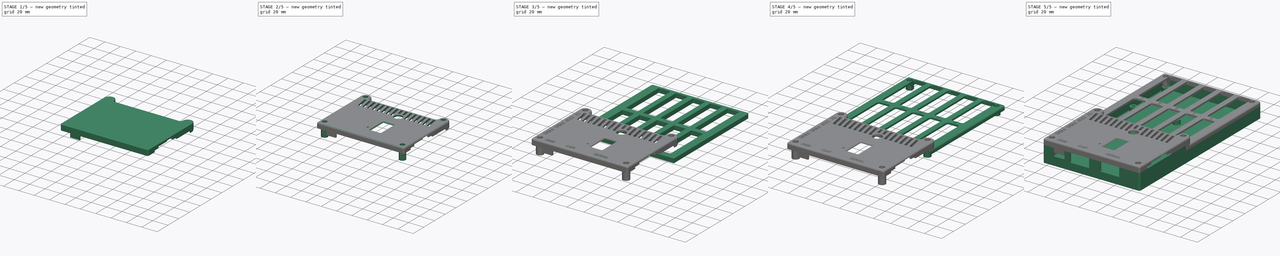
[diagram: build sequence overview — one tinted view per stage of 5, left to right]
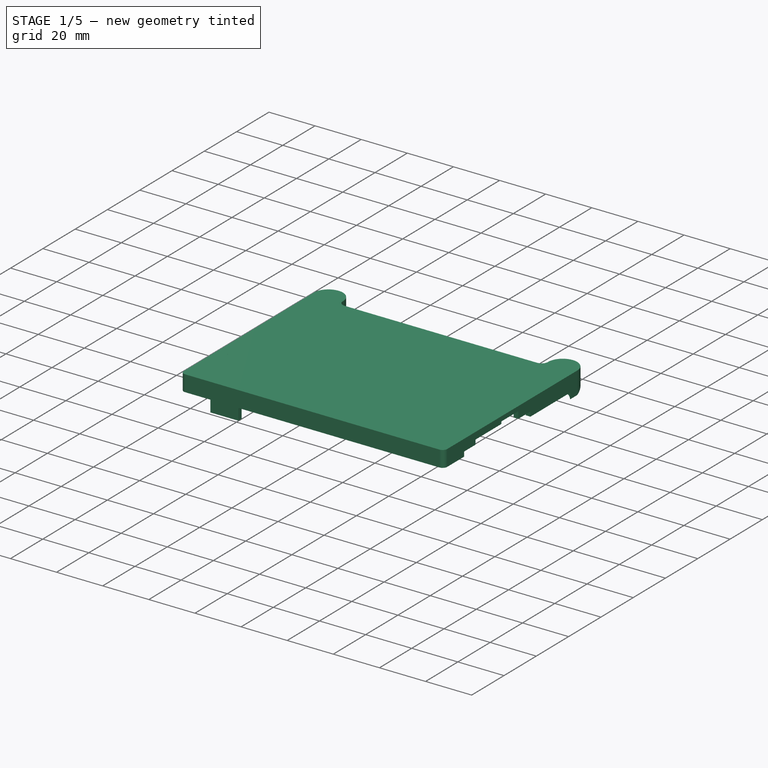
[diagram: stage 1 of 5 — iso view after this stage's code; geometry added in this stage tinted green]
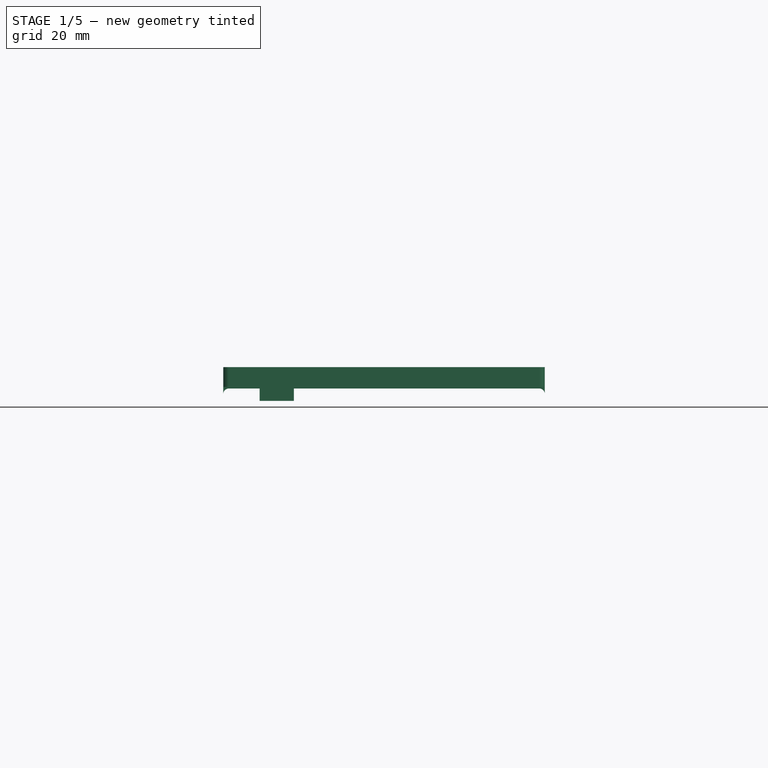
[diagram: stage 1 of 5 — front view after this stage's code; geometry added in this stage tinted green]
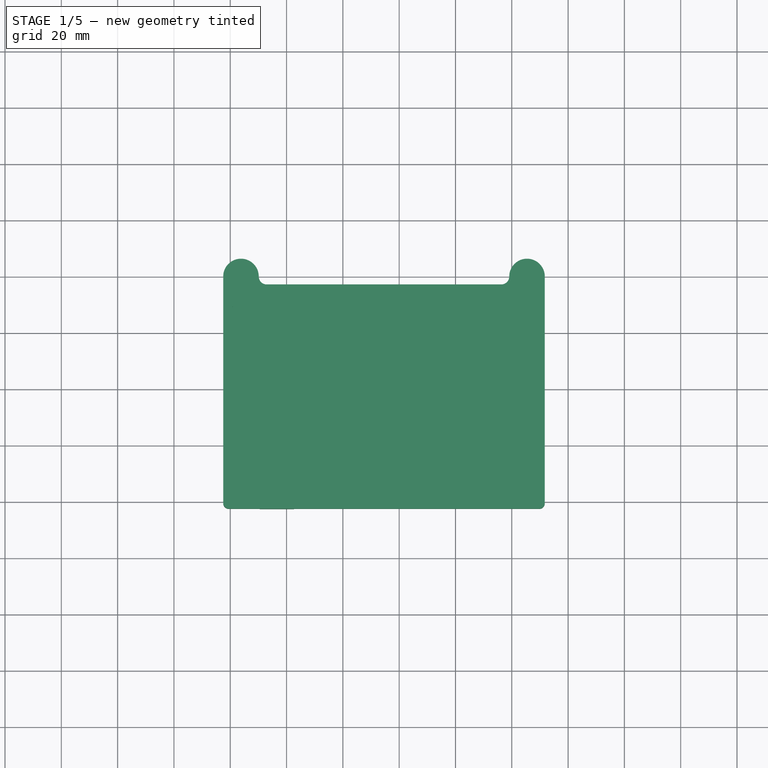
[diagram: stage 1 of 5 — top view after this stage's code; geometry added in this stage tinted green]
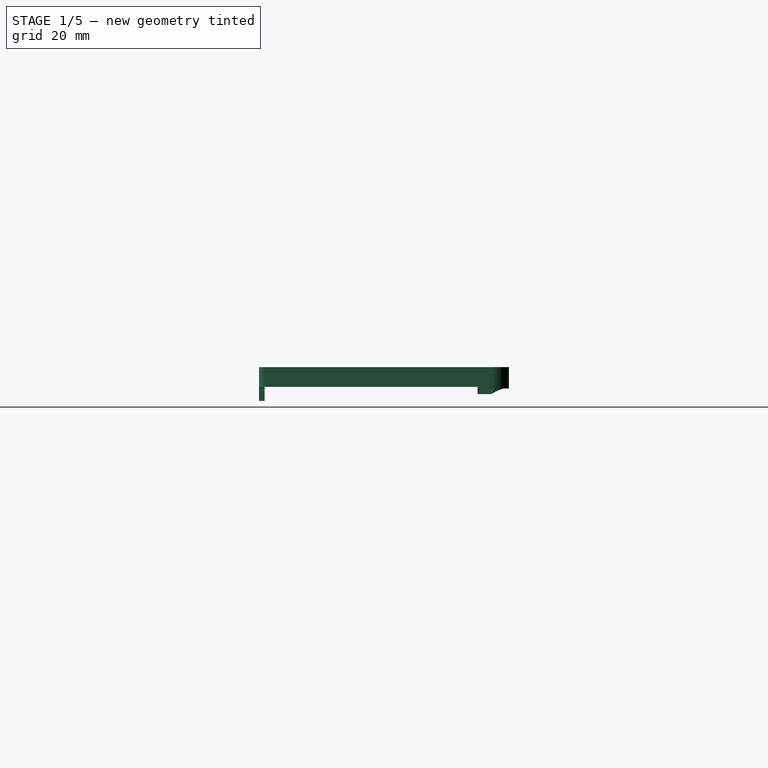
[diagram: stage 1 of 5 — right view after this stage's code; geometry added in this stage tinted green]
FCSTD DOCUMENT  (FreeCAD 1.0R39109 (Git))
Label: control_box
License: All rights reserved
LicenseURL: https://en.wikipedia.org/wiki/All_rights_reserved
objects: Sketcher::SketchObject×38, PartDesign::Pocket×19, PartDesign::Pad×18, PartDesign::Fillet×9, Part::Part2DObjectPython×4, Part::Extrusion×4, Part::Cut×4, PartDesign::Body×3
note: 229 computed .brp shape members not serialized (recipe doc carries the construction recipe); baked Part::Feature solids carry a one-line shape summary decoded from their .brp

FEATURE [Sketcher::SketchObject] Sketch019  label="Sketch_pcb002"
  ArcFitTolerance = 1e-06
  AttachmentSupport = -> [XY_Plane002]
  FullyConstrained = true
  MakeInternals = false
  MapMode = 5
  sketch-geometry (13):
    g0: LineSegment [constr] StartX=0 StartY=0 StartZ=0 EndX=109.22 EndY=0 EndZ=0
    g1: LineSegment [constr] StartX=109.22 StartY=0 StartZ=0 EndX=109.22 EndY=199.39 EndZ=0
    g2: LineSegment [constr] StartX=109.22 StartY=199.39 StartZ=0 EndX=0 EndY=199.39 EndZ=0
    g3: LineSegment [constr] StartX=0 StartY=199.39 StartZ=0 EndX=0 EndY=0 EndZ=0
    g4: Circle [constr] CenterX=3.81 CenterY=195.58 CenterZ=0 NormalX=0 NormalY=0 NormalZ=1 AngleXU=0 Radius=1.8
    g5: Circle [constr] CenterX=3.81 CenterY=140.97 CenterZ=0 NormalX=0 NormalY=0 NormalZ=1 AngleXU=0 Radius=1.8
    g6: Circle [constr] CenterX=3.81 CenterY=80.01 CenterZ=0 NormalX=0 NormalY=0 NormalZ=1 AngleXU=0 Radius=1.8
    g7: Circle [constr] CenterX=3.81 CenterY=3.81 CenterZ=0 NormalX=0 NormalY=0 NormalZ=1 AngleXU=0 Radius=1.8
    g8: Circle [constr] CenterX=105.41 CenterY=3.81 CenterZ=0 NormalX=0 NormalY=0 NormalZ=1 AngleXU=0 Radius=1.8
    g9: Circle [constr] CenterX=105.41 CenterY=80.01 CenterZ=0 NormalX=0 NormalY=0 NormalZ=1 AngleXU=0 Radius=1.8
    g10: Circle [constr] CenterX=105.41 CenterY=140.97 CenterZ=0 NormalX=0 NormalY=0 NormalZ=1 AngleXU=0 Radius=1.8
    g11: Circle [constr] CenterX=105.41 CenterY=195.58 CenterZ=0 NormalX=0 NormalY=0 NormalZ=1 AngleXU=0 Radius=1.8
    g12: Circle [constr] CenterX=54.61 CenterY=140.97 CenterZ=0 NormalX=0 NormalY=0 NormalZ=1 AngleXU=0 Radius=1.8
  constraints (38):
    c: Coincident(g0,g1)
    c: Coincident(g1,g2)
    c: Coincident(g2,g3)
    c: Coincident(g3,g0)
    c: Horizontal(g0)
    c: Horizontal(g2)
    c: Vertical(g1)
    c: Vertical(g3)
    c: Distance(g1,g3) = 109.22
    c: Distance(g0,g2) = 199.39
    c: Coincident(g0,g-1)
    c: Equal(g4,g5)
    c: Equal(g5,g6)
    c: Equal(g6,g7)
    c: Equal(g7,g8)
    c: Equal(g8,g9)
    c: Equal(g9,g10)
    c: Equal(g10,g11)
    c: Equal(g11,g12)
    c: Diameter(g4) = 3.6
    c: DistanceX(g7) = 3.81
    c: DistanceY(g7) = 3.81
    c: DistanceY(g7,g8) = 0
    c: DistanceX(g7,g6) = 0
    c: DistanceX(g6,g5) = 0
    c: DistanceX(g5,g4) = 0
    c: DistanceY(g6) = 80.01
    c: DistanceY(g5) = 140.97
    c: DistanceY(g4) = 195.58
    c: DistanceX(g8) = 105.41
    c: DistanceX(g9,g8) = 0
    c: DistanceX(g10,g9) = 0
    c: DistanceX(g11,g10) = 0
    c: DistanceY(g11,g4) = 0
    c: DistanceY(g5,g12) = 0
    c: DistanceY(g12,g10) = 0
    c: DistanceY(g6,g9) = 0
    c: DistanceX(g12) = 54.61
FEATURE [Sketcher::SketchObject] Sketch020
  ArcFitTolerance = 1e-06
  AttachmentOffset = pos=(0,0,24) rot=(0,0,1;0rad)
  AttachmentSupport = -> [XY_Plane002]
  FullyConstrained = true
  MakeInternals = false
  MapMode = 5
  Placement = pos=(0,0,24) rot=(0,0,1;0rad)
  expr: Constraints[19] = Sketch019.Constraints[19]
  expr: Constraints[20] = Sketch019.Constraints[20]
  expr: Constraints[21] = Sketch019.Constraints[21]
  expr: Constraints[22] = Sketch019.Constraints[22]
  expr: Constraints[23] = Sketch019.Constraints[23]
  expr: Constraints[24] = Sketch019.Constraints[24]
  expr: Constraints[25] = Sketch019.Constraints[25]
  expr: Constraints[26] = Sketch019.Constraints[26]
  expr: Constraints[27] = Sketch019.Constraints[27]
  expr: Constraints[28] = Sketch019.Constraints[28]
  expr: Constraints[29] = Sketch019.Constraints[29]
  expr: Constraints[30] = Sketch019.Constraints[30]
  expr: Constraints[31] = Sketch019.Constraints[31]
  expr: Constraints[32] = Sketch019.Constraints[32]
  expr: Constraints[33] = Sketch019.Constraints[33]
  expr: Constraints[34] = Sketch019.Constraints[34]
  expr: Constraints[35] = Sketch019.Constraints[35]
  expr: Constraints[36] = Sketch019.Constraints[36]
  expr: Constraints[37] = Sketch019.Constraints[37]
  expr: Constraints[8] = Sketch019.Constraints[8]
  expr: Constraints[9] = Sketch019.Constraints[9]
  sketch-geometry (17):
    g0: LineSegment [constr] StartX=0 StartY=0 StartZ=0 EndX=109.22 EndY=0 EndZ=0
    g1: LineSegment [constr] StartX=109.22 StartY=0 StartZ=0 EndX=109.22 EndY=199.39 EndZ=0
    g2: LineSegment [constr] StartX=109.22 StartY=199.39 StartZ=0 EndX=0 EndY=199.39 EndZ=0
    g3: LineSegment [constr] StartX=0 StartY=199.39 StartZ=0 EndX=0 EndY=0 EndZ=0
    g4: Circle [constr] CenterX=3.81 CenterY=195.58 CenterZ=0 NormalX=0 NormalY=0 NormalZ=1 AngleXU=0 Radius=1.8
    g5: Circle [constr] CenterX=3.81 CenterY=140.97 CenterZ=0 NormalX=0 NormalY=0 NormalZ=1 AngleXU=0 Radius=1.8
    g6: Circle [constr] CenterX=3.81 CenterY=80.01 CenterZ=0 NormalX=0 NormalY=0 NormalZ=1 AngleXU=0 Radius=1.8
    g7: Circle [constr] CenterX=3.81 CenterY=3.81 CenterZ=0 NormalX=0 NormalY=0 NormalZ=1 AngleXU=0 Radius=1.8
    g8: Circle [constr] CenterX=105.41 CenterY=3.81 CenterZ=0 NormalX=0 NormalY=0 NormalZ=1 AngleXU=0 Radius=1.8
    g9: Circle [constr] CenterX=105.41 CenterY=80.01 CenterZ=0 NormalX=0 NormalY=0 NormalZ=1 AngleXU=0 Radius=1.8
    g10: Circle [constr] CenterX=105.41 CenterY=140.97 CenterZ=0 NormalX=0 NormalY=0 NormalZ=1 AngleXU=0 Radius=1.8
    g11: Circle [constr] CenterX=105.41 CenterY=195.58 CenterZ=0 NormalX=0 NormalY=0 NormalZ=1 AngleXU=0 Radius=1.8
    g12: Circle [constr] CenterX=54.61 CenterY=140.97 CenterZ=0 NormalX=0 NormalY=0 NormalZ=1 AngleXU=0 Radius=1.8
    g13: LineSegment StartX=-2.5 StartY=-2.5 StartZ=0 EndX=111.72 EndY=-2.5 EndZ=0
    g14: LineSegment StartX=111.72 StartY=-2.5 StartZ=0 EndX=111.72 EndY=77.18 EndZ=0
    g15: LineSegment StartX=111.72 StartY=77.18 StartZ=0 EndX=-2.5 EndY=77.18 EndZ=0
    g16: LineSegment StartX=-2.5 StartY=77.18 StartZ=0 EndX=-2.5 EndY=-2.5 EndZ=0
  constraints (50):
    c: Coincident(g0,g1)
    c: Coincident(g1,g2)
    c: Coincident(g2,g3)
    c: Coincident(g3,g0)
    c: Horizontal(g0)
    c: Horizontal(g2)
    c: Vertical(g1)
    c: Vertical(g3)
    c: Distance(g1,g3) = 109.22
    c: Distance(g0,g2) = 199.39
    c: Coincident(g0,g-1)
    c: Equal(g4,g5)
    c: Equal(g5,g6)
    c: Equal(g6,g7)
    c: Equal(g7,g8)
    c: Equal(g8,g9)
    c: Equal(g9,g10)
    c: Equal(g10,g11)
    c: Equal(g11,g12)
    c: Diameter(g4) = 3.6
    c: DistanceX(g7) = 3.81
    c: DistanceY(g7) = 3.81
    c: DistanceY(g7,g8) = 0
    c: DistanceX(g7,g6) = 0
    c: DistanceX(g6,g5) = 0
    c: DistanceX(g5,g4) = 0
    c: DistanceY(g6) = 80.01
    c: DistanceY(g5) = 140.97
    c: DistanceY(g4) = 195.58
    c: DistanceX(g8) = 105.41
    c: DistanceX(g9,g8) = 0
    c: DistanceX(g10,g9) = 0
    c: DistanceX(g11,g10) = 0
    c: DistanceY(g11,g4) = 0
    c: DistanceY(g5,g12) = 0
    c: DistanceY(g12,g10) = 0
    c: DistanceY(g6,g9) = 0
    c: DistanceX(g12) = 54.61
    c: Coincident(g13,g14)
    c: Coincident(g14,g15)
    c: Coincident(g15,g16)
    c: Coincident(g16,g13)
    c: Horizontal(g13)
    c: Horizontal(g15)
    c: Vertical(g14)
    c: Vertical(g16)
    c: DistanceX(g13) = -2.5
    c: DistanceY(g13) = -2.5
    c: DistanceX(g0,g13) = 2.5
    c: DistanceY(g15,g6) = 2.83
FEATURE [PartDesign::Pad] Pad008
  Direction = (0,0,1)
  Length = 2
  Length2 = 10
  Profile = -> Sketch020
  ReferenceAxis = -> Sketch020 [N_Axis]
  Refine = true
  Suppressed = false
  Type = 0
FEATURE [Sketcher::SketchObject] Sketch021
  ArcFitTolerance = 1e-06
  AttachmentSupport = -> [Pad008]
  FullyConstrained = true
  MakeInternals = false
  MapMode = 5
  Placement = pos=(111.72,0,0) rot=(0.57735,0.57735,0.57735;2.0944rad)
  sketch-geometry (16):
    g0: LineSegment StartX=43.5 StartY=24 StartZ=0 EndX=43.5 EndY=21 EndZ=0
    g1: LineSegment StartX=43.5 StartY=21 StartZ=0 EndX=51 EndY=21 EndZ=0
    g2: LineSegment StartX=51 StartY=21 StartZ=0 EndX=51 EndY=19 EndZ=0
    g3: LineSegment StartX=51 StartY=19 StartZ=0 EndX=75.58 EndY=19 EndZ=0
    g4: LineSegment StartX=75.58 StartY=19 StartZ=0 EndX=75.58 EndY=16 EndZ=0
    g5: LineSegment StartX=75.58 StartY=16 StartZ=0 EndX=77.18 EndY=16 EndZ=0
    g6: LineSegment StartX=77.18 StartY=16 StartZ=0 EndX=77.18 EndY=24 EndZ=0
    g7: LineSegment StartX=43.5 StartY=24 StartZ=0 EndX=77.18 EndY=24 EndZ=0
    g8: LineSegment StartX=33 StartY=24 StartZ=0 EndX=33 EndY=23 EndZ=0
    g9: LineSegment StartX=33 StartY=23 StartZ=0 EndX=17 EndY=23 EndZ=0
    g10: LineSegment StartX=17 StartY=23 StartZ=0 EndX=17 EndY=21 EndZ=0
    g11: LineSegment StartX=-2.5 StartY=19 StartZ=0 EndX=-2.5 EndY=24 EndZ=0
    g12: LineSegment StartX=-2.5 StartY=24 StartZ=0 EndX=33 EndY=24 EndZ=0
    g13: LineSegment StartX=-2.5 StartY=19 StartZ=0 EndX=10 EndY=19 EndZ=0
    g14: LineSegment StartX=10 StartY=19 StartZ=0 EndX=10 EndY=21 EndZ=0
    g15: LineSegment StartX=10 StartY=21 StartZ=0 EndX=17 EndY=21 EndZ=0
  constraints (48):
    c: Vertical(g0)
    c: Coincident(g1,g0)
    c: Horizontal(g1)
    c: Coincident(g2,g1)
    c: Vertical(g2)
    c: Coincident(g3,g2)
    c: Horizontal(g3)
    c: Coincident(g4,g3)
    c: Vertical(g4)
    c: Coincident(g5,g4)
    c: Coincident(g6,g5)
    c: Vertical(g6)
    c: Coincident(g7,g6)
    c: Horizontal(g7)
    c: Vertical(g8)
    c: Coincident(g9,g8)
    c: Horizontal(g9)
    c: Coincident(g10,g9)
    c: Vertical(g10)
    c: Vertical(g11)
    c: Coincident(g12,g11)
    c: Coincident(g12,g8)
    c: Horizontal(g12)
    c: Coincident(g13,g11)
    c: Horizontal(g13)
    c: Coincident(g14,g13)
    c: Vertical(g14)
    c: Coincident(g15,g14)
    c: Coincident(g15,g10)
    c: Horizontal(g15)
    c: DistanceX(g11) = -2.5
    c: DistanceY(g11) = 24
    c: DistanceY(g13,g2) = 0
    c: DistanceY(g10,g0) = 0
    c: Coincident(g7,g0)
    c: DistanceX(g6) = 77.18
    c: DistanceY(g8,g0) = 0
    c: DistanceY(g0,g0) = 3
    c: DistanceY(g2,g2) = 2
    c: DistanceY(g10,g10) = 2
    c: DistanceX(g13) = 10
    c: DistanceX(g15,g15) = 7
    c: DistanceX(g9,g9) = 16
    c: DistanceY(g6,g6) = 8
    c: Horizontal(g5)
    c: DistanceX(g2) = 51
    c: DistanceX(g1,g1) = 7.5
    c: DistanceX(g3,g3) = 24.58
FEATURE [PartDesign::Pad] Pad009
  BaseFeature = -> Pad008
  Direction = (1,0,0)
  Length = 2
  Length2 = 10
  Profile = -> Sketch021
  ReferenceAxis = -> Sketch021 [N_Axis]
  Refine = true
  Reversed = true
  Suppressed = false
  Type = 0
FEATURE [Sketcher::SketchObject] Sketch022
  ArcFitTolerance = 1e-06
  AttachmentSupport = -> [Pad009]
  FullyConstrained = true
  MakeInternals = false
  MapMode = 5
  Placement = pos=(0,-2.5,0) rot=(1,0,0;1.5708rad)
  sketch-geometry (13):
    g0: LineSegment StartX=109.72 StartY=24 StartZ=0 EndX=109.72 EndY=19 EndZ=0
    g1: LineSegment [constr] StartX=22.99 StartY=19 StartZ=0 EndX=22.99 EndY=14 EndZ=0
    g2: LineSegment [constr] StartX=22.99 StartY=14 StartZ=0 EndX=10.03 EndY=14 EndZ=0
    g3: LineSegment [constr] StartX=10.03 StartY=14 StartZ=0 EndX=10.03 EndY=19 EndZ=0
    g4: LineSegment [constr] StartX=10.03 StartY=19 StartZ=0 EndX=-2.5 EndY=19 EndZ=0
    g5: LineSegment StartX=-2.5 StartY=19 StartZ=0 EndX=-2.5 EndY=24 EndZ=0
    g6: LineSegment StartX=-2.5 StartY=24 StartZ=0 EndX=109.72 EndY=24 EndZ=0
    g7: LineSegment [constr] StartX=22.99 StartY=19 StartZ=0 EndX=109.72 EndY=19 EndZ=0
    g8: LineSegment StartX=-2.5 StartY=19 StartZ=0 EndX=10.43 EndY=19 EndZ=0
    g9: LineSegment StartX=10.43 StartY=19 StartZ=0 EndX=10.43 EndY=14 EndZ=0
    g10: LineSegment StartX=10.43 StartY=14 StartZ=0 EndX=22.59 EndY=14 EndZ=0
    g11: LineSegment StartX=22.59 StartY=14 StartZ=0 EndX=22.59 EndY=19 EndZ=0
    g12: LineSegment StartX=22.59 StartY=19 StartZ=0 EndX=109.72 EndY=19 EndZ=0
  constraints (38):
    c: Vertical(g0)
    c: Vertical(g1)
    c: Coincident(g1,g2)
    c: Horizontal(g2)
    c: Coincident(g2,g3)
    c: Vertical(g3)
    c: Coincident(g3,g4)
    c: Horizontal(g4)
    c: Coincident(g4,g5)
    c: Vertical(g5)
    c: Coincident(g5,g6)
    c: Coincident(g6,g0)
    c: Horizontal(g6)
    c: DistanceX(g5) = -2.5
    c: DistanceX(g6,g6) = 112.22
    c: DistanceY(g5) = 24
    c: DistanceY(g5,g5) = 5
    c: DistanceX(g4,g4) = 12.53
    c: DistanceX(g2,g2) = 12.96
    c: Coincident(g7,g1)
    c: Coincident(g7,g0)
    c: Horizontal(g7)
    c: Equal(g0,g5)
    c: DistanceY(g3,g3) = 5
    c: Coincident(g4,g8)
    c: Horizontal(g8)
    c: Coincident(g8,g9)
    c: PointOnObject(g9,g2)
    c: Vertical(g9)
    c: Coincident(g9,g10)
    c: Horizontal(g10)
    c: Coincident(g10,g11)
    c: Vertical(g11)
    c: Coincident(g11,g12)
    c: Coincident(g12,g0)
    c: Horizontal(g12)
    c: DistanceX(g3,g8) = 0.4
    c: DistanceX(g11,g1) = 0.4
FEATURE [PartDesign::Pad] Pad010
  BaseFeature = -> Pad009
  Direction = (0,-1,2e-16)
  Length = 2
  Length2 = 10
  Profile = -> Sketch022
  ReferenceAxis = -> Sketch022 [N_Axis]
  Refine = true
  Reversed = true
  Suppressed = false
  Type = 0
FEATURE [Sketcher::SketchObject] Sketch023
  ArcFitTolerance = 1e-06
  AttachmentSupport = -> [Pad010]
  FullyConstrained = true
  MakeInternals = false
  MapMode = 5
  Placement = pos=(-2.5,0,0) rot=(0.57735,-0.57735,-0.57735;2.0944rad)
  sketch-geometry (6):
    g0: LineSegment StartX=-77.18 StartY=24 StartZ=0 EndX=-77.18 EndY=16 EndZ=0
    g1: LineSegment StartX=0.5 StartY=19 StartZ=0 EndX=0.5 EndY=24 EndZ=0
    g2: LineSegment StartX=0.5 StartY=24 StartZ=0 EndX=-77.18 EndY=24 EndZ=0
    g3: LineSegment StartX=0.5 StartY=19 StartZ=0 EndX=-75.18 EndY=19 EndZ=0
    g4: LineSegment StartX=-75.18 StartY=19 StartZ=0 EndX=-75.18 EndY=16 EndZ=0
    g5: LineSegment StartX=-75.18 StartY=16 StartZ=0 EndX=-77.18 EndY=16 EndZ=0
  constraints (18):
    c: Coincident(g1,g2)
    c: Coincident(g2,g0)
    c: Vertical(g0)
    c: Vertical(g1)
    c: Horizontal(g2)
    c: DistanceX(g1) = 0.5
    c: DistanceY(g1) = 24
    c: DistanceY(g1,g1) = 5
    c: DistanceX(g2,g2) = 77.68
    c: Coincident(g3,g1)
    c: Horizontal(g3)
    c: Coincident(g4,g3)
    c: Vertical(g4)
    c: Coincident(g5,g4)
    c: Coincident(g5,g0)
    c: Horizontal(g5)
    c: DistanceX(g5,g5) = 2
    c: DistanceY(g0,g0) = 8
FEATURE [PartDesign::Pad] Pad011
  BaseFeature = -> Pad010
  Direction = (-1,0,0)
  Length = 2
  Length2 = 10
  Profile = -> Sketch023
  ReferenceAxis = -> Sketch023 [N_Axis]
  Refine = true
  Reversed = true
  Suppressed = false
  Type = 0
FEATURE [PartDesign::Fillet] Fillet004
  Base = -> Pad011 [Edge1,Edge36]
  BaseFeature = -> Pad011
  Radius = 2
  Refine = true
  SupportTransform = false
  Suppressed = false
  UseAllEdges = false
FEATURE [Sketcher::SketchObject] Sketch024
  ArcFitTolerance = 1e-06
  AttachmentSupport = -> [Fillet004]
  FullyConstrained = true
  MakeInternals = false
  MapMode = 5
  Placement = pos=(0,77.18,0) rot=(0,0.707107,0.707107;3.14159rad)
  sketch-geometry (6):
    g0: ArcOfCircle CenterX=-109.72 CenterY=16.4 CenterZ=0 NormalX=0 NormalY=0 NormalZ=1 AngleXU=0 Radius=2 StartAngle=1.5708 EndAngle=3.14159
    g1: LineSegment StartX=-109.72 StartY=16.4 StartZ=0 EndX=-111.72 EndY=16.4 EndZ=0
    g2: LineSegment StartX=-109.72 StartY=16.4 StartZ=0 EndX=-109.72 EndY=18.4 EndZ=0
    g3: ArcOfCircle CenterX=0.5 CenterY=16.4 CenterZ=0 NormalX=0 NormalY=0 NormalZ=1 AngleXU=0 Radius=2 StartAngle=0 EndAngle=1.5708
    g4: LineSegment StartX=0.5 StartY=16.4 StartZ=0 EndX=0.5 EndY=18.4 EndZ=0
    g5: LineSegment StartX=0.5 StartY=16.4 StartZ=0 EndX=2.5 EndY=16.4 EndZ=0
  constraints (18):
    c: Coincident(g1,g0)
    c: Coincident(g1,g0)
    c: Horizontal(g1)
    c: Coincident(g2,g0)
    c: Coincident(g2,g0)
    c: Diameter(g0) = 4
    c: Vertical(g2)
    c: DistanceX(g0) = -109.72
    c: DistanceY(g0) = 16.4
    c: Coincident(g4,g3)
    c: Coincident(g4,g3)
    c: Vertical(g4)
    c: Coincident(g5,g3)
    c: Coincident(g5,g3)
    c: Horizontal(g5)
    c: Equal(g3,g0)
    c: DistanceY(g3,g0) = 0
    c: DistanceX(g3) = 0.5
FEATURE [PartDesign::Pocket] Pocket009
  BaseFeature = -> Fillet004
  Direction = (0,-1,2e-16)
  Length = 2
  Length2 = 5
  Profile = -> Sketch024
  ReferenceAxis = -> Sketch024 [N_Axis]
  Refine = true
  Suppressed = false
  Type = 0
FEATURE [Sketcher::SketchObject] Sketch025
  ArcFitTolerance = 1e-06
  AttachmentSupport = -> [Pocket009]
  FullyConstrained = true
  MakeInternals = false
  MapMode = 5
  Placement = pos=(0,77.18,0) rot=(0,0.707107,0.707107;3.14159rad)
  sketch-geometry (4):
    g0: LineSegment StartX=-109.72 StartY=24 StartZ=0 EndX=-109.72 EndY=18.4 EndZ=0
    g1: LineSegment StartX=-109.72 StartY=18.4 StartZ=0 EndX=0.5 EndY=18.4 EndZ=0
    g2: LineSegment StartX=0.5 StartY=18.4 StartZ=0 EndX=0.5 EndY=24 EndZ=0
    g3: LineSegment StartX=0.5 StartY=24 StartZ=0 EndX=-109.72 EndY=24 EndZ=0
  constraints (12):
    c: Coincident(g0,g1)
    c: Coincident(g1,g2)
    c: Coincident(g2,g3)
    c: Coincident(g3,g0)
    c: Vertical(g0)
    c: Vertical(g2)
    c: Horizontal(g1)
    c: Horizontal(g3)
    c: DistanceX(g2) = 0.5
    c: DistanceY(g2) = 24
    c: DistanceY(g2,g2) = 5.6
    c: DistanceX(g3,g3) = 110.22
FEATURE [PartDesign::Pad] Pad012
  BaseFeature = -> Pocket009
  Direction = (0,1,-2e-16)
  Length = 2
  Length2 = 10
  Profile = -> Sketch025
  ReferenceAxis = -> Sketch025 [N_Axis]
  Refine = true
  Reversed = true
  Suppressed = false
  Type = 0
FEATURE [Sketcher::SketchObject] Sketch026
  ArcFitTolerance = 1e-06
  AttachmentSupport = -> [Pad012]
  FullyConstrained = true
  MakeInternals = false
  MapMode = 5
  Placement = pos=(0,0,26) rot=(0,0,1;0rad)
  expr: Constraints[19] = Sketch019.Constraints[19]
  expr: Constraints[20] = Sketch019.Constraints[20]
  expr: Constraints[21] = Sketch019.Constraints[21]
  expr: Constraints[22] = Sketch019.Constraints[22]
  expr: Constraints[23] = Sketch019.Constraints[23]
  expr: Constraints[24] = Sketch019.Constraints[24]
  expr: Constraints[25] = Sketch019.Constraints[25]
  expr: Constraints[26] = Sketch019.Constraints[26]
  expr: Constraints[27] = Sketch019.Constraints[27]
  expr: Constraints[28] = Sketch019.Constraints[28]
  expr: Constraints[29] = Sketch019.Constraints[29]
  expr: Constraints[30] = Sketch019.Constraints[30]
  expr: Constraints[31] = Sketch019.Constraints[31]
  expr: Constraints[32] = Sketch019.Constraints[32]
  expr: Constraints[33] = Sketch019.Constraints[33]
  expr: Constraints[34] = Sketch019.Constraints[34]
  expr: Constraints[35] = Sketch019.Constraints[35]
  expr: Constraints[36] = Sketch019.Constraints[36]
  expr: Constraints[37] = Sketch019.Constraints[37]
  expr: Constraints[8] = Sketch019.Constraints[8]
  expr: Constraints[9] = Sketch019.Constraints[9]
  sketch-geometry (21):
    g0: LineSegment [constr] StartX=0 StartY=0 StartZ=0 EndX=109.22 EndY=0 EndZ=0
    g1: LineSegment [constr] StartX=109.22 StartY=0 StartZ=0 EndX=109.22 EndY=199.39 EndZ=0
    g2: LineSegment [constr] StartX=109.22 StartY=199.39 StartZ=0 EndX=0 EndY=199.39 EndZ=0
    g3: LineSegment [constr] StartX=0 StartY=199.39 StartZ=0 EndX=0 EndY=0 EndZ=0
    g4: Circle [constr] CenterX=3.81 CenterY=195.58 CenterZ=0 NormalX=0 NormalY=0 NormalZ=1 AngleXU=0 Radius=1.8
    g5: Circle [constr] CenterX=3.81 CenterY=140.97 CenterZ=0 NormalX=0 NormalY=0 NormalZ=1 AngleXU=0 Radius=1.8
    g6: Circle [constr] CenterX=3.81 CenterY=80.01 CenterZ=0 NormalX=0 NormalY=0 NormalZ=1 AngleXU=0 Radius=1.8
    g7: Circle [constr] CenterX=3.81 CenterY=3.81 CenterZ=0 NormalX=0 NormalY=0 NormalZ=1 AngleXU=0 Radius=1.8
    g8: Circle [constr] CenterX=105.41 CenterY=3.81 CenterZ=0 NormalX=0 NormalY=0 NormalZ=1 AngleXU=0 Radius=1.8
    g9: Circle [constr] CenterX=105.41 CenterY=80.01 CenterZ=0 NormalX=0 NormalY=0 NormalZ=1 AngleXU=0 Radius=1.8
    g10: Circle [constr] CenterX=105.41 CenterY=140.97 CenterZ=0 NormalX=0 NormalY=0 NormalZ=1 AngleXU=0 Radius=1.8
    g11: Circle [constr] CenterX=105.41 CenterY=195.58 CenterZ=0 NormalX=0 NormalY=0 NormalZ=1 AngleXU=0 Radius=1.8
    g12: Circle [constr] CenterX=54.61 CenterY=140.97 CenterZ=0 NormalX=0 NormalY=0 NormalZ=1 AngleXU=0 Radius=1.8
    g13: ArcOfCircle CenterX=3.81 CenterY=80.01 CenterZ=0 NormalX=0 NormalY=0 NormalZ=1 AngleXU=0 Radius=6.31 StartAngle=2e-16 EndAngle=3.14159
    g14: LineSegment StartX=-2.5 StartY=80.01 StartZ=0 EndX=-2.5 EndY=77.18 EndZ=0
    g15: LineSegment StartX=-2.5 StartY=77.18 StartZ=0 EndX=12.95 EndY=77.18 EndZ=0
    g16: ArcOfCircle CenterX=105.41 CenterY=80.01 CenterZ=0 NormalX=0 NormalY=0 NormalZ=1 AngleXU=0 Radius=6.31 StartAngle=5e-16 EndAngle=3.14159
    g17: LineSegment StartX=96.27 StartY=77.18 StartZ=0 EndX=111.72 EndY=77.18 EndZ=0
    g18: LineSegment StartX=111.72 StartY=77.18 StartZ=0 EndX=111.72 EndY=80.01 EndZ=0
    g19: ArcOfCircle CenterX=12.95 CenterY=80.01 CenterZ=0 NormalX=0 NormalY=0 NormalZ=1 AngleXU=0 Radius=2.83 StartAngle=3.14159 EndAngle=4.71239
    g20: ArcOfCircle CenterX=96.27 CenterY=80.01 CenterZ=0 NormalX=0 NormalY=0 NormalZ=1 AngleXU=0 Radius=2.83 StartAngle=4.71239 EndAngle=6.28319
  constraints (58):
    c: Coincident(g0,g1)
    c: Coincident(g1,g2)
    c: Coincident(g2,g3)
    c: Coincident(g3,g0)
    c: Horizontal(g0)
    c: Horizontal(g2)
    c: Vertical(g1)
    c: Vertical(g3)
    c: Distance(g1,g3) = 109.22
    c: Distance(g0,g2) = 199.39
    c: Coincident(g0,g-1)
    c: Equal(g4,g5)
    c: Equal(g5,g6)
    c: Equal(g6,g7)
    c: Equal(g7,g8)
    c: Equal(g8,g9)
    c: Equal(g9,g10)
    c: Equal(g10,g11)
    c: Equal(g11,g12)
    c: Diameter(g4) = 3.6
    c: DistanceX(g7) = 3.81
    c: DistanceY(g7) = 3.81
    c: DistanceY(g7,g8) = 0
    c: DistanceX(g7,g6) = 0
    c: DistanceX(g6,g5) = 0
    c: DistanceX(g5,g4) = 0
    c: DistanceY(g6) = 80.01
    c: DistanceY(g5) = 140.97
    c: DistanceY(g4) = 195.58
    c: DistanceX(g8) = 105.41
    c: DistanceX(g9,g8) = 0
    c: DistanceX(g10,g9) = 0
    c: DistanceX(g11,g10) = 0
    c: DistanceY(g11,g4) = 0
    c: DistanceY(g5,g12) = 0
    c: DistanceY(g12,g10) = 0
    c: DistanceY(g6,g9) = 0
    c: DistanceX(g12) = 54.61
    c: Coincident(g13,g6)
    c: Vertical(g14)
    c: Coincident(g15,g14)
    c: Horizontal(g15)
    c: Tangent(g14,g13) = -1.5708
    c: DistanceY(g14,g14) = 2.83
    c: Coincident(g16,g9)
    c: Equal(g16,g13)
    c: Horizontal(g17)
    c: Coincident(g18,g17)
    c: Vertical(g18)
    c: Tangent(g18,g16) = -1.5708
    c: DistanceY(g17,g15) = 0
    c: DistanceX(g13) = -2.5
    c: Tangent(g19,g13) = 1.5708
    c: Tangent(g19,g15) = -1.5708
    c: DistanceY(g13,g6) = 0
    c: Tangent(g20,g16) = 1.5708
    c: Tangent(g20,g17) = -1.5708
    c: DistanceY(g9,g16) = 0
FEATURE [PartDesign::Pad] Pad013
  BaseFeature = -> Pad012
  Direction = (0,0,1)
  Length = 9.6
  Length2 = 10
  Profile = -> Sketch026
  ReferenceAxis = -> Sketch026 [N_Axis]
  Refine = true
  Reversed = true
  Suppressed = false
  Type = 0
FEATURE [PartDesign::Pocket] Pocket010
  BaseFeature = -> Pad013
  Direction = (0,1,0)
  Length = 5
  Length2 = 5
  Profile = -> Pad013 [Face36]
  Refine = true
  Suppressed = false
  Type = 1
FEATURE [PartDesign::Pocket] Pocket011
  BaseFeature = -> Pocket010
  Direction = (0,1,0)
  Length = 5
  Length2 = 5
  Profile = -> Pocket010 [Face36]
  Refine = true
  Suppressed = false
  Type = 1
FEATURE [Part::Part2DObjectPython] ShapeString002  # Draft 2D object (typed FeaturePython)
  FontFile = <path>
  Fuse = false
  Justification = 6
  JustificationReference = 0
  KeepLeftMargin = false
  MakeFace = true
  ObliqueAngle = 0
  Placement = pos=(0.88,71.16,26) rot=(0,0,1;-1.5708rad)
  ScaleToSize = true
  Size = 4.25
  String = 5V   STOP  PWM1  PWM2
  Tracking = 0
FEATURE [Sketcher::SketchObject] Sketch038
  ArcFitTolerance = 1e-06
  AttachmentSupport = -> [Fillet008]
  FullyConstrained = true
  MakeInternals = false
  MapMode = 5
  Placement = pos=(0,0,26) rot=(0,0,1;0rad)
  sketch-geometry (20):
    g0: LineSegment StartX=6 StartY=10.29 StartZ=0 EndX=6 EndY=74.8 EndZ=0
    g1: LineSegment StartX=6 StartY=74.8 StartZ=0 EndX=0 EndY=74.8 EndZ=0
    g2: LineSegment StartX=0 StartY=74.8 StartZ=0 EndX=0 EndY=10.29 EndZ=0
    g3: LineSegment StartX=0 StartY=10.29 StartZ=0 EndX=6 EndY=10.29 EndZ=0
    g4: LineSegment StartX=0 StartY=27.81 StartZ=0 EndX=6 EndY=27.81 EndZ=0
    g5: LineSegment StartX=0 StartY=29.34 StartZ=0 EndX=6 EndY=29.34 EndZ=0
    g6: LineSegment StartX=0 StartY=46.86 StartZ=0 EndX=6 EndY=46.86 EndZ=0
    g7: LineSegment StartX=0 StartY=48.39 StartZ=0 EndX=6 EndY=48.39 EndZ=0
    g8: LineSegment StartX=0 StartY=60.83 StartZ=0 EndX=6 EndY=60.83 EndZ=0
    g9: LineSegment StartX=0 StartY=62.36 StartZ=0 EndX=6 EndY=62.36 EndZ=0
    g10: LineSegment StartX=10.03 StartY=0 StartZ=0 EndX=87.5 EndY=0 EndZ=0
    g11: LineSegment StartX=87.5 StartY=0 StartZ=0 EndX=87.5 EndY=6 EndZ=0
    g12: LineSegment StartX=87.5 StartY=6 StartZ=0 EndX=10.03 EndY=6 EndZ=0
    g13: LineSegment StartX=10.03 StartY=6 StartZ=0 EndX=10.03 EndY=0 EndZ=0
    g14: LineSegment StartX=22.99 StartY=6 StartZ=0 EndX=22.99 EndY=0 EndZ=0
    g15: LineSegment StartX=29.34 StartY=6 StartZ=0 EndX=29.34 EndY=0 EndZ=0
    g16: LineSegment StartX=51.94 StartY=6 StartZ=0 EndX=51.94 EndY=0 EndZ=0
    g17: LineSegment StartX=64.9 StartY=6 StartZ=0 EndX=64.9 EndY=0 EndZ=0
    g18: LineSegment [constr] StartX=29.34 StartY=6 StartZ=0 EndX=51.94 EndY=0 EndZ=0
    g19: LineSegment StartX=40.64 StartY=3 StartZ=0 EndX=40.64 EndY=6 EndZ=0
  constraints (69):
    c: Coincident(g0,g1)
    c: Coincident(g1,g2)
    c: Horizontal(g1)
    c: Vertical(g0)
    c: Vertical(g2)
    c: DistanceX(g1,g1) = 6
    c: Horizontal(g3)
    c: PointOnObject(g4,g2)
    c: PointOnObject(g4,g0)
    c: Horizontal(g4)
    c: PointOnObject(g5,g2)
    c: PointOnObject(g5,g0)
    c: Horizontal(g5)
    c: PointOnObject(g7,g2)
    c: PointOnObject(g7,g0)
    c: Horizontal(g7)
    c: PointOnObject(g8,g2)
    c: PointOnObject(g8,g0)
    c: Horizontal(g8)
    c: PointOnObject(g9,g2)
    c: PointOnObject(g9,g0)
    c: Horizontal(g9)
    c: DistanceY(g3) = 10.29
    c: Coincident(g0,g3)
    c: Coincident(g2,g3)
    c: PointOnObject(g2,g-2)
    c: DistanceY(g4) = 27.81
    c: DistanceY(g5) = 29.34
    c: DistanceY(g6) = 46.86
    c: Horizontal(g6)
    c: PointOnObject(g6,g0)
    c: PointOnObject(g6,g2)
    c: DistanceY(g7) = 48.39
    c: DistanceY(g8) = 60.83
    c: DistanceY(g9) = 62.36
    c: DistanceY(g1) = 74.8
    c: Coincident(g10,g11)
    c: Coincident(g11,g12)
    c: Coincident(g12,g13)
    c: Coincident(g13,g10)
    c: Horizontal(g10)
    c: Horizontal(g12)
    c: Vertical(g11)
    c: Vertical(g13)
    c: PointOnObject(g10,g-1)
    c: PointOnObject(g14,g12)
    c: PointOnObject(g14,g10)
    c: Vertical(g14)
    c: PointOnObject(g15,g12)
    c: PointOnObject(g15,g10)
    c: Vertical(g15)
    c: PointOnObject(g16,g12)
    c: PointOnObject(g16,g10)
    c: Vertical(g16)
    c: PointOnObject(g17,g12)
    c: PointOnObject(g17,g10)
    c: Vertical(g17)
    c: Equal(g13,g1)
    c: DistanceX(g10) = 10.03
    c: DistanceX(g14) = 22.99
    c: DistanceX(g15) = 29.34
    c: DistanceX(g16) = 51.94
    c: DistanceX(g17) = 64.9
    c: DistanceX(g10) = 87.5
    c: Coincident(g18,g15)
    c: Coincident(g18,g16)
    c: Symmetric(g18,g18,g19)
    c: PointOnObject(g19,g12)
    c: Vertical(g19)
FEATURE [PartDesign::Body] Body002  label="Top_IC"
  AllowCompound = false
  Group = -> [Sketch019,Sketch020,Pad008,Sketch021,Pad009,Sketch022,Pad010,Sketch023,Pad011,Fillet004,Sketch024,Pocket009,Sketch025,Pad012,Sketch026,Pad013,Pocket010,Pocket011,Fillet005,Sketch027,Sketch028,Sketch029,Pad014,Pocket012,Pocket013,Sketch030,Pocket014,Fillet006,Fillet007,Sketch031,Pocket015,Sketch032,Pocket016,Sketch033,Pad015,Sketch034,Pocket017,Sketch035,Pad016,Sketch036,Pad017,Sketch037,Pocket018,+2 more]
  Origin = -> Origin002
  Tip = -> Fillet008
FEATURE [Part::Part2DObjectPython] ShapeString003  # Draft 2D object (typed FeaturePython)
  FontFile = <path>
  Fuse = false
  Justification = 6
  JustificationReference = 0
  KeepLeftMargin = false
  MakeFace = true
  ObliqueAngle = 0
  Placement = pos=(11.1,0.88,26) rot=(0,0,1;0rad)
  ScaleToSize = true
  Size = 4.25
  String = SWD          CAN                 SERIAL
  Tracking = 0
FEATURE [Part::Extrusion] Extrude002
  Base = -> ShapeString002
  Dir = (0,0,1)
  DirMode = 2
  FaceMakerClass = Part::FaceMakerBullseye
  FaceMakerMode = 3
  LengthFwd = 0
  LengthRev = 0.5
  Solid = false
  Symmetric = false
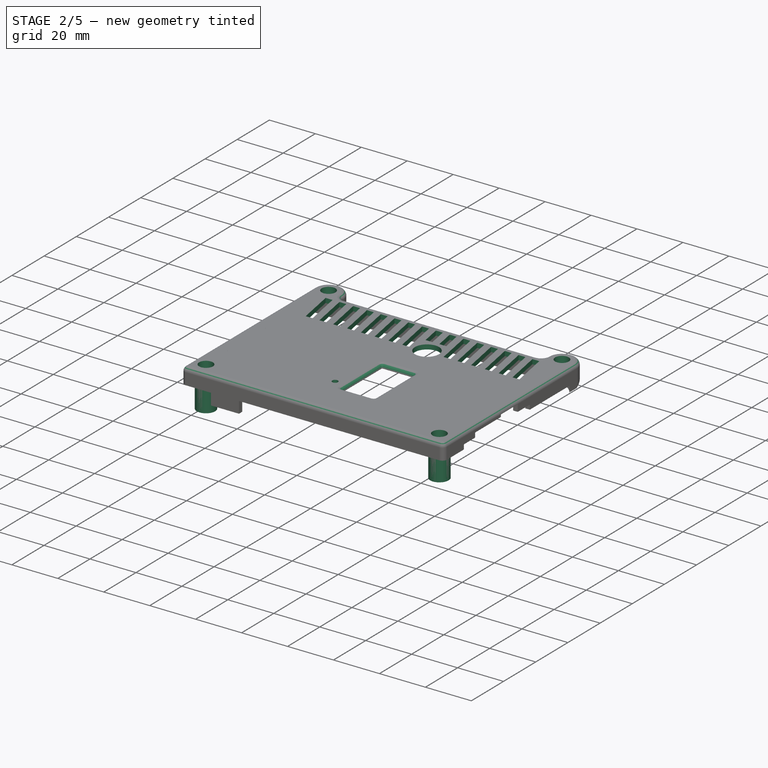
[diagram: stage 2 of 5 — iso view after this stage's code; geometry added in this stage tinted green]
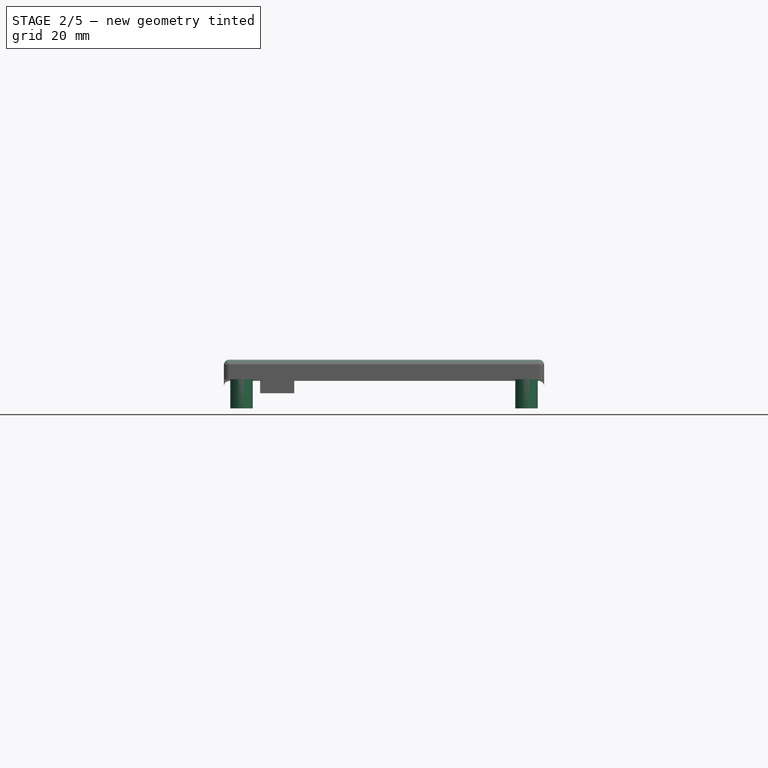
[diagram: stage 2 of 5 — front view after this stage's code; geometry added in this stage tinted green]
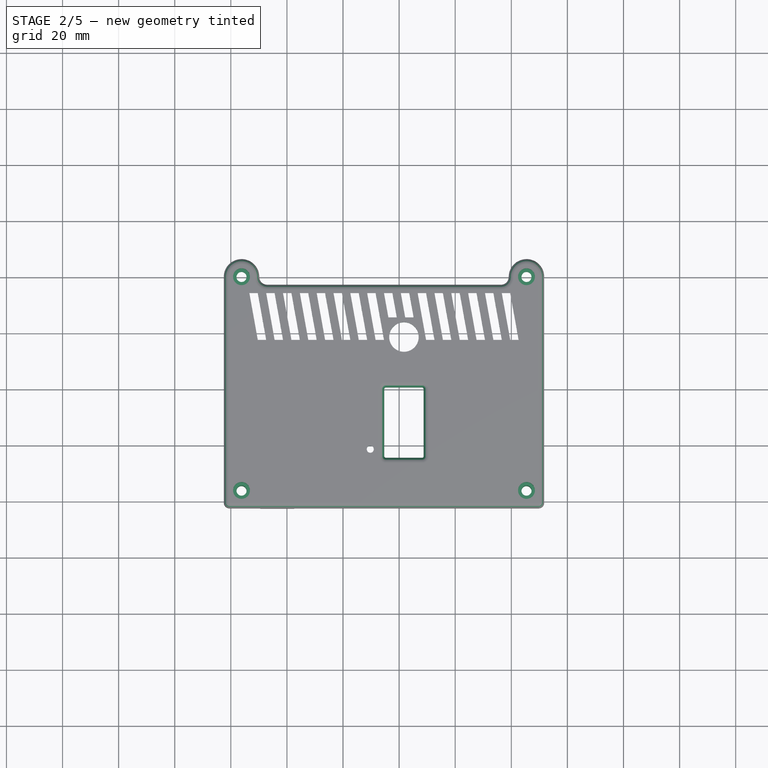
[diagram: stage 2 of 5 — top view after this stage's code; geometry added in this stage tinted green]
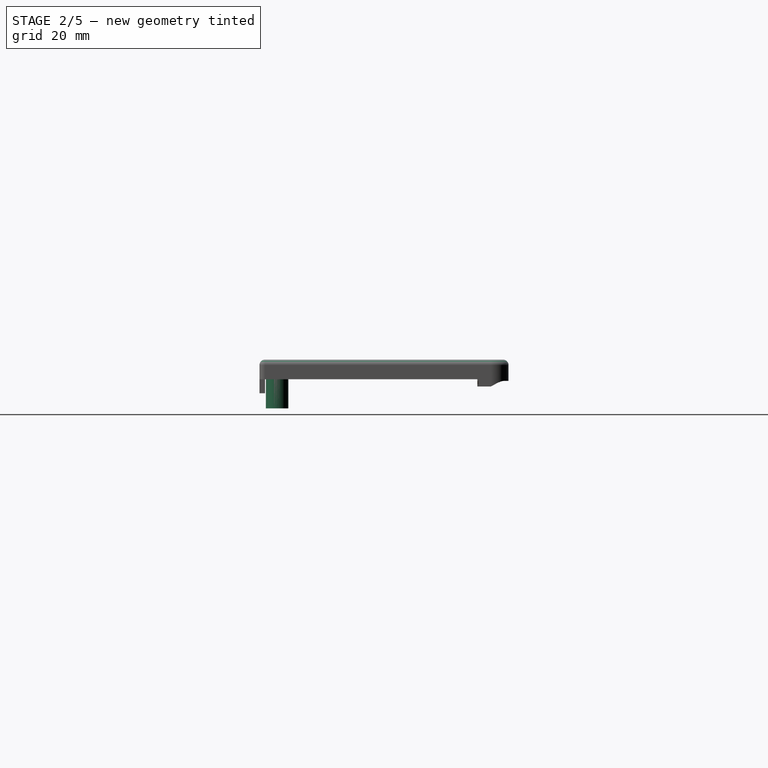
[diagram: stage 2 of 5 — right view after this stage's code; geometry added in this stage tinted green]
FEATURE [PartDesign::Fillet] Fillet005
  Base = -> Pocket011 [Edge36]
  BaseFeature = -> Pocket011
  Radius = 1.99
  Refine = true
  SupportTransform = false
  Suppressed = false
  UseAllEdges = false
FEATURE [Sketcher::SketchObject] Sketch027
  ArcFitTolerance = 1e-06
  AttachmentSupport = -> [Fillet005]
  FullyConstrained = true
  MakeInternals = false
  MapMode = 5
  Placement = pos=(0,0,26) rot=(0,0,1;0rad)
  expr: Constraints[19] = Sketch019.Constraints[19]
  expr: Constraints[20] = Sketch019.Constraints[20]
  expr: Constraints[21] = Sketch019.Constraints[21]
  expr: Constraints[22] = Sketch019.Constraints[22]
  expr: Constraints[23] = Sketch019.Constraints[23]
  expr: Constraints[24] = Sketch019.Constraints[24]
  expr: Constraints[25] = Sketch019.Constraints[25]
  expr: Constraints[26] = Sketch019.Constraints[26]
  expr: Constraints[27] = Sketch019.Constraints[27]
  expr: Constraints[28] = Sketch019.Constraints[28]
  expr: Constraints[29] = Sketch019.Constraints[29]
  expr: Constraints[30] = Sketch019.Constraints[30]
  expr: Constraints[31] = Sketch019.Constraints[31]
  expr: Constraints[32] = Sketch019.Constraints[32]
  expr: Constraints[33] = Sketch019.Constraints[33]
  expr: Constraints[34] = Sketch019.Constraints[34]
  expr: Constraints[35] = Sketch019.Constraints[35]
  expr: Constraints[36] = Sketch019.Constraints[36]
  expr: Constraints[37] = Sketch019.Constraints[37]
  expr: Constraints[8] = Sketch019.Constraints[8]
  expr: Constraints[9] = Sketch019.Constraints[9]
  sketch-geometry (13):
    g0: LineSegment [constr] StartX=0 StartY=0 StartZ=0 EndX=109.22 EndY=0 EndZ=0
    g1: LineSegment [constr] StartX=109.22 StartY=0 StartZ=0 EndX=109.22 EndY=199.39 EndZ=0
    g2: LineSegment [constr] StartX=109.22 StartY=199.39 StartZ=0 EndX=0 EndY=199.39 EndZ=0
    g3: LineSegment [constr] StartX=0 StartY=199.39 StartZ=0 EndX=0 EndY=0 EndZ=0
    g4: Circle [constr] CenterX=3.81 CenterY=195.58 CenterZ=0 NormalX=0 NormalY=0 NormalZ=1 AngleXU=0 Radius=1.8
    g5: Circle [constr] CenterX=3.81 CenterY=140.97 CenterZ=0 NormalX=0 NormalY=0 NormalZ=1 AngleXU=0 Radius=1.8
    g6: Circle CenterX=3.81 CenterY=80.01 CenterZ=0 NormalX=0 NormalY=0 NormalZ=1 AngleXU=0 Radius=1.8
    g7: Circle CenterX=3.81 CenterY=3.81 CenterZ=0 NormalX=0 NormalY=0 NormalZ=1 AngleXU=0 Radius=1.8
    g8: Circle CenterX=105.41 CenterY=3.81 CenterZ=0 NormalX=0 NormalY=0 NormalZ=1 AngleXU=0 Radius=1.8
    g9: Circle CenterX=105.41 CenterY=80.01 CenterZ=0 NormalX=0 NormalY=0 NormalZ=1 AngleXU=0 Radius=1.8
    g10: Circle [constr] CenterX=105.41 CenterY=140.97 CenterZ=0 NormalX=0 NormalY=0 NormalZ=1 AngleXU=0 Radius=1.8
    g11: Circle [constr] CenterX=105.41 CenterY=195.58 CenterZ=0 NormalX=0 NormalY=0 NormalZ=1 AngleXU=0 Radius=1.8
    g12: Circle [constr] CenterX=54.61 CenterY=140.97 CenterZ=0 NormalX=0 NormalY=0 NormalZ=1 AngleXU=0 Radius=1.8
  constraints (38):
    c: Coincident(g0,g1)
    c: Coincident(g1,g2)
    c: Coincident(g2,g3)
    c: Coincident(g3,g0)
    c: Horizontal(g0)
    c: Horizontal(g2)
    c: Vertical(g1)
    c: Vertical(g3)
    c: Distance(g1,g3) = 109.22
    c: Distance(g0,g2) = 199.39
    c: Coincident(g0,g-1)
    c: Equal(g4,g5)
    c: Equal(g5,g6)
    c: Equal(g6,g7)
    c: Equal(g7,g8)
    c: Equal(g8,g9)
    c: Equal(g9,g10)
    c: Equal(g10,g11)
    c: Equal(g11,g12)
    c: Diameter(g4) = 3.6
    c: DistanceX(g7) = 3.81
    c: DistanceY(g7) = 3.81
    c: DistanceY(g7,g8) = 0
    c: DistanceX(g7,g6) = 0
    c: DistanceX(g6,g5) = 0
    c: DistanceX(g5,g4) = 0
    c: DistanceY(g6) = 80.01
    c: DistanceY(g5) = 140.97
    c: DistanceY(g4) = 195.58
    c: DistanceX(g8) = 105.41
    c: DistanceX(g9,g8) = 0
    c: DistanceX(g10,g9) = 0
    c: DistanceX(g11,g10) = 0
    c: DistanceY(g11,g4) = 0
    c: DistanceY(g5,g12) = 0
    c: DistanceY(g12,g10) = 0
    c: DistanceY(g6,g9) = 0
    c: DistanceX(g12) = 54.61
FEATURE [Sketcher::SketchObject] Sketch029
  ArcFitTolerance = 1e-06
  AttachmentOffset = pos=(0,0,-2) rot=(0,0,1;0rad)
  AttachmentSupport = -> [Fillet005]
  FullyConstrained = true
  MakeInternals = false
  MapMode = 5
  Placement = pos=(0,0,24) rot=(0,0,1;0rad)
  expr: Constraints[19] = Sketch019.Constraints[19]
  expr: Constraints[20] = Sketch019.Constraints[20]
  expr: Constraints[21] = Sketch019.Constraints[21]
  expr: Constraints[22] = Sketch019.Constraints[22]
  expr: Constraints[23] = Sketch019.Constraints[23]
  expr: Constraints[24] = Sketch019.Constraints[24]
  expr: Constraints[25] = Sketch019.Constraints[25]
  expr: Constraints[26] = Sketch019.Constraints[26]
  expr: Constraints[27] = Sketch019.Constraints[27]
  expr: Constraints[28] = Sketch019.Constraints[28]
  expr: Constraints[29] = Sketch019.Constraints[29]
  expr: Constraints[30] = Sketch019.Constraints[30]
  expr: Constraints[31] = Sketch019.Constraints[31]
  expr: Constraints[32] = Sketch019.Constraints[32]
  expr: Constraints[33] = Sketch019.Constraints[33]
  expr: Constraints[34] = Sketch019.Constraints[34]
  expr: Constraints[35] = Sketch019.Constraints[35]
  expr: Constraints[36] = Sketch019.Constraints[36]
  expr: Constraints[37] = Sketch019.Constraints[37]
  expr: Constraints[8] = Sketch019.Constraints[8]
  expr: Constraints[9] = Sketch019.Constraints[9]
  sketch-geometry (15):
    g0: LineSegment [constr] StartX=0 StartY=0 StartZ=0 EndX=109.22 EndY=0 EndZ=0
    g1: LineSegment [constr] StartX=109.22 StartY=0 StartZ=0 EndX=109.22 EndY=199.39 EndZ=0
    g2: LineSegment [constr] StartX=109.22 StartY=199.39 StartZ=0 EndX=0 EndY=199.39 EndZ=0
    g3: LineSegment [constr] StartX=0 StartY=199.39 StartZ=0 EndX=0 EndY=0 EndZ=0
    g4: Circle [constr] CenterX=3.81 CenterY=195.58 CenterZ=0 NormalX=0 NormalY=0 NormalZ=1 AngleXU=0 Radius=1.8
    g5: Circle [constr] CenterX=3.81 CenterY=140.97 CenterZ=0 NormalX=0 NormalY=0 NormalZ=1 AngleXU=0 Radius=1.8
    g6: Circle [constr] CenterX=3.81 CenterY=80.01 CenterZ=0 NormalX=0 NormalY=0 NormalZ=1 AngleXU=0 Radius=1.8
    g7: Circle [constr] CenterX=3.81 CenterY=3.81 CenterZ=0 NormalX=0 NormalY=0 NormalZ=1 AngleXU=0 Radius=1.8
    g8: Circle [constr] CenterX=105.41 CenterY=3.81 CenterZ=0 NormalX=0 NormalY=0 NormalZ=1 AngleXU=0 Radius=1.8
    g9: Circle [constr] CenterX=105.41 CenterY=80.01 CenterZ=0 NormalX=0 NormalY=0 NormalZ=1 AngleXU=0 Radius=1.8
    g10: Circle [constr] CenterX=105.41 CenterY=140.97 CenterZ=0 NormalX=0 NormalY=0 NormalZ=1 AngleXU=0 Radius=1.8
    g11: Circle [constr] CenterX=105.41 CenterY=195.58 CenterZ=0 NormalX=0 NormalY=0 NormalZ=1 AngleXU=0 Radius=1.8
    g12: Circle [constr] CenterX=54.61 CenterY=140.97 CenterZ=0 NormalX=0 NormalY=0 NormalZ=1 AngleXU=0 Radius=1.8
    g13: Circle CenterX=3.81 CenterY=3.81 CenterZ=0 NormalX=0 NormalY=0 NormalZ=1 AngleXU=0 Radius=4
    g14: Circle CenterX=105.41 CenterY=3.81 CenterZ=0 NormalX=0 NormalY=0 NormalZ=1 AngleXU=0 Radius=4
  constraints (42):
    c: Coincident(g0,g1)
    c: Coincident(g1,g2)
    c: Coincident(g2,g3)
    c: Coincident(g3,g0)
    c: Horizontal(g0)
    c: Horizontal(g2)
    c: Vertical(g1)
    c: Vertical(g3)
    c: Distance(g1,g3) = 109.22
    c: Distance(g0,g2) = 199.39
    c: Coincident(g0,g-1)
    c: Equal(g4,g5)
    c: Equal(g5,g6)
    c: Equal(g6,g7)
    c: Equal(g7,g8)
    c: Equal(g8,g9)
    c: Equal(g9,g10)
    c: Equal(g10,g11)
    c: Equal(g11,g12)
    c: Diameter(g4) = 3.6
    c: DistanceX(g7) = 3.81
    c: DistanceY(g7) = 3.81
    c: DistanceY(g7,g8) = 0
    c: DistanceX(g7,g6) = 0
    c: DistanceX(g6,g5) = 0
    c: DistanceX(g5,g4) = 0
    c: DistanceY(g6) = 80.01
    c: DistanceY(g5) = 140.97
    c: DistanceY(g4) = 195.58
    c: DistanceX(g8) = 105.41
    c: DistanceX(g9,g8) = 0
    c: DistanceX(g10,g9) = 0
    c: DistanceX(g11,g10) = 0
    c: DistanceY(g11,g4) = 0
    c: DistanceY(g5,g12) = 0
    c: DistanceY(g12,g10) = 0
    c: DistanceY(g6,g9) = 0
    c: DistanceX(g12) = 54.61
    c: Diameter(g13) = 8
    c: Coincident(g13,g7)
    c: Coincident(g14,g8)
    c: Equal(g14,g13)
FEATURE [PartDesign::Pad] Pad014
  BaseFeature = -> Fillet005
  Direction = (0,0,1)
  Length = 15.4
  Length2 = 10
  Profile = -> Sketch029
  ReferenceAxis = -> Sketch029 [N_Axis]
  Refine = true
  Reversed = true
  Suppressed = false
  Type = 0
FEATURE [PartDesign::Pocket] Pocket012
  BaseFeature = -> Pad014
  Direction = (0,0,-1)
  Length = 5
  Length2 = 5
  Profile = -> Sketch027
  ReferenceAxis = -> Sketch027 [N_Axis]
  Refine = true
  Suppressed = false
  Type = 1
FEATURE [Sketcher::SketchObject] Sketch028
  ArcFitTolerance = 1e-06
  AttachmentSupport = -> [Pocket012]
  FullyConstrained = true
  MakeInternals = false
  MapMode = 5
  Placement = pos=(0,0,26) rot=(0,0,1;0rad)
  expr: Constraints[19] = Sketch019.Constraints[19]
  expr: Constraints[20] = Sketch019.Constraints[20]
  expr: Constraints[21] = Sketch019.Constraints[21]
  expr: Constraints[22] = Sketch019.Constraints[22]
  expr: Constraints[23] = Sketch019.Constraints[23]
  expr: Constraints[24] = Sketch019.Constraints[24]
  expr: Constraints[25] = Sketch019.Constraints[25]
  expr: Constraints[26] = Sketch019.Constraints[26]
  expr: Constraints[27] = Sketch019.Constraints[27]
  expr: Constraints[28] = Sketch019.Constraints[28]
  expr: Constraints[29] = Sketch019.Constraints[29]
  expr: Constraints[30] = Sketch019.Constraints[30]
  expr: Constraints[31] = Sketch019.Constraints[31]
  expr: Constraints[32] = Sketch019.Constraints[32]
  expr: Constraints[33] = Sketch019.Constraints[33]
  expr: Constraints[34] = Sketch019.Constraints[34]
  expr: Constraints[35] = Sketch019.Constraints[35]
  expr: Constraints[36] = Sketch019.Constraints[36]
  expr: Constraints[37] = Sketch019.Constraints[37]
  expr: Constraints[8] = Sketch019.Constraints[8]
  expr: Constraints[9] = Sketch019.Constraints[9]
  sketch-geometry (17):
    g0: LineSegment [constr] StartX=0 StartY=0 StartZ=0 EndX=109.22 EndY=0 EndZ=0
    g1: LineSegment [constr] StartX=109.22 StartY=0 StartZ=0 EndX=109.22 EndY=199.39 EndZ=0
    g2: LineSegment [constr] StartX=109.22 StartY=199.39 StartZ=0 EndX=0 EndY=199.39 EndZ=0
    g3: LineSegment [constr] StartX=0 StartY=199.39 StartZ=0 EndX=0 EndY=0 EndZ=0
    g4: Circle [constr] CenterX=3.81 CenterY=195.58 CenterZ=0 NormalX=0 NormalY=0 NormalZ=1 AngleXU=0 Radius=1.8
    g5: Circle [constr] CenterX=3.81 CenterY=140.97 CenterZ=0 NormalX=0 NormalY=0 NormalZ=1 AngleXU=0 Radius=1.8
    g6: Circle [constr] CenterX=3.81 CenterY=80.01 CenterZ=0 NormalX=0 NormalY=0 NormalZ=1 AngleXU=0 Radius=1.8
    g7: Circle [constr] CenterX=3.81 CenterY=3.81 CenterZ=0 NormalX=0 NormalY=0 NormalZ=1 AngleXU=0 Radius=1.8
    g8: Circle [constr] CenterX=105.41 CenterY=3.81 CenterZ=0 NormalX=0 NormalY=0 NormalZ=1 AngleXU=0 Radius=1.8
    g9: Circle [constr] CenterX=105.41 CenterY=80.01 CenterZ=0 NormalX=0 NormalY=0 NormalZ=1 AngleXU=0 Radius=1.8
    g10: Circle [constr] CenterX=105.41 CenterY=140.97 CenterZ=0 NormalX=0 NormalY=0 NormalZ=1 AngleXU=0 Radius=1.8
    g11: Circle [constr] CenterX=105.41 CenterY=195.58 CenterZ=0 NormalX=0 NormalY=0 NormalZ=1 AngleXU=0 Radius=1.8
    g12: Circle [constr] CenterX=54.61 CenterY=140.97 CenterZ=0 NormalX=0 NormalY=0 NormalZ=1 AngleXU=0 Radius=1.8
    g13: Circle CenterX=3.81 CenterY=80.01 CenterZ=0 NormalX=0 NormalY=0 NormalZ=1 AngleXU=0 Radius=3
    g14: Circle CenterX=105.41 CenterY=80.01 CenterZ=0 NormalX=0 NormalY=0 NormalZ=1 AngleXU=0 Radius=3
    g15: Circle CenterX=3.81 CenterY=3.81 CenterZ=0 NormalX=0 NormalY=0 NormalZ=1 AngleXU=0 Radius=3
    g16: Circle CenterX=105.41 CenterY=3.81 CenterZ=0 NormalX=0 NormalY=0 NormalZ=1 AngleXU=0 Radius=3
  constraints (46):
    c: Coincident(g0,g1)
    c: Coincident(g1,g2)
    c: Coincident(g2,g3)
    c: Coincident(g3,g0)
    c: Horizontal(g0)
    c: Horizontal(g2)
    c: Vertical(g1)
    c: Vertical(g3)
    c: Distance(g1,g3) = 109.22
    c: Distance(g0,g2) = 199.39
    c: Coincident(g0,g-1)
    c: Equal(g4,g5)
    c: Equal(g5,g6)
    c: Equal(g6,g7)
    c: Equal(g7,g8)
    c: Equal(g8,g9)
    c: Equal(g9,g10)
    c: Equal(g10,g11)
    c: Equal(g11,g12)
    c: Diameter(g4) = 3.6
    c: DistanceX(g7) = 3.81
    c: DistanceY(g7) = 3.81
    c: DistanceY(g7,g8) = 0
    c: DistanceX(g7,g6) = 0
    c: DistanceX(g6,g5) = 0
    c: DistanceX(g5,g4) = 0
    c: DistanceY(g6) = 80.01
    c: DistanceY(g5) = 140.97
    c: DistanceY(g4) = 195.58
    c: DistanceX(g8) = 105.41
    c: DistanceX(g9,g8) = 0
    c: DistanceX(g10,g9) = 0
    c: DistanceX(g11,g10) = 0
    c: DistanceY(g11,g4) = 0
    c: DistanceY(g5,g12) = 0
    c: DistanceY(g12,g10) = 0
    c: DistanceY(g6,g9) = 0
    c: DistanceX(g12) = 54.61
    c: Diameter(g13) = 6
    c: Coincident(g13,g6)
    c: Coincident(g14,g9)
    c: Equal(g14,g13)
    c: Coincident(g15,g7)
    c: Coincident(g16,g8)
    c: Equal(g16,g15)
    c: Equal(g15,g13)
FEATURE [PartDesign::Pocket] Pocket013
  BaseFeature = -> Pocket012
  Direction = (0,0,-1)
  Length = 4
  Length2 = 5
  Profile = -> Sketch028
  ReferenceAxis = -> Sketch028 [N_Axis]
  Refine = true
  Suppressed = false
  Type = 0
FEATURE [Sketcher::SketchObject] Sketch030
  ArcFitTolerance = 1e-06
  AttachmentSupport = -> [Pocket013]
  FullyConstrained = true
  MakeInternals = false
  MapMode = 5
  Placement = pos=(0,0,26) rot=(0,0,1;0rad)
  sketch-geometry (8):
    g0: LineSegment [constr] StartX=-2.5 StartY=-2.5 StartZ=0 EndX=111.72 EndY=-2.5 EndZ=0
    g1: LineSegment [constr] StartX=111.72 StartY=-2.5 StartZ=0 EndX=111.72 EndY=77.18 EndZ=0
    g2: LineSegment [constr] StartX=111.72 StartY=77.18 StartZ=0 EndX=-2.5 EndY=77.18 EndZ=0
    g3: LineSegment [constr] StartX=-2.5 StartY=77.18 StartZ=0 EndX=-2.5 EndY=-2.5 EndZ=0
    g4: LineSegment StartX=54.72 StartY=15.5 StartZ=0 EndX=68.72 EndY=15.5 EndZ=0
    g5: LineSegment StartX=68.72 StartY=15.5 StartZ=0 EndX=68.72 EndY=40.5 EndZ=0
    g6: LineSegment StartX=68.72 StartY=40.5 StartZ=0 EndX=54.72 EndY=40.5 EndZ=0
    g7: LineSegment StartX=54.72 StartY=40.5 StartZ=0 EndX=54.72 EndY=15.5 EndZ=0
  constraints (24):
    c: Coincident(g0,g1)
    c: Coincident(g1,g2)
    c: Coincident(g2,g3)
    c: Coincident(g3,g0)
    c: Horizontal(g0)
    c: Horizontal(g2)
    c: Vertical(g1)
    c: Vertical(g3)
    c: DistanceX(g0) = -2.5
    c: DistanceY(g0) = -2.5
    c: DistanceX(g0,g0) = 114.22
    c: DistanceY(g3,g3) = 79.68
    c: Coincident(g4,g5)
    c: Coincident(g5,g6)
    c: Coincident(g6,g7)
    c: Coincident(g7,g4)
    c: Horizontal(g4)
    c: Horizontal(g6)
    c: Vertical(g5)
    c: Vertical(g7)
    c: DistanceY(g0,g4) = 18
    c: DistanceY(g0,g5) = 43
    c: DistanceX(g4,g0) = 43
    c: DistanceX(g4,g0) = 57
FEATURE [PartDesign::Pocket] Pocket014
  BaseFeature = -> Pocket013
  Direction = (0,0,-1)
  Length = 5
  Length2 = 5
  Profile = -> Sketch030
  ReferenceAxis = -> Sketch030 [N_Axis]
  Refine = true
  Suppressed = false
  Type = 1
FEATURE [PartDesign::Fillet] Fillet006
  Base = -> Pocket014 [Edge130,Edge129,Edge127,Edge128]
  BaseFeature = -> Pocket014
  Radius = 0.5
  Refine = true
  SupportTransform = false
  Suppressed = false
  UseAllEdges = false
FEATURE [PartDesign::Fillet] Fillet007
  Base = -> Fillet006 [Edge26]
  BaseFeature = -> Fillet006
  Radius = 1.99
  Refine = true
  SupportTransform = false
  Suppressed = false
  UseAllEdges = false
FEATURE [Sketcher::SketchObject] Sketch031
  ArcFitTolerance = 1e-06
  AttachmentSupport = -> [Fillet007]
  FullyConstrained = true
  MakeInternals = false
  MapMode = 5
  Placement = pos=(0,0,26) rot=(0,0,1;0rad)
  expr: Constraints[10] = Sketch030.Constraints[10]
  expr: Constraints[11] = Sketch030.Constraints[11]
  expr: Constraints[20] = Sketch030.Constraints[20]
  expr: Constraints[21] = Sketch030.Constraints[21]
  expr: Constraints[22] = Sketch030.Constraints[22]
  expr: Constraints[23] = Sketch030.Constraints[23]
  expr: Constraints[8] = Sketch030.Constraints[8]
  expr: Constraints[9] = Sketch030.Constraints[9]
  sketch-geometry (9):
    g0: LineSegment [constr] StartX=-2.5 StartY=-2.5 StartZ=0 EndX=111.72 EndY=-2.5 EndZ=0
    g1: LineSegment [constr] StartX=111.72 StartY=-2.5 StartZ=0 EndX=111.72 EndY=77.18 EndZ=0
    g2: LineSegment [constr] StartX=111.72 StartY=77.18 StartZ=0 EndX=-2.5 EndY=77.18 EndZ=0
    g3: LineSegment [constr] StartX=-2.5 StartY=77.18 StartZ=0 EndX=-2.5 EndY=-2.5 EndZ=0
    g4: LineSegment [constr] StartX=54.72 StartY=15.5 StartZ=0 EndX=68.72 EndY=15.5 EndZ=0
    g5: LineSegment [constr] StartX=68.72 StartY=15.5 StartZ=0 EndX=68.72 EndY=40.5 EndZ=0
    g6: LineSegment [constr] StartX=68.72 StartY=40.5 StartZ=0 EndX=54.72 EndY=40.5 EndZ=0
    g7: LineSegment [constr] StartX=54.72 StartY=40.5 StartZ=0 EndX=54.72 EndY=15.5 EndZ=0
    g8: Circle CenterX=49.72 CenterY=18.5 CenterZ=0 NormalX=0 NormalY=0 NormalZ=1 AngleXU=0 Radius=1.25
  constraints (27):
    c: Coincident(g0,g1)
    c: Coincident(g1,g2)
    c: Coincident(g2,g3)
    c: Coincident(g3,g0)
    c: Horizontal(g0)
    c: Horizontal(g2)
    c: Vertical(g1)
    c: Vertical(g3)
    c: DistanceX(g0) = -2.5
    c: DistanceY(g0) = -2.5
    c: DistanceX(g0,g0) = 114.22
    c: DistanceY(g3,g3) = 79.68
    c: Coincident(g4,g5)
    c: Coincident(g5,g6)
    c: Coincident(g6,g7)
    c: Coincident(g7,g4)
    c: Horizontal(g4)
    c: Horizontal(g6)
    c: Vertical(g5)
    c: Vertical(g7)
    c: DistanceY(g0,g4) = 18
    c: DistanceY(g0,g5) = 43
    c: DistanceX(g4,g0) = 43
    c: DistanceX(g4,g0) = 57
    c: DistanceX(g8,g0) = 62
    c: DistanceY(g0,g8) = 21
    c: Diameter(g8) = 2.5
FEATURE [PartDesign::Pocket] Pocket015
  BaseFeature = -> Fillet007
  Direction = (0,0,-1)
  Length = 5
  Length2 = 5
  Profile = -> Sketch031
  ReferenceAxis = -> Sketch031 [N_Axis]
  Refine = true
  Suppressed = false
  Type = 1
FEATURE [Sketcher::SketchObject] Sketch032
  ArcFitTolerance = 1e-06
  AttachmentSupport = -> [Pocket015]
  FullyConstrained = true
  MakeInternals = false
  MapMode = 5
  Placement = pos=(0,0,26) rot=(0,0,1;0rad)
  expr: Constraints[10] = Sketch030.Constraints[10]
  expr: Constraints[11] = Sketch030.Constraints[11]
  expr: Constraints[20] = Sketch030.Constraints[20]
  expr: Constraints[21] = Sketch030.Constraints[21]
  expr: Constraints[22] = Sketch030.Constraints[22]
  expr: Constraints[23] = Sketch030.Constraints[23]
  expr: Constraints[8] = Sketch030.Constraints[8]
  expr: Constraints[9] = Sketch030.Constraints[9]
  sketch-geometry (106):
    g0: LineSegment [constr] StartX=-2.5 StartY=-2.5 StartZ=0 EndX=111.72 EndY=-2.5 EndZ=0
    g1: LineSegment [constr] StartX=111.72 StartY=-2.5 StartZ=0 EndX=111.72 EndY=77.18 EndZ=0
    g2: LineSegment [constr] StartX=111.72 StartY=77.18 StartZ=0 EndX=-2.5 EndY=77.18 EndZ=0
    g3: LineSegment [constr] StartX=-2.5 StartY=77.18 StartZ=0 EndX=-2.5 EndY=-2.5 EndZ=0
    g4: LineSegment [constr] StartX=54.72 StartY=15.5 StartZ=0 EndX=68.72 EndY=15.5 EndZ=0
    g5: LineSegment [constr] StartX=68.72 StartY=15.5 StartZ=0 EndX=68.72 EndY=40.5 EndZ=0
    g6: LineSegment [constr] StartX=68.72 StartY=40.5 StartZ=0 EndX=54.72 EndY=40.5 EndZ=0
    g7: LineSegment [constr] StartX=54.72 StartY=40.5 StartZ=0 EndX=54.72 EndY=15.5 EndZ=0
    g8: LineSegment [constr] StartX=6.61 StartY=74.18 StartZ=0 EndX=6.61 EndY=57.5 EndZ=0
    g9: LineSegment StartX=6.61 StartY=74.18 StartZ=0 EndX=9.61 EndY=57.5 EndZ=0
    g10: LineSegment StartX=9.61 StartY=57.5 StartZ=0 EndX=12.61 EndY=57.5 EndZ=0
    g11: LineSegment StartX=12.61 StartY=57.5 StartZ=0 EndX=9.61 EndY=74.18 EndZ=0
    g12: LineSegment StartX=9.61 StartY=74.18 StartZ=0 EndX=6.61 EndY=74.18 EndZ=0
    g13: LineSegment StartX=12.61 StartY=74.18 StartZ=0 EndX=15.61 EndY=57.5 EndZ=0
    g14: LineSegment StartX=15.61 StartY=57.5 StartZ=0 EndX=18.61 EndY=57.5 EndZ=0
    g15: LineSegment StartX=18.61 StartY=57.5 StartZ=0 EndX=15.61 EndY=74.18 EndZ=0
    g16: LineSegment StartX=15.61 StartY=74.18 StartZ=0 EndX=12.61 EndY=74.18 EndZ=0
    g17: LineSegment [constr] StartX=9.61 StartY=74.18 StartZ=0 EndX=12.61 EndY=74.18 EndZ=0
    g18: LineSegment [constr] StartX=12.61 StartY=57.5 StartZ=0 EndX=15.61 EndY=57.5 EndZ=0
    g19: LineSegment [constr] StartX=9.61 StartY=57.5 StartZ=0 EndX=6.61 EndY=57.5 EndZ=0
    g20: LineSegment StartX=18.61 StartY=74.18 StartZ=0 EndX=21.61 EndY=74.18 EndZ=0
    g21: LineSegment StartX=21.61 StartY=74.18 StartZ=0 EndX=24.61 EndY=57.5 EndZ=0
    g22: LineSegment StartX=24.61 StartY=57.5 StartZ=0 EndX=21.61 EndY=57.5 EndZ=0
    g23: LineSegment StartX=21.61 StartY=57.5 StartZ=0 EndX=18.61 EndY=74.18 EndZ=0
    g24: LineSegment StartX=24.61 StartY=74.18 StartZ=0 EndX=27.61 EndY=74.18 EndZ=0
    g25: LineSegment StartX=27.61 StartY=74.18 StartZ=0 EndX=30.61 EndY=57.5 EndZ=0
    g26: LineSegment StartX=30.61 StartY=57.5 StartZ=0 EndX=27.61 EndY=57.5 EndZ=0
    g27: LineSegment StartX=27.61 StartY=57.5 StartZ=0 EndX=24.61 EndY=74.18 EndZ=0
    g28: LineSegment StartX=30.61 StartY=74.18 StartZ=0 EndX=33.61 EndY=74.18 EndZ=0
    g29: LineSegment StartX=33.61 StartY=74.18 StartZ=0 EndX=36.61 EndY=57.5 EndZ=0
    g30: LineSegment StartX=36.61 StartY=57.5 StartZ=0 EndX=33.61 EndY=57.5 EndZ=0
    g31: LineSegment StartX=33.61 StartY=57.5 StartZ=0 EndX=30.61 EndY=74.18 EndZ=0
    g32: LineSegment StartX=42.61 StartY=74.18 StartZ=0 EndX=45.61 EndY=74.18 EndZ=0
    g33: LineSegment StartX=45.61 StartY=74.18 StartZ=0 EndX=48.61 EndY=57.5 EndZ=0
    g34: LineSegment StartX=48.61 StartY=57.5 StartZ=0 EndX=45.61 EndY=57.5 EndZ=0
    g35: LineSegment StartX=45.61 StartY=57.5 StartZ=0 EndX=42.61 EndY=74.18 EndZ=0
    g36: LineSegment StartX=36.61 StartY=74.18 StartZ=0 EndX=39.61 EndY=74.18 EndZ=0
    g37: LineSegment StartX=39.61 StartY=74.18 StartZ=0 EndX=42.61 EndY=57.5 EndZ=0
    g38: LineSegment StartX=42.61 StartY=57.5 StartZ=0 EndX=39.61 EndY=57.5 EndZ=0
    g39: LineSegment StartX=39.61 StartY=57.5 StartZ=0 EndX=36.61 EndY=74.18 EndZ=0
    g40: LineSegment [constr] StartX=15.61 StartY=74.18 StartZ=0 EndX=18.61 EndY=74.18 EndZ=0
    g41: LineSegment [constr] StartX=21.61 StartY=74.18 StartZ=0 EndX=24.61 EndY=74.18 EndZ=0
    g42: LineSegment [constr] StartX=27.61 StartY=74.18 StartZ=0 EndX=30.61 EndY=74.18 EndZ=0
    g43: LineSegment [constr] StartX=33.61 StartY=74.18 StartZ=0 EndX=36.61 EndY=74.18 EndZ=0
    g44: LineSegment [constr] StartX=39.61 StartY=74.18 StartZ=0 EndX=42.61 EndY=74.18 EndZ=0
    g45: LineSegment [constr] StartX=18.61 StartY=57.5 StartZ=0 EndX=21.61 EndY=57.5 EndZ=0
    g46: LineSegment [constr] StartX=24.61 StartY=57.5 StartZ=0 EndX=27.61 EndY=57.5 EndZ=0
    g47: LineSegment [constr] StartX=30.61 StartY=57.5 StartZ=0 EndX=33.61 EndY=57.5 EndZ=0
    g48: LineSegment [constr] StartX=36.61 StartY=57.5 StartZ=0 EndX=39.61 EndY=57.5 EndZ=0
    g49: LineSegment [constr] StartX=42.61 StartY=57.5 StartZ=0 EndX=45.61 EndY=57.5 EndZ=0
    g50: LineSegment StartX=48.61 StartY=74.18 StartZ=0 EndX=51.61 EndY=74.18 EndZ=0
    g51: LineSegment StartX=51.61 StartY=74.18 StartZ=0 EndX=54.61 EndY=57.5 EndZ=0
    g52: LineSegment StartX=54.61 StartY=57.5 StartZ=0 EndX=51.61 EndY=57.5 EndZ=0
    g53: LineSegment StartX=51.61 StartY=57.5 StartZ=0 EndX=48.61 EndY=74.18 EndZ=0
    g54: LineSegment StartX=54.61 StartY=74.18 StartZ=0 EndX=57.61 EndY=74.18 EndZ=0
    g55: LineSegment StartX=57.61 StartY=74.18 StartZ=0 EndX=60.61 EndY=57.5 EndZ=0
    g56: LineSegment StartX=60.61 StartY=57.5 StartZ=0 EndX=57.61 EndY=57.5 EndZ=0
    g57: LineSegment StartX=57.61 StartY=57.5 StartZ=0 EndX=54.61 EndY=74.18 EndZ=0
    g58: LineSegment StartX=60.61 StartY=74.18 StartZ=0 EndX=63.61 EndY=74.18 EndZ=0
    g59: LineSegment StartX=63.61 StartY=74.18 StartZ=0 EndX=66.61 EndY=57.5 EndZ=0
    g60: LineSegment StartX=66.61 StartY=57.5 StartZ=0 EndX=63.61 EndY=57.5 EndZ=0
    g61: LineSegment StartX=63.61 StartY=57.5 StartZ=0 EndX=60.61 EndY=74.18 EndZ=0
    g62: LineSegment StartX=66.61 StartY=74.18 StartZ=0 EndX=69.61 EndY=74.18 EndZ=0
    g63: LineSegment StartX=69.61 StartY=74.18 StartZ=0 EndX=72.61 EndY=57.5 EndZ=0
    g64: LineSegment StartX=72.61 StartY=57.5 StartZ=0 EndX=69.61 EndY=57.5 EndZ=0
    g65: LineSegment StartX=69.61 StartY=57.5 StartZ=0 EndX=66.61 EndY=74.18 EndZ=0
    g66: LineSegment StartX=72.61 StartY=74.18 StartZ=0 EndX=75.61 EndY=74.18 EndZ=0
    g67: LineSegment StartX=75.61 StartY=74.18 StartZ=0 EndX=78.61 EndY=57.5 EndZ=0
    g68: LineSegment StartX=78.61 StartY=57.5 StartZ=0 EndX=75.61 EndY=57.5 EndZ=0
    g69: LineSegment StartX=75.61 StartY=57.5 StartZ=0 EndX=72.61 EndY=74.18 EndZ=0
    g70: LineSegment StartX=78.61 StartY=74.18 StartZ=0 EndX=81.61 EndY=74.18 EndZ=0
    g71: LineSegment StartX=81.61 StartY=74.18 StartZ=0 EndX=84.61 EndY=57.5 EndZ=0
    g72: LineSegment StartX=84.61 StartY=57.5 StartZ=0 EndX=81.61 EndY=57.5 EndZ=0
    g73: LineSegment StartX=81.61 StartY=57.5 StartZ=0 EndX=78.61 EndY=74.18 EndZ=0
    g74: LineSegment StartX=84.61 StartY=74.18 StartZ=0 EndX=87.61 EndY=74.18 EndZ=0
    g75: LineSegment StartX=87.61 StartY=74.18 StartZ=0 EndX=90.61 EndY=57.5 EndZ=0
    g76: LineSegment StartX=90.61 StartY=57.5 StartZ=0 EndX=87.61 EndY=57.5 EndZ=0
    g77: LineSegment StartX=87.61 StartY=57.5 StartZ=0 EndX=84.61 EndY=74.18 EndZ=0
    g78: LineSegment [constr] StartX=45.61 StartY=74.18 StartZ=0 EndX=48.61 EndY=74.18 EndZ=0
    g79: LineSegment [constr] StartX=51.61 StartY=74.18 StartZ=0 EndX=54.61 EndY=74.18 EndZ=0
    g80: LineSegment [constr] StartX=57.61 StartY=74.18 StartZ=0 EndX=60.61 EndY=74.18 EndZ=0
    g81: LineSegment [constr] StartX=63.61 StartY=74.18 StartZ=0 EndX=66.61 EndY=74.18 EndZ=0
    g82: LineSegment [constr] StartX=69.61 StartY=74.18 StartZ=0 EndX=72.61 EndY=74.18 EndZ=0
    g83: LineSegment [constr] StartX=75.61 StartY=74.18 StartZ=0 EndX=78.61 EndY=74.18 EndZ=0
    g84: LineSegment [constr] StartX=81.61 StartY=74.18 StartZ=0 EndX=84.61 EndY=74.18 EndZ=0
    g85: LineSegment [constr] StartX=48.61 StartY=57.5 StartZ=0 EndX=51.61 EndY=57.5 EndZ=0
    g86: LineSegment [constr] StartX=54.61 StartY=57.5 StartZ=0 EndX=57.61 EndY=57.5 EndZ=0
    g87: LineSegment [constr] StartX=60.61 StartY=57.5 StartZ=0 EndX=63.61 EndY=57.5 EndZ=0
    g88: LineSegment [constr] StartX=66.61 StartY=57.5 StartZ=0 EndX=69.61 EndY=57.5 EndZ=0
    g89: LineSegment [constr] StartX=72.61 StartY=57.5 StartZ=0 EndX=75.61 EndY=57.5 EndZ=0
    g90: LineSegment [constr] StartX=78.61 StartY=57.5 StartZ=0 EndX=81.61 EndY=57.5 EndZ=0
    g91: LineSegment [constr] StartX=84.61 StartY=57.5 StartZ=0 EndX=87.61 EndY=57.5 EndZ=0
    g92: LineSegment StartX=90.61 StartY=74.18 StartZ=0 EndX=93.61 EndY=74.18 EndZ=0
    g93: LineSegment StartX=93.61 StartY=74.18 StartZ=0 EndX=96.61 EndY=57.5 EndZ=0
    g94: LineSegment StartX=96.61 StartY=57.5 StartZ=0 EndX=93.61 EndY=57.5 EndZ=0
    g95: LineSegment StartX=93.61 StartY=57.5 StartZ=0 EndX=90.61 EndY=74.18 EndZ=0
    g96: LineSegment StartX=96.61 StartY=74.18 StartZ=0 EndX=99.61 EndY=74.18 EndZ=0
    g97: LineSegment StartX=99.61 StartY=74.18 StartZ=0 EndX=102.61 EndY=57.5 EndZ=0
    g98: LineSegment StartX=102.61 StartY=57.5 StartZ=0 EndX=99.61 EndY=57.5 EndZ=0
    g99: LineSegment StartX=99.61 StartY=57.5 StartZ=0 EndX=96.61 EndY=74.18 EndZ=0
    g100: LineSegment [constr] StartX=87.61 StartY=74.18 StartZ=0 EndX=90.61 EndY=74.18 EndZ=0
    g101: LineSegment [constr] StartX=93.61 StartY=74.18 StartZ=0 EndX=96.61 EndY=74.18 EndZ=0
    g102: LineSegment [constr] StartX=90.61 StartY=57.5 StartZ=0 EndX=93.61 EndY=57.5 EndZ=0
    g103: LineSegment [constr] StartX=96.61 StartY=57.5 StartZ=0 EndX=99.61 EndY=57.5 EndZ=0
    g104: LineSegment [constr] StartX=102.61 StartY=57.5 StartZ=0 EndX=111.72 EndY=57.5 EndZ=0
    g105: LineSegment [constr] StartX=6.61 StartY=74.18 StartZ=0 EndX=-2.5 EndY=74.18 EndZ=0
  constraints (287):
    c: Coincident(g0,g1)
    c: Coincident(g1,g2)
    c: Coincident(g2,g3)
    c: Coincident(g3,g0)
    c: Horizontal(g0)
    c: Horizontal(g2)
    c: Vertical(g1)
    c: Vertical(g3)
    c: DistanceX(g0) = -2.5
    c: DistanceY(g0) = -2.5
    c: DistanceX(g0,g0) = 114.22
    c: DistanceY(g3,g3) = 79.68
    c: Coincident(g4,g5)
    c: Coincident(g5,g6)
    c: Coincident(g6,g7)
    c: Coincident(g7,g4)
    c: Horizontal(g4)
    c: Horizontal(g6)
    c: Vertical(g5)
    c: Vertical(g7)
    c: DistanceY(g0,g4) = 18
    c: DistanceY(g0,g5) = 43
    c: DistanceX(g4,g0) = 43
    c: DistanceX(g4,g0) = 57
    c: Vertical(g8)
    c: DistanceY(g0,g8) = 60
    c: DistanceY(g8,g2) = 3
    c: Coincident(g8,g9)
    c: Coincident(g9,g10)
    c: Horizontal(g10)
    c: Coincident(g10,g11)
    c: Coincident(g11,g12)
    c: Coincident(g12,g9)
    c: DistanceX(g12,g12) = 3
    c: Equal(g12,g10)
    c: DistanceX(g8,g9) = 3
    c: Coincident(g13,g14)
    c: Coincident(g14,g15)
    c: Coincident(g15,g16)
    c: Coincident(g16,g13)
    c: Equal(g12,g16)
    c: Equal(g16,g14)
    c: Coincident(g17,g11)
    c: Coincident(g17,g13)
    c: Coincident(g18,g10)
    c: Coincident(g18,g13)
    c: Coincident(g19,g9)
    c: Coincident(g19,g8)
    c: Horizontal(g17)
    c: Horizontal(g18)
    c: Horizontal(g19)
    c: Equal(g19,g18)
    c: Equal(g18,g17)
    c: Horizontal(g14)
    c: Horizontal(g12)
    c: Horizontal(g16)
    c: Horizontal(g20)
    c: Coincident(g20,g21)
    c: Coincident(g21,g22)
    c: Horizontal(g22)
    c: Coincident(g22,g23)
    c: Coincident(g23,g20)
    c: Horizontal(g24)
    c: Coincident(g24,g25)
    c: Coincident(g25,g26)
    c: Horizontal(g26)
    c: Coincident(g26,g27)
    c: Coincident(g27,g24)
    c: Horizontal(g28)
    c: Coincident(g28,g29)
    c: Coincident(g29,g30)
    c: Horizontal(g30)
    c: Coincident(g30,g31)
    c: Coincident(g31,g28)
    c: Horizontal(g32)
    c: Coincident(g32,g33)
    c: Coincident(g33,g34)
    c: Horizontal(g34)
    c: Coincident(g34,g35)
    c: Coincident(g35,g32)
    c: Horizontal(g36)
    c: Coincident(g36,g37)
    c: Coincident(g37,g38)
    c: Horizontal(g38)
    c: Coincident(g38,g39)
    c: Coincident(g39,g36)
    c: Coincident(g40,g15)
    c: Coincident(g40,g20)
    c: Horizontal(g40)
    c: Coincident(g41,g20)
    c: Coincident(g41,g24)
    c: Coincident(g42,g24)
    c: Coincident(g42,g28)
    c: Horizontal(g42)
    c: Coincident(g43,g28)
    c: Coincident(g43,g36)
    c: Coincident(g44,g36)
    c: Coincident(g44,g32)
    c: Horizontal(g44)
    c: Coincident(g45,g14)
    c: Coincident(g45,g22)
    c: Coincident(g46,g21)
    c: Coincident(g46,g26)
    c: Coincident(g47,g25)
    c: Coincident(g47,g30)
    c: Coincident(g48,g29)
    c: Coincident(g48,g38)
    c: Coincident(g49,g37)
    c: Coincident(g49,g34)
    c: Horizontal(g49)
    c: Horizontal(g47)
    c: Horizontal(g46)
    c: Horizontal(g41)
    c: Horizontal(g43)
    c: Horizontal(g48)
    c: Equal(g40,g20)
    c: Equal(g20,g41)
    c: Equal(g41,g24)
    c: Equal(g24,g42)
    c: Equal(g42,g28)
    c: Equal(g28,g43)
    c: Equal(g43,g36)
    c: Equal(g36,g44)
    c: Equal(g44,g32)
    c: Equal(g32,g34)
    c: Equal(g34,g49)
    c: Equal(g49,g38)
    c: Equal(g38,g48)
    c: Equal(g48,g30)
    c: Equal(g30,g47)
    c: Equal(g47,g26)
    c: Equal(g26,g46)
    c: Equal(g46,g22)
    c: Equal(g22,g45)
    c: Equal(g45,g12)
    c: Horizontal(g45)
    c: Horizontal(g50)
    c: Coincident(g50,g51)
    c: Coincident(g51,g52)
    c: Horizontal(g52)
    c: Coincident(g52,g53)
    c: Coincident(g53,g50)
    c: Horizontal(g54)
    c: Coincident(g54,g55)
    c: Coincident(g55,g56)
    c: Horizontal(g56)
    c: Coincident(g56,g57)
    c: Coincident(g57,g54)
    c: Horizontal(g58)
    c: Coincident(g58,g59)
    c: Coincident(g59,g60)
    c: Horizontal(g60)
    c: Coincident(g60,g61)
    c: Coincident(g61,g58)
    c: Horizontal(g62)
    c: Coincident(g62,g63)
    c: Coincident(g63,g64)
    c: Horizontal(g64)
    c: Coincident(g64,g65)
    c: Coincident(g65,g62)
    c: Horizontal(g66)
    c: Coincident(g66,g67)
    c: Coincident(g67,g68)
    c: Horizontal(g68)
    c: Coincident(g68,g69)
    c: Coincident(g69,g66)
    c: Horizontal(g70)
    c: Coincident(g70,g71)
    c: Coincident(g71,g72)
    c: Horizontal(g72)
    c: Coincident(g72,g73)
    c: Coincident(g73,g70)
    c: Horizontal(g74)
    c: Coincident(g74,g75)
    c: Coincident(g75,g76)
    c: Horizontal(g76)
    c: Coincident(g76,g77)
    c: Coincident(g77,g74)
    c: Coincident(g78,g32)
    c: Coincident(g78,g50)
    c: Horizontal(g78)
    c: Coincident(g79,g50)
    c: Coincident(g79,g54)
    c: Coincident(g80,g54)
    c: Coincident(g80,g58)
    c: Coincident(g81,g58)
    c: Coincident(g81,g62)
    c: Coincident(g82,g62)
    c: Coincident(g82,g66)
    c: Horizontal(g82)
    c: Coincident(g83,g66)
    c: Coincident(g83,g70)
    c: Coincident(g84,g70)
    c: Coincident(g84,g74)
    c: Coincident(g85,g33)
    c: Coincident(g85,g52)
    c: Coincident(g86,g51)
    c: Coincident(g86,g56)
    c: Coincident(g87,g55)
    c: Coincident(g87,g60)
    c: Coincident(g88,g59)
    c: Coincident(g88,g64)
    c: Coincident(g89,g63)
    c: Coincident(g89,g68)
    c: Coincident(g90,g67)
    c: Coincident(g90,g72)
    c: Coincident(g91,g71)
    c: Coincident(g91,g76)
    c: Equal(g78,g50)
    c: Equal(g50,g79)
    c: Equal(g79,g54)
    c: Equal(g54,g80)
    c: Equal(g80,g58)
    c: Equal(g58,g81)
    c: Equal(g81,g62)
    c: Equal(g62,g82)
    c: Equal(g82,g66)
    c: Equal(g66,g83)
    c: Equal(g83,g70)
    c: Equal(g70,g84)
    c: Equal(g84,g74)
    c: Equal(g74,g76)
    c: Equal(g76,g91)
    c: Equal(g91,g72)
    c: Equal(g72,g90)
    c: Equal(g90,g68)
    c: Equal(g68,g89)
    c: Equal(g89,g64)
    c: Equal(g64,g88)
    c: Equal(g88,g60)
    c: Equal(g60,g87)
    c: Equal(g87,g56)
    c: Equal(g56,g86)
    c: Equal(g86,g52)
    c: Equal(g52,g85)
    c: Equal(g85,g34)
    c: Horizontal(g87)
    c: Horizontal(g86)
    c: Horizontal(g85)
    c: Horizontal(g88)
    c: Horizontal(g89)
    c: Horizontal(g90)
    c: Horizontal(g91)
    c: Horizontal(g84)
    c: Horizontal(g83)
    c: Horizontal(g81)
    c: Horizontal(g80)
    c: Horizontal(g79)
    c: Horizontal(g92)
    c: Coincident(g92,g93)
    c: Coincident(g93,g94)
    c: Horizontal(g94)
    c: Coincident(g94,g95)
    c: Coincident(g95,g92)
    c: Horizontal(g96)
    c: Coincident(g96,g97)
    c: Coincident(g97,g98)
    c: Horizontal(g98)
    c: Coincident(g98,g99)
    c: Coincident(g99,g96)
    c: Coincident(g100,g74)
    c: Coincident(g100,g92)
    c: Horizontal(g100)
    c: Coincident(g101,g92)
    c: Coincident(g101,g96)
    c: Horizontal(g101)
    c: Coincident(g102,g75)
    c: Coincident(g102,g94)
    c: Coincident(g103,g93)
    c: Coincident(g103,g98)
    c: Equal(g94,g102)
    c: Equal(g102,g103)
    c: Equal(g103,g98)
    c: Equal(g96,g101)
    c: Equal(g101,g92)
    c: Equal(g92,g100)
    c: Equal(g74,g100)
    c: Horizontal(g102)
    c: Horizontal(g103)
    c: Equal(g102,g100)
    c: Coincident(g104,g97)
    c: PointOnObject(g104,g1)
    c: Horizontal(g104)
    c: Coincident(g105,g8)
    c: PointOnObject(g105,g3)
    c: Horizontal(g105)
    c: Equal(g105,g104)
FEATURE [PartDesign::Pocket] Pocket016
  BaseFeature = -> Pocket015
  Direction = (0,0,-1)
  Length = 5
  Length2 = 5
  Profile = -> Sketch032
  ReferenceAxis = -> Sketch032 [N_Axis]
  Refine = true
  Suppressed = false
  Type = 1
FEATURE [Sketcher::SketchObject] Sketch033
  ArcFitTolerance = 1e-06
  AttachmentSupport = -> [Pocket016]
  FullyConstrained = true
  MakeInternals = false
  MapMode = 5
  Placement = pos=(0,0,26) rot=(0,0,1;0rad)
  expr: Constraints[10] = Sketch030.Constraints[10]
  expr: Constraints[11] = Sketch030.Constraints[11]
  expr: Constraints[20] = Sketch030.Constraints[20]
  expr: Constraints[21] = Sketch030.Constraints[21]
  expr: Constraints[22] = Sketch030.Constraints[22]
  expr: Constraints[23] = Sketch030.Constraints[23]
  expr: Constraints[8] = Sketch030.Constraints[8]
  expr: Constraints[9] = Sketch030.Constraints[9]
  sketch-geometry (18):
    g0: LineSegment [constr] StartX=-2.5 StartY=-2.5 StartZ=0 EndX=111.72 EndY=-2.5 EndZ=0
    g1: LineSegment [constr] StartX=111.72 StartY=-2.5 StartZ=0 EndX=111.72 EndY=77.18 EndZ=0
    g2: LineSegment [constr] StartX=111.72 StartY=77.18 StartZ=0 EndX=-2.5 EndY=77.18 EndZ=0
    g3: LineSegment [constr] StartX=-2.5 StartY=77.18 StartZ=0 EndX=-2.5 EndY=-2.5 EndZ=0
    g4: LineSegment [constr] StartX=54.72 StartY=15.5 StartZ=0 EndX=68.72 EndY=15.5 EndZ=0
    g5: LineSegment [constr] StartX=68.72 StartY=15.5 StartZ=0 EndX=68.72 EndY=40.5 EndZ=0
    g6: LineSegment [constr] StartX=68.72 StartY=40.5 StartZ=0 EndX=54.72 EndY=40.5 EndZ=0
    g7: LineSegment [constr] StartX=54.72 StartY=40.5 StartZ=0 EndX=54.72 EndY=15.5 EndZ=0
    g8: Circle [constr] CenterX=61.72 CenterY=58.5 CenterZ=0 NormalX=0 NormalY=0 NormalZ=1 AngleXU=0 Radius=5.25
    g9: LineSegment [constr] StartX=61.72 StartY=58.5 StartZ=0 EndX=61.72 EndY=40.5 EndZ=0
    g10: LineSegment StartX=54.72 StartY=65.5 StartZ=0 EndX=54.72 EndY=51.5 EndZ=0
    g11: LineSegment StartX=54.72 StartY=51.5 StartZ=0 EndX=68.72 EndY=51.5 EndZ=0
    g12: LineSegment [constr] StartX=68.72 StartY=51.5 StartZ=0 EndX=68.72 EndY=65.5 EndZ=0
    g13: LineSegment [constr] StartX=68.72 StartY=65.5 StartZ=0 EndX=54.72 EndY=65.5 EndZ=0
    g14: LineSegment [constr] StartX=54.72 StartY=65.5 StartZ=0 EndX=68.72 EndY=51.5 EndZ=0
    g15: LineSegment StartX=54.72 StartY=65.5 StartZ=0 EndX=68.17 EndY=65.5 EndZ=0
    g16: LineSegment StartX=68.17 StartY=65.5 StartZ=0 EndX=68.72 EndY=62.44 EndZ=0
    g17: LineSegment StartX=68.72 StartY=62.44 StartZ=0 EndX=68.72 EndY=51.5 EndZ=0
  constraints (50):
    c: Coincident(g0,g1)
    c: Coincident(g1,g2)
    c: Coincident(g2,g3)
    c: Coincident(g3,g0)
    c: Horizontal(g0)
    c: Horizontal(g2)
    c: Vertical(g1)
    c: Vertical(g3)
    c: DistanceX(g0) = -2.5
    c: DistanceY(g0) = -2.5
    c: DistanceX(g0,g0) = 114.22
    c: DistanceY(g3,g3) = 79.68
    c: Coincident(g4,g5)
    c: Coincident(g5,g6)
    c: Coincident(g6,g7)
    c: Coincident(g7,g4)
    c: Horizontal(g4)
    c: Horizontal(g6)
    c: Vertical(g5)
    c: Vertical(g7)
    c: DistanceY(g0,g4) = 18
    c: DistanceY(g0,g5) = 43
    c: DistanceX(g4,g0) = 43
    c: DistanceX(g4,g0) = 57
    c: Coincident(g9,g8)
    c: Symmetric(g6,g6,g9)
    c: Vertical(g9)
    c: DistanceY(g9,g9) = 18
    c: Diameter(g8) = 10.5
    c: Coincident(g10,g11)
    c: Coincident(g11,g12)
    c: Coincident(g12,g13)
    c: Coincident(g13,g10)
    c: Vertical(g10)
    c: Vertical(g12)
    c: Horizontal(g11)
    c: Horizontal(g13)
    c: Coincident(g14,g10)
    c: Coincident(g14,g11)
    c: Symmetric(g14,g14,g8)
    c: Equal(g10,g13)
    c: DistanceX(g13,g13) = 14
    c: Coincident(g15,g10)
    c: PointOnObject(g15,g13)
    c: Coincident(g16,g15)
    c: PointOnObject(g16,g12)
    c: Coincident(g17,g16)
    c: Coincident(g17,g11)
    c: DistanceX(g15,g15) = 13.45
    c: DistanceY(g17,g17) = 10.94
FEATURE [PartDesign::Pad] Pad015
  BaseFeature = -> Pocket016
  Direction = (0,0,1)
  Length = 2
  Length2 = 10
  Profile = -> Sketch033
  ReferenceAxis = -> Sketch033 [N_Axis]
  Refine = true
  Reversed = true
  Suppressed = false
  Type = 0
FEATURE [Sketcher::SketchObject] Sketch034
  ArcFitTolerance = 1e-06
  AttachmentSupport = -> [Pad015]
  FullyConstrained = true
  MakeInternals = false
  MapMode = 5
  Placement = pos=(0,0,26) rot=(0,0,1;0rad)
  expr: Constraints[10] = Sketch033.Constraints[10]
  expr: Constraints[11] = Sketch033.Constraints[11]
  expr: Constraints[20] = Sketch033.Constraints[20]
  expr: Constraints[21] = Sketch033.Constraints[21]
  expr: Constraints[22] = Sketch033.Constraints[22]
  expr: Constraints[23] = Sketch033.Constraints[23]
  expr: Constraints[27] = Sketch033.Constraints[27]
  expr: Constraints[28] = Sketch033.Constraints[28]
  expr: Constraints[41] = Sketch033.Constraints[41]
  expr: Constraints[48] = Sketch033.Constraints[48]
  expr: Constraints[49] = Sketch033.Constraints[48]
  expr: Constraints[8] = Sketch033.Constraints[8]
  expr: Constraints[9] = Sketch033.Constraints[9]
  sketch-geometry (18):
    g0: LineSegment [constr] StartX=-2.5 StartY=-2.5 StartZ=0 EndX=111.72 EndY=-2.5 EndZ=0
    g1: LineSegment [constr] StartX=111.72 StartY=-2.5 StartZ=0 EndX=111.72 EndY=77.18 EndZ=0
    g2: LineSegment [constr] StartX=111.72 StartY=77.18 StartZ=0 EndX=-2.5 EndY=77.18 EndZ=0
    g3: LineSegment [constr] StartX=-2.5 StartY=77.18 StartZ=0 EndX=-2.5 EndY=-2.5 EndZ=0
    g4: LineSegment [constr] StartX=54.72 StartY=15.5 StartZ=0 EndX=68.72 EndY=15.5 EndZ=0
    g5: LineSegment [constr] StartX=68.72 StartY=15.5 StartZ=0 EndX=68.72 EndY=40.5 EndZ=0
    g6: LineSegment [constr] StartX=68.72 StartY=40.5 StartZ=0 EndX=54.72 EndY=40.5 EndZ=0
    g7: LineSegment [constr] StartX=54.72 StartY=40.5 StartZ=0 EndX=54.72 EndY=15.5 EndZ=0
    g8: Circle CenterX=61.72 CenterY=58.5 CenterZ=0 NormalX=0 NormalY=0 NormalZ=1 AngleXU=0 Radius=5.25
    g9: LineSegment [constr] StartX=61.72 StartY=58.5 StartZ=0 EndX=61.72 EndY=40.5 EndZ=0
    g10: LineSegment [constr] StartX=54.72 StartY=65.5 StartZ=0 EndX=54.72 EndY=51.5 EndZ=0
    g11: LineSegment [constr] StartX=54.72 StartY=51.5 StartZ=0 EndX=68.72 EndY=51.5 EndZ=0
    g12: LineSegment [constr] StartX=68.72 StartY=51.5 StartZ=0 EndX=68.72 EndY=65.5 EndZ=0
    g13: LineSegment [constr] StartX=68.72 StartY=65.5 StartZ=0 EndX=54.72 EndY=65.5 EndZ=0
    g14: LineSegment [constr] StartX=54.72 StartY=65.5 StartZ=0 EndX=68.72 EndY=51.5 EndZ=0
    g15: LineSegment [constr] StartX=54.72 StartY=65.5 StartZ=0 EndX=68.17 EndY=65.5 EndZ=0
    g16: LineSegment [constr] StartX=68.17 StartY=65.5 StartZ=0 EndX=68.72 EndY=64.95 EndZ=0
    g17: LineSegment [constr] StartX=68.72 StartY=64.95 StartZ=0 EndX=68.72 EndY=51.5 EndZ=0
  constraints (50):
    c: Coincident(g0,g1)
    c: Coincident(g1,g2)
    c: Coincident(g2,g3)
    c: Coincident(g3,g0)
    c: Horizontal(g0)
    c: Horizontal(g2)
    c: Vertical(g1)
    c: Vertical(g3)
    c: DistanceX(g0) = -2.5
    c: DistanceY(g0) = -2.5
    c: DistanceX(g0,g0) = 114.22
    c: DistanceY(g3,g3) = 79.68
    c: Coincident(g4,g5)
    c: Coincident(g5,g6)
    c: Coincident(g6,g7)
    c: Coincident(g7,g4)
    c: Horizontal(g4)
    c: Horizontal(g6)
    c: Vertical(g5)
    c: Vertical(g7)
    c: DistanceY(g0,g4) = 18
    c: DistanceY(g0,g5) = 43
    c: DistanceX(g4,g0) = 43
    c: DistanceX(g4,g0) = 57
    c: Coincident(g9,g8)
    c: Symmetric(g6,g6,g9)
    c: Vertical(g9)
    c: DistanceY(g9,g9) = 18
    c: Diameter(g8) = 10.5
    c: Coincident(g10,g11)
    c: Coincident(g11,g12)
    c: Coincident(g12,g13)
    c: Coincident(g13,g10)
    c: Vertical(g10)
    c: Vertical(g12)
    c: Horizontal(g11)
    c: Horizontal(g13)
    c: Coincident(g14,g10)
    c: Coincident(g14,g11)
    c: Symmetric(g14,g14,g8)
    c: Equal(g10,g13)
    c: DistanceX(g13,g13) = 14
    c: Coincident(g15,g10)
    c: PointOnObject(g15,g13)
    c: Coincident(g16,g15)
    c: PointOnObject(g16,g12)
    c: Coincident(g17,g16)
    c: Coincident(g17,g11)
    c: DistanceY(g17,g17) = 13.45
    c: DistanceX(g15,g15) = 13.45
FEATURE [PartDesign::Pocket] Pocket017
  BaseFeature = -> Pad015
  Direction = (0,0,-1)
  Length = 5
  Length2 = 5
  Profile = -> Sketch034
  ReferenceAxis = -> Sketch034 [N_Axis]
  Refine = true
  Suppressed = false
  Type = 1
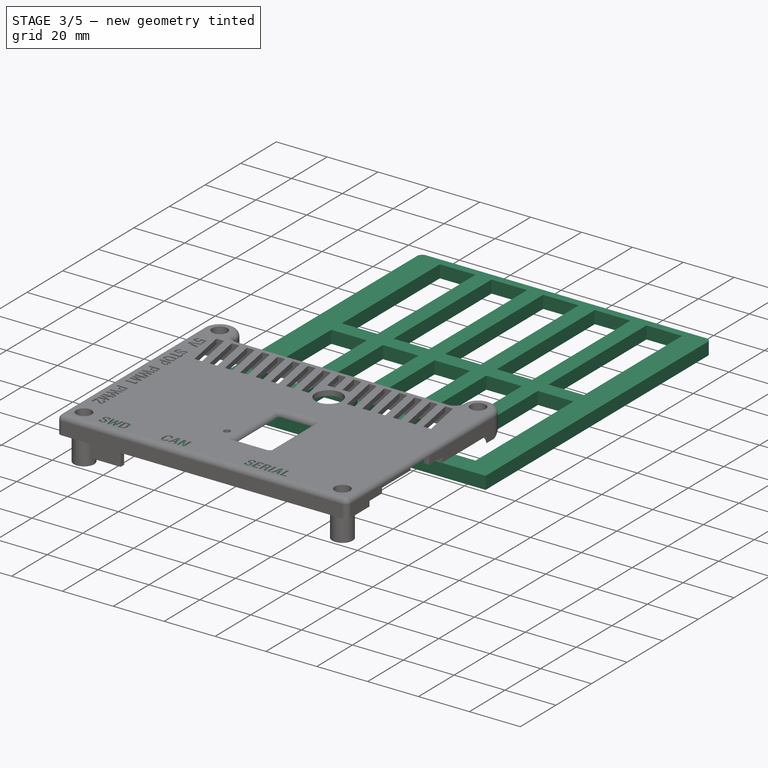
[diagram: stage 3 of 5 — iso view after this stage's code; geometry added in this stage tinted green]
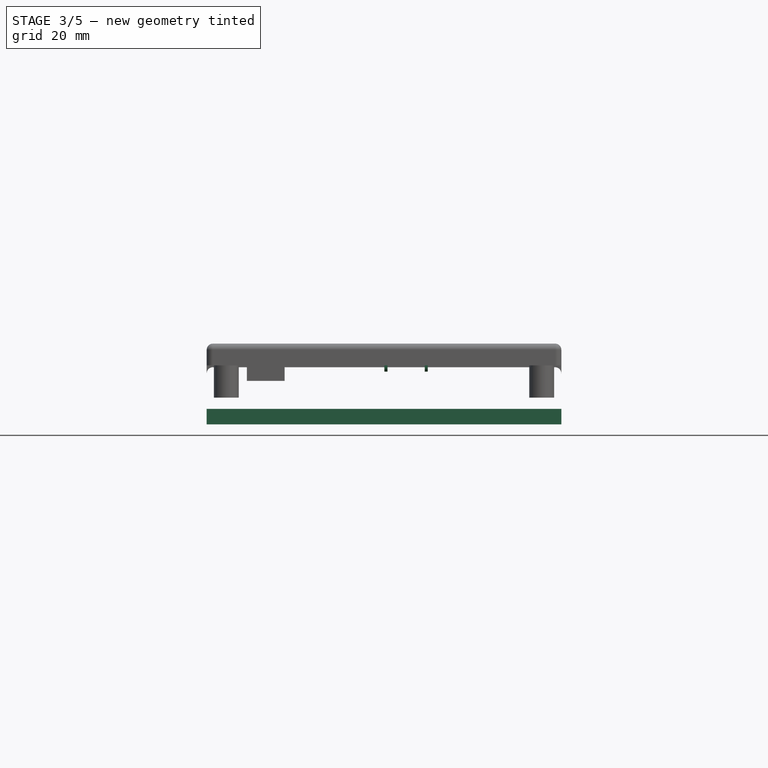
[diagram: stage 3 of 5 — front view after this stage's code; geometry added in this stage tinted green]
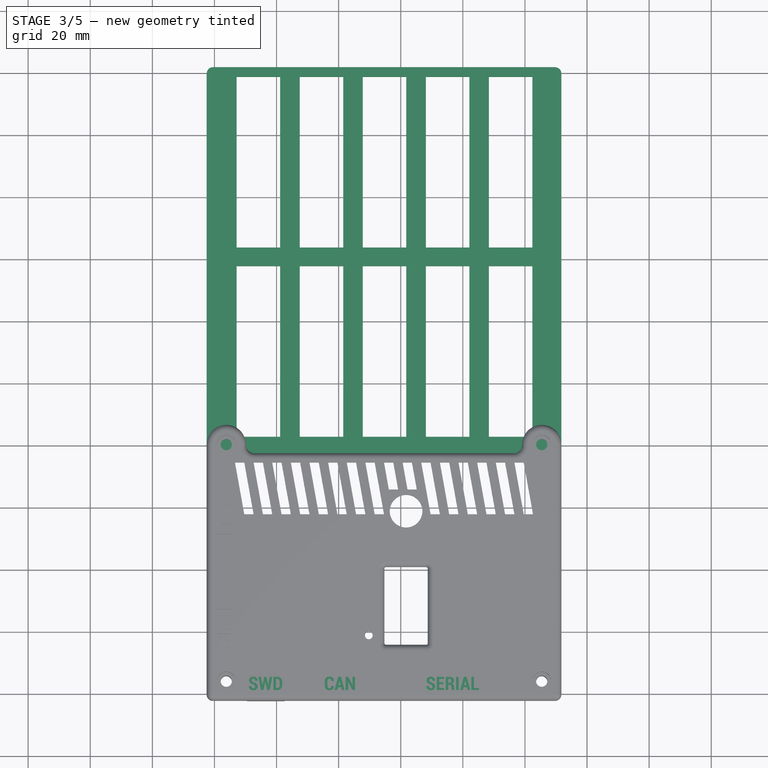
[diagram: stage 3 of 5 — top view after this stage's code; geometry added in this stage tinted green]
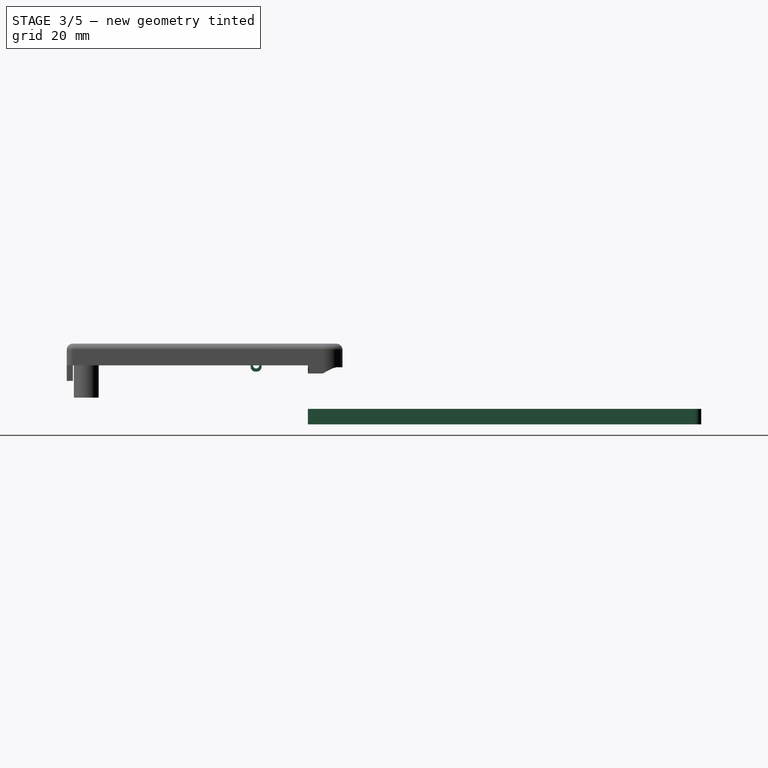
[diagram: stage 3 of 5 — right view after this stage's code; geometry added in this stage tinted green]
FEATURE [PartDesign::Body] Body  label="Bottom"
  AllowCompound = false
  Group = -> [Sketch,Sketch001,Pad,Sketch002,Pad001,Sketch003,Pad002,Sketch004,Pocket,Sketch005,Pocket001,Sketch006,Pocket002,Sketch007,Pocket003,Sketch008,Pocket004,Fillet]
  Origin = -> Origin
  Tip = -> Fillet
FEATURE [Sketcher::SketchObject] Sketch010  label="Sketch_pcb001"
  ArcFitTolerance = 1e-06
  AttachmentSupport = -> [XY_Plane001]
  FullyConstrained = true
  MakeInternals = false
  MapMode = 5
  sketch-geometry (13):
    g0: LineSegment [constr] StartX=0 StartY=0 StartZ=0 EndX=109.22 EndY=0 EndZ=0
    g1: LineSegment [constr] StartX=109.22 StartY=0 StartZ=0 EndX=109.22 EndY=199.39 EndZ=0
    g2: LineSegment [constr] StartX=109.22 StartY=199.39 StartZ=0 EndX=0 EndY=199.39 EndZ=0
    g3: LineSegment [constr] StartX=0 StartY=199.39 StartZ=0 EndX=0 EndY=0 EndZ=0
    g4: Circle [constr] CenterX=3.81 CenterY=195.58 CenterZ=0 NormalX=0 NormalY=0 NormalZ=1 AngleXU=0 Radius=1.8
    g5: Circle [constr] CenterX=3.81 CenterY=140.97 CenterZ=0 NormalX=0 NormalY=0 NormalZ=1 AngleXU=0 Radius=1.8
    g6: Circle [constr] CenterX=3.81 CenterY=80.01 CenterZ=0 NormalX=0 NormalY=0 NormalZ=1 AngleXU=0 Radius=1.8
    g7: Circle [constr] CenterX=3.81 CenterY=3.81 CenterZ=0 NormalX=0 NormalY=0 NormalZ=1 AngleXU=0 Radius=1.8
    g8: Circle [constr] CenterX=105.41 CenterY=3.81 CenterZ=0 NormalX=0 NormalY=0 NormalZ=1 AngleXU=0 Radius=1.8
    g9: Circle [constr] CenterX=105.41 CenterY=80.01 CenterZ=0 NormalX=0 NormalY=0 NormalZ=1 AngleXU=0 Radius=1.8
    g10: Circle [constr] CenterX=105.41 CenterY=140.97 CenterZ=0 NormalX=0 NormalY=0 NormalZ=1 AngleXU=0 Radius=1.8
    g11: Circle [constr] CenterX=105.41 CenterY=195.58 CenterZ=0 NormalX=0 NormalY=0 NormalZ=1 AngleXU=0 Radius=1.8
    g12: Circle [constr] CenterX=54.61 CenterY=140.97 CenterZ=0 NormalX=0 NormalY=0 NormalZ=1 AngleXU=0 Radius=1.8
  constraints (38):
    c: Coincident(g0,g1)
    c: Coincident(g1,g2)
    c: Coincident(g2,g3)
    c: Coincident(g3,g0)
    c: Horizontal(g0)
    c: Horizontal(g2)
    c: Vertical(g1)
    c: Vertical(g3)
    c: Distance(g1,g3) = 109.22
    c: Distance(g0,g2) = 199.39
    c: Coincident(g0,g-1)
    c: Equal(g4,g5)
    c: Equal(g5,g6)
    c: Equal(g6,g7)
    c: Equal(g7,g8)
    c: Equal(g8,g9)
    c: Equal(g9,g10)
    c: Equal(g10,g11)
    c: Equal(g11,g12)
    c: Diameter(g4) = 3.6
    c: DistanceX(g7) = 3.81
    c: DistanceY(g7) = 3.81
    c: DistanceY(g7,g8) = 0
    c: DistanceX(g7,g6) = 0
    c: DistanceX(g6,g5) = 0
    c: DistanceX(g5,g4) = 0
    c: DistanceY(g6) = 80.01
    c: DistanceY(g5) = 140.97
    c: DistanceY(g4) = 195.58
    c: DistanceX(g8) = 105.41
    c: DistanceX(g9,g8) = 0
    c: DistanceX(g10,g9) = 0
    c: DistanceX(g11,g10) = 0
    c: DistanceY(g11,g4) = 0
    c: DistanceY(g5,g12) = 0
    c: DistanceY(g12,g10) = 0
    c: DistanceY(g6,g9) = 0
    c: DistanceX(g12) = 54.61
FEATURE [Sketcher::SketchObject] Sketch011
  ArcFitTolerance = 1e-06
  AttachmentSupport = -> [XY_Plane001]
  FullyConstrained = true
  MakeInternals = false
  MapMode = 5
  expr: Constraints[19] = Sketch010.Constraints[19]
  expr: Constraints[20] = Sketch010.Constraints[20]
  expr: Constraints[21] = Sketch010.Constraints[21]
  expr: Constraints[22] = Sketch010.Constraints[22]
  expr: Constraints[23] = Sketch010.Constraints[23]
  expr: Constraints[24] = Sketch010.Constraints[24]
  expr: Constraints[25] = Sketch010.Constraints[25]
  expr: Constraints[26] = Sketch010.Constraints[26]
  expr: Constraints[27] = Sketch010.Constraints[27]
  expr: Constraints[28] = Sketch010.Constraints[28]
  expr: Constraints[29] = Sketch010.Constraints[29]
  expr: Constraints[30] = Sketch010.Constraints[30]
  expr: Constraints[31] = Sketch010.Constraints[31]
  expr: Constraints[32] = Sketch010.Constraints[32]
  expr: Constraints[33] = Sketch010.Constraints[33]
  expr: Constraints[34] = Sketch010.Constraints[34]
  expr: Constraints[35] = Sketch010.Constraints[35]
  expr: Constraints[36] = Sketch010.Constraints[36]
  expr: Constraints[37] = Sketch010.Constraints[37]
  expr: Constraints[8] = Sketch010.Constraints[8]
  expr: Constraints[9] = Sketch010.Constraints[9]
  sketch-geometry (17):
    g0: LineSegment [constr] StartX=0 StartY=0 StartZ=0 EndX=109.22 EndY=0 EndZ=0
    g1: LineSegment [constr] StartX=109.22 StartY=0 StartZ=0 EndX=109.22 EndY=199.39 EndZ=0
    g2: LineSegment [constr] StartX=109.22 StartY=199.39 StartZ=0 EndX=0 EndY=199.39 EndZ=0
    g3: LineSegment [constr] StartX=0 StartY=199.39 StartZ=0 EndX=0 EndY=0 EndZ=0
    g4: Circle [constr] CenterX=3.81 CenterY=195.58 CenterZ=0 NormalX=0 NormalY=0 NormalZ=1 AngleXU=0 Radius=1.8
    g5: Circle [constr] CenterX=3.81 CenterY=140.97 CenterZ=0 NormalX=0 NormalY=0 NormalZ=1 AngleXU=0 Radius=1.8
    g6: Circle [constr] CenterX=3.81 CenterY=80.01 CenterZ=0 NormalX=0 NormalY=0 NormalZ=1 AngleXU=0 Radius=1.8
    g7: Circle [constr] CenterX=3.81 CenterY=3.81 CenterZ=0 NormalX=0 NormalY=0 NormalZ=1 AngleXU=0 Radius=1.8
    g8: Circle [constr] CenterX=105.41 CenterY=3.81 CenterZ=0 NormalX=0 NormalY=0 NormalZ=1 AngleXU=0 Radius=1.8
    g9: Circle [constr] CenterX=105.41 CenterY=80.01 CenterZ=0 NormalX=0 NormalY=0 NormalZ=1 AngleXU=0 Radius=1.8
    g10: Circle [constr] CenterX=105.41 CenterY=140.97 CenterZ=0 NormalX=0 NormalY=0 NormalZ=1 AngleXU=0 Radius=1.8
    g11: Circle [constr] CenterX=105.41 CenterY=195.58 CenterZ=0 NormalX=0 NormalY=0 NormalZ=1 AngleXU=0 Radius=1.8
    g12: Circle [constr] CenterX=54.61 CenterY=140.97 CenterZ=0 NormalX=0 NormalY=0 NormalZ=1 AngleXU=0 Radius=1.8
    g13: LineSegment StartX=-2.5 StartY=75.18 StartZ=0 EndX=-2.5 EndY=201.89 EndZ=0
    g14: LineSegment StartX=-2.5 StartY=201.89 StartZ=0 EndX=111.72 EndY=201.89 EndZ=0
    g15: LineSegment StartX=111.72 StartY=201.89 StartZ=0 EndX=111.72 EndY=75.18 EndZ=0
    g16: LineSegment StartX=111.72 StartY=75.18 StartZ=0 EndX=-2.5 EndY=75.18 EndZ=0
  constraints (50):
    c: Coincident(g0,g1)
    c: Coincident(g1,g2)
    c: Coincident(g2,g3)
    c: Coincident(g3,g0)
    c: Horizontal(g0)
    c: Horizontal(g2)
    c: Vertical(g1)
    c: Vertical(g3)
    c: Distance(g1,g3) = 109.22
    c: Distance(g0,g2) = 199.39
    c: Coincident(g0,g-1)
    c: Equal(g4,g5)
    c: Equal(g5,g6)
    c: Equal(g6,g7)
    c: Equal(g7,g8)
    c: Equal(g8,g9)
    c: Equal(g9,g10)
    c: Equal(g10,g11)
    c: Equal(g11,g12)
    c: Diameter(g4) = 3.6
    c: DistanceX(g7) = 3.81
    c: DistanceY(g7) = 3.81
    c: DistanceY(g7,g8) = 0
    c: DistanceX(g7,g6) = 0
    c: DistanceX(g6,g5) = 0
    c: DistanceX(g5,g4) = 0
    c: DistanceY(g6) = 80.01
    c: DistanceY(g5) = 140.97
    c: DistanceY(g4) = 195.58
    c: DistanceX(g8) = 105.41
    c: DistanceX(g9,g8) = 0
    c: DistanceX(g10,g9) = 0
    c: DistanceX(g11,g10) = 0
    c: DistanceY(g11,g4) = 0
    c: DistanceY(g5,g12) = 0
    c: DistanceY(g12,g10) = 0
    c: DistanceY(g6,g9) = 0
    c: DistanceX(g12) = 54.61
    c: Vertical(g13)
    c: Coincident(g14,g13)
    c: Horizontal(g14)
    c: Coincident(g15,g14)
    c: Vertical(g15)
    c: Coincident(g16,g15)
    c: Coincident(g16,g13)
    c: Horizontal(g16)
    c: DistanceX(g13) = -2.5
    c: DistanceY(g2,g13) = 2.5
    c: DistanceX(g1,g14) = 2.5
    c: DistanceY(g13) = 75.18
FEATURE [PartDesign::Pad] Pad003
  Direction = (0,0,1)
  Length = 5
  Length2 = 10
  Profile = -> Sketch011
  ReferenceAxis = -> Sketch011 [N_Axis]
  Refine = true
  Suppressed = false
  Type = 0
FEATURE [PartDesign::Fillet] Fillet001
  Base = -> Pad003 [Edge2,Edge5]
  BaseFeature = -> Pad003
  Radius = 2
  Refine = true
  SupportTransform = false
  Suppressed = false
  UseAllEdges = false
FEATURE [Sketcher::SketchObject] Sketch012
  ArcFitTolerance = 1e-06
  AttachmentSupport = -> [Fillet001]
  FullyConstrained = true
  MakeInternals = false
  MapMode = 5
  Placement = pos=(0,0,5) rot=(0,0,1;0rad)
  expr: Constraints[19] = Sketch010.Constraints[19]
  expr: Constraints[20] = Sketch010.Constraints[20]
  expr: Constraints[21] = Sketch010.Constraints[21]
  expr: Constraints[22] = Sketch010.Constraints[22]
  expr: Constraints[23] = Sketch010.Constraints[23]
  expr: Constraints[24] = Sketch010.Constraints[24]
  expr: Constraints[25] = Sketch010.Constraints[25]
  expr: Constraints[26] = Sketch010.Constraints[26]
  expr: Constraints[27] = Sketch010.Constraints[27]
  expr: Constraints[28] = Sketch010.Constraints[28]
  expr: Constraints[29] = Sketch010.Constraints[29]
  expr: Constraints[30] = Sketch010.Constraints[30]
  expr: Constraints[31] = Sketch010.Constraints[31]
  expr: Constraints[32] = Sketch010.Constraints[32]
  expr: Constraints[33] = Sketch010.Constraints[33]
  expr: Constraints[34] = Sketch010.Constraints[34]
  expr: Constraints[35] = Sketch010.Constraints[35]
  expr: Constraints[36] = Sketch010.Constraints[36]
  expr: Constraints[37] = Sketch010.Constraints[37]
  expr: Constraints[8] = Sketch010.Constraints[8]
  expr: Constraints[9] = Sketch010.Constraints[9]
  sketch-geometry (74):
    g0: LineSegment [constr] StartX=0 StartY=0 StartZ=0 EndX=109.22 EndY=0 EndZ=0
    g1: LineSegment [constr] StartX=109.22 StartY=0 StartZ=0 EndX=109.22 EndY=199.39 EndZ=0
    g2: LineSegment [constr] StartX=109.22 StartY=199.39 StartZ=0 EndX=0 EndY=199.39 EndZ=0
    g3: LineSegment [constr] StartX=0 StartY=199.39 StartZ=0 EndX=0 EndY=0 EndZ=0
    g4: Circle [constr] CenterX=3.81 CenterY=195.58 CenterZ=0 NormalX=0 NormalY=0 NormalZ=1 AngleXU=0 Radius=1.8
    g5: Circle [constr] CenterX=3.81 CenterY=140.97 CenterZ=0 NormalX=0 NormalY=0 NormalZ=1 AngleXU=0 Radius=1.8
    g6: Circle [constr] CenterX=3.81 CenterY=80.01 CenterZ=0 NormalX=0 NormalY=0 NormalZ=1 AngleXU=0 Radius=1.8
    g7: Circle [constr] CenterX=3.81 CenterY=3.81 CenterZ=0 NormalX=0 NormalY=0 NormalZ=1 AngleXU=0 Radius=1.8
    g8: Circle [constr] CenterX=105.41 CenterY=3.81 CenterZ=0 NormalX=0 NormalY=0 NormalZ=1 AngleXU=0 Radius=1.8
    g9: Circle [constr] CenterX=105.41 CenterY=80.01 CenterZ=0 NormalX=0 NormalY=0 NormalZ=1 AngleXU=0 Radius=1.8
    g10: Circle [constr] CenterX=105.41 CenterY=140.97 CenterZ=0 NormalX=0 NormalY=0 NormalZ=1 AngleXU=0 Radius=1.8
    g11: Circle [constr] CenterX=105.41 CenterY=195.58 CenterZ=0 NormalX=0 NormalY=0 NormalZ=1 AngleXU=0 Radius=1.8
    g12: Circle [constr] CenterX=54.61 CenterY=140.97 CenterZ=0 NormalX=0 NormalY=0 NormalZ=1 AngleXU=0 Radius=1.8
    g13: LineSegment StartX=7.16 StartY=198.82 StartZ=0 EndX=7.16 EndY=143.82 EndZ=0
    g14: LineSegment StartX=7.16 StartY=143.82 StartZ=0 EndX=21.16 EndY=143.82 EndZ=0
    g15: LineSegment StartX=21.16 StartY=143.82 StartZ=0 EndX=21.16 EndY=198.82 EndZ=0
    g16: LineSegment StartX=21.16 StartY=198.82 StartZ=0 EndX=7.16 EndY=198.82 EndZ=0
    g17: LineSegment [constr] StartX=0 StartY=199.39 StartZ=0 EndX=0 EndY=171.32 EndZ=0
    g18: LineSegment [constr] StartX=0 StartY=171.32 StartZ=0 EndX=14.16 EndY=171.32 EndZ=0
    g19: LineSegment [constr] StartX=7.16 StartY=143.82 StartZ=0 EndX=21.16 EndY=198.82 EndZ=0
    g20: LineSegment StartX=27.47 StartY=198.82 StartZ=0 EndX=27.47 EndY=143.82 EndZ=0
    g21: LineSegment StartX=27.47 StartY=143.82 StartZ=0 EndX=41.47 EndY=143.82 EndZ=0
    g22: LineSegment StartX=41.47 StartY=143.82 StartZ=0 EndX=41.47 EndY=198.82 EndZ=0
    g23: LineSegment StartX=41.47 StartY=198.82 StartZ=0 EndX=27.47 EndY=198.82 EndZ=0
    g24: LineSegment StartX=47.78 StartY=198.82 StartZ=0 EndX=47.78 EndY=143.82 EndZ=0
    g25: LineSegment StartX=47.78 StartY=143.82 StartZ=0 EndX=61.78 EndY=143.82 EndZ=0
    g26: LineSegment StartX=61.78 StartY=143.82 StartZ=0 EndX=61.78 EndY=198.82 EndZ=0
    g27: LineSegment StartX=61.78 StartY=198.82 StartZ=0 EndX=47.78 EndY=198.82 EndZ=0
    g28: LineSegment StartX=68.09 StartY=198.82 StartZ=0 EndX=68.09 EndY=143.82 EndZ=0
    g29: LineSegment StartX=68.09 StartY=143.82 StartZ=0 EndX=82.09 EndY=143.82 EndZ=0
    g30: LineSegment StartX=82.09 StartY=143.82 StartZ=0 EndX=82.09 EndY=198.82 EndZ=0
    g31: LineSegment StartX=82.09 StartY=198.82 StartZ=0 EndX=68.09 EndY=198.82 EndZ=0
    g32: LineSegment StartX=88.4 StartY=198.82 StartZ=0 EndX=88.4 EndY=143.82 EndZ=0
    g33: LineSegment StartX=88.4 StartY=143.82 StartZ=0 EndX=102.4 EndY=143.82 EndZ=0
    g34: LineSegment StartX=102.4 StartY=143.82 StartZ=0 EndX=102.4 EndY=198.82 EndZ=0
    g35: LineSegment StartX=102.4 StartY=198.82 StartZ=0 EndX=88.4 EndY=198.82 EndZ=0
    g36: LineSegment [constr] StartX=27.47 StartY=143.82 StartZ=0 EndX=41.47 EndY=198.82 EndZ=0
    g37: LineSegment [constr] StartX=47.78 StartY=143.82 StartZ=0 EndX=61.78 EndY=198.82 EndZ=0
    g38: LineSegment [constr] StartX=68.09 StartY=143.82 StartZ=0 EndX=82.09 EndY=198.82 EndZ=0
    g39: LineSegment [constr] StartX=88.4 StartY=143.82 StartZ=0 EndX=102.4 EndY=198.82 EndZ=0
    g40: LineSegment [constr] StartX=14.16 StartY=171.32 StartZ=0 EndX=34.47 EndY=171.32 EndZ=0
    g41: LineSegment [constr] StartX=34.47 StartY=171.32 StartZ=0 EndX=54.78 EndY=171.32 EndZ=0
    g42: LineSegment [constr] StartX=54.78 StartY=171.32 StartZ=0 EndX=75.09 EndY=171.32 EndZ=0
    g43: LineSegment [constr] StartX=75.09 StartY=171.32 StartZ=0 EndX=95.4 EndY=171.32 EndZ=0
    g44: LineSegment StartX=7.16 StartY=82.86 StartZ=0 EndX=21.16 EndY=82.86 EndZ=0
    g45: LineSegment StartX=21.16 StartY=82.86 StartZ=0 EndX=21.16 EndY=137.86 EndZ=0
    g46: LineSegment StartX=21.16 StartY=137.86 StartZ=0 EndX=7.16 EndY=137.86 EndZ=0
    g47: LineSegment StartX=7.16 StartY=137.86 StartZ=0 EndX=7.16 EndY=82.86 EndZ=0
    g48: LineSegment StartX=27.47 StartY=82.86 StartZ=0 EndX=41.47 EndY=82.86 EndZ=0
    g49: LineSegment StartX=41.47 StartY=82.86 StartZ=0 EndX=41.47 EndY=137.86 EndZ=0
    g50: LineSegment StartX=41.47 StartY=137.86 StartZ=0 EndX=27.47 EndY=137.86 EndZ=0
    g51: LineSegment StartX=27.47 StartY=137.86 StartZ=0 EndX=27.47 EndY=82.86 EndZ=0
    g52: LineSegment StartX=47.78 StartY=82.86 StartZ=0 EndX=61.78 EndY=82.86 EndZ=0
    g53: LineSegment StartX=61.78 StartY=82.86 StartZ=0 EndX=61.78 EndY=137.86 EndZ=0
    g54: LineSegment StartX=61.78 StartY=137.86 StartZ=0 EndX=47.78 EndY=137.86 EndZ=0
    g55: LineSegment StartX=47.78 StartY=137.86 StartZ=0 EndX=47.78 EndY=82.86 EndZ=0
    g56: LineSegment StartX=68.09 StartY=82.86 StartZ=0 EndX=82.09 EndY=82.86 EndZ=0
    g57: LineSegment StartX=82.09 StartY=82.86 StartZ=0 EndX=82.09 EndY=137.86 EndZ=0
    g58: LineSegment StartX=82.09 StartY=137.86 StartZ=0 EndX=68.09 EndY=137.86 EndZ=0
    g59: LineSegment StartX=68.09 StartY=137.86 StartZ=0 EndX=68.09 EndY=82.86 EndZ=0
    g60: LineSegment StartX=88.4 StartY=82.86 StartZ=0 EndX=102.4 EndY=82.86 EndZ=0
    g61: LineSegment StartX=102.4 StartY=82.86 StartZ=0 EndX=102.4 EndY=137.86 EndZ=0
    g62: LineSegment StartX=102.4 StartY=137.86 StartZ=0 EndX=88.4 EndY=137.86 EndZ=0
    g63: LineSegment StartX=88.4 StartY=137.86 StartZ=0 EndX=88.4 EndY=82.86 EndZ=0
    g64: LineSegment [constr] StartX=7.16 StartY=82.86 StartZ=0 EndX=21.16 EndY=137.86 EndZ=0
    g65: LineSegment [constr] StartX=27.47 StartY=82.86 StartZ=0 EndX=41.47 EndY=137.86 EndZ=0
    g66: LineSegment [constr] StartX=47.78 StartY=82.86 StartZ=0 EndX=61.78 EndY=137.86 EndZ=0
    g67: LineSegment [constr] StartX=68.09 StartY=82.86 StartZ=0 EndX=82.09 EndY=137.86 EndZ=0
    g68: LineSegment [constr] StartX=88.4 StartY=82.86 StartZ=0 EndX=102.4 EndY=137.86 EndZ=0
    g69: LineSegment [constr] StartX=14.16 StartY=110.36 StartZ=0 EndX=34.47 EndY=110.36 EndZ=0
    g70: LineSegment [constr] StartX=34.47 StartY=110.36 StartZ=0 EndX=54.78 EndY=110.36 EndZ=0
    g71: LineSegment [constr] StartX=54.78 StartY=110.36 StartZ=0 EndX=75.09 EndY=110.36 EndZ=0
    g72: LineSegment [constr] StartX=75.09 StartY=110.36 StartZ=0 EndX=95.4 EndY=110.36 EndZ=0
    g73: LineSegment [constr] StartX=0 StartY=110.36 StartZ=0 EndX=14.16 EndY=110.36 EndZ=0
  constraints (202):
    c: Coincident(g0,g1)
    c: Coincident(g1,g2)
    c: Coincident(g2,g3)
    c: Coincident(g3,g0)
    c: Horizontal(g0)
    c: Horizontal(g2)
    c: Vertical(g1)
    c: Vertical(g3)
    c: Distance(g1,g3) = 109.22
    c: Distance(g0,g2) = 199.39
    c: Coincident(g0,g-1)
    c: Equal(g4,g5)
    c: Equal(g5,g6)
    c: Equal(g6,g7)
    c: Equal(g7,g8)
    c: Equal(g8,g9)
    c: Equal(g9,g10)
    c: Equal(g10,g11)
    c: Equal(g11,g12)
    c: Diameter(g4) = 3.6
    c: DistanceX(g7) = 3.81
    c: DistanceY(g7) = 3.81
    c: DistanceY(g7,g8) = 0
    c: DistanceX(g7,g6) = 0
    c: DistanceX(g6,g5) = 0
    c: DistanceX(g5,g4) = 0
    c: DistanceY(g6) = 80.01
    c: DistanceY(g5) = 140.97
    c: DistanceY(g4) = 195.58
    c: DistanceX(g8) = 105.41
    c: DistanceX(g9,g8) = 0
    c: DistanceX(g10,g9) = 0
    c: DistanceX(g11,g10) = 0
    c: DistanceY(g11,g4) = 0
    c: DistanceY(g5,g12) = 0
    c: DistanceY(g12,g10) = 0
    c: DistanceY(g6,g9) = 0
    c: DistanceX(g12) = 54.61
    c: Coincident(g13,g14)
    c: Coincident(g14,g15)
    c: Coincident(g15,g16)
    c: Coincident(g16,g13)
    c: Vertical(g13)
    c: Vertical(g15)
    c: Horizontal(g14)
    c: Horizontal(g16)
    c: DistanceY(g13,g13) = 55
    c: DistanceX(g16,g16) = 14
    c: Distance(g17) = 28.07
    c: Coincident(g17,g2)
    c: PointOnObject(g17,g3)
    c: Distance(g18) = 14.16
    c: Coincident(g18,g17)
    c: Horizontal(g18)
    c: Coincident(g19,g13)
    c: Coincident(g19,g15)
    c: Symmetric(g19,g19,g18)
    c: Coincident(g20,g21)
    c: Coincident(g21,g22)
    c: Coincident(g22,g23)
    c: Coincident(g23,g20)
    c: Vertical(g20)
    c: Vertical(g22)
    c: Horizontal(g21)
    c: Horizontal(g23)
    c: Coincident(g24,g25)
    c: Coincident(g25,g26)
    c: Coincident(g26,g27)
    c: Coincident(g27,g24)
    c: Vertical(g24)
    c: Vertical(g26)
    c: Horizontal(g25)
    c: Horizontal(g27)
    c: Coincident(g28,g29)
    c: Coincident(g29,g30)
    c: Coincident(g30,g31)
    c: Coincident(g31,g28)
    c: Vertical(g28)
    c: Vertical(g30)
    c: Horizontal(g29)
    c: Horizontal(g31)
    c: Coincident(g32,g33)
    c: Coincident(g33,g34)
    c: Coincident(g34,g35)
    c: Coincident(g35,g32)
    c: Vertical(g32)
    c: Vertical(g34)
    c: Horizontal(g33)
    c: Horizontal(g35)
    c: Equal(g16,g23)
    c: Equal(g23,g27)
    c: Equal(g27,g31)
    c: Equal(g31,g35)
    c: Equal(g15,g20)
    c: Equal(g20,g24)
    c: Equal(g24,g28)
    c: Equal(g28,g32)
    c: Coincident(g36,g20)
    c: Coincident(g36,g22)
    c: Coincident(g37,g24)
    c: Coincident(g37,g26)
    c: Coincident(g38,g28)
    c: Coincident(g38,g30)
    c: Coincident(g39,g32)
    c: Coincident(g39,g34)
    c: Distance(g40) = 20.31
    c: Coincident(g40,g18)
    c: Horizontal(g40)
    c: Symmetric(g36,g36,g40)
    c: Coincident(g41,g40)
    c: Symmetric(g37,g37,g41)
    c: Coincident(g42,g41)
    c: Symmetric(g38,g38,g42)
    c: Coincident(g43,g42)
    c: Symmetric(g39,g39,g43)
    c: Horizontal(g42)
    c: Horizontal(g43)
    c: Horizontal(g41)
    c: Equal(g40,g41)
    c: Equal(g41,g42)
    c: Equal(g42,g43)
    c: Coincident(g44,g45)
    c: Coincident(g45,g46)
    c: Coincident(g46,g47)
    c: Coincident(g47,g44)
    c: Horizontal(g44)
    c: Horizontal(g46)
    c: Vertical(g45)
    c: Vertical(g47)
    c: Coincident(g48,g49)
    c: Coincident(g49,g50)
    c: Coincident(g50,g51)
    c: Coincident(g51,g48)
    c: Horizontal(g48)
    c: Horizontal(g50)
    c: Vertical(g49)
    c: Vertical(g51)
    c: Coincident(g52,g53)
    c: Coincident(g53,g54)
    c: Coincident(g54,g55)
    c: Coincident(g55,g52)
    c: Horizontal(g52)
    c: Horizontal(g54)
    c: Vertical(g53)
    c: Vertical(g55)
    c: Coincident(g56,g57)
    c: Coincident(g57,g58)
    c: Coincident(g58,g59)
    c: Coincident(g59,g56)
    c: Horizontal(g56)
    c: Horizontal(g58)
    c: Vertical(g57)
    c: Vertical(g59)
    c: Coincident(g60,g61)
    c: Coincident(g61,g62)
    c: Coincident(g62,g63)
    c: Coincident(g63,g60)
    c: Horizontal(g60)
    c: Horizontal(g62)
    c: Vertical(g61)
    c: Vertical(g63)
    c: Equal(g46,g50)
    c: Equal(g50,g54)
    c: Equal(g54,g58)
    c: Equal(g58,g62)
    c: Equal(g62,g16)
    c: Equal(g47,g51)
    c: Equal(g51,g55)
    c: Equal(g55,g59)
    c: Equal(g59,g63)
    c: Equal(g63,g13)
    c: Coincident(g64,g44)
    c: Coincident(g64,g45)
    c: Coincident(g65,g48)
    c: Coincident(g65,g49)
    c: Coincident(g66,g52)
    c: Coincident(g66,g53)
    c: Coincident(g67,g56)
    c: Coincident(g67,g57)
    c: Coincident(g68,g60)
    c: Symmetric(g64,g64,g69)
    c: Symmetric(g65,g65,g69)
    c: Coincident(g70,g69)
    c: Symmetric(g66,g66,g70)
    c: Coincident(g71,g70)
    c: Symmetric(g67,g67,g71)
    c: Coincident(g72,g71)
    c: Symmetric(g68,g68,g72)
    c: Horizontal(g69)
    c: Horizontal(g70)
    c: Horizontal(g71)
    c: Horizontal(g72)
    c: Equal(g69,g70)
    c: Equal(g70,g71)
    c: Equal(g71,g72)
    c: Equal(g72,g40)
    c: DistanceX(g13,g46) = 0
    c: PointOnObject(g73,g3)
    c: Coincident(g73,g69)
    c: DistanceY(g73,g2) = 89.03
    c: Horizontal(g73)
    c: Coincident(g68,g61)
FEATURE [PartDesign::Pocket] Pocket005
  BaseFeature = -> Fillet001
  Direction = (0,0,-1)
  Length = 5
  Length2 = 5
  Profile = -> Sketch012
  ReferenceAxis = -> Sketch012 [N_Axis]
  Refine = true
  Suppressed = false
  Type = 1
FEATURE [Sketcher::SketchObject] Sketch035
  ArcFitTolerance = 1e-06
  AttachmentOffset = pos=(0,0,-2) rot=(0,0,1;0rad)
  AttachmentSupport = -> [Pocket017]
  FullyConstrained = true
  MakeInternals = false
  MapMode = 5
  Placement = pos=(0,0,24) rot=(0,0,1;0rad)
  expr: Constraints[10] = Sketch033.Constraints[10]
  expr: Constraints[11] = Sketch033.Constraints[11]
  expr: Constraints[20] = Sketch033.Constraints[20]
  expr: Constraints[21] = Sketch033.Constraints[21]
  expr: Constraints[22] = Sketch033.Constraints[22]
  expr: Constraints[23] = Sketch033.Constraints[23]
  expr: Constraints[27] = Sketch033.Constraints[27]
  expr: Constraints[28] = Sketch033.Constraints[28]
  expr: Constraints[41] = Sketch033.Constraints[41]
  expr: Constraints[48] = Sketch033.Constraints[48]
  expr: Constraints[49] = Sketch033.Constraints[49]
  expr: Constraints[8] = Sketch033.Constraints[8]
  expr: Constraints[9] = Sketch033.Constraints[9]
  sketch-geometry (25):
    g0: LineSegment [constr] StartX=-2.5 StartY=-2.5 StartZ=0 EndX=111.72 EndY=-2.5 EndZ=0
    g1: LineSegment [constr] StartX=111.72 StartY=-2.5 StartZ=0 EndX=111.72 EndY=77.18 EndZ=0
    g2: LineSegment [constr] StartX=111.72 StartY=77.18 StartZ=0 EndX=-2.5 EndY=77.18 EndZ=0
    g3: LineSegment [constr] StartX=-2.5 StartY=77.18 StartZ=0 EndX=-2.5 EndY=-2.5 EndZ=0
    g4: LineSegment [constr] StartX=54.72 StartY=15.5 StartZ=0 EndX=68.72 EndY=15.5 EndZ=0
    g5: LineSegment [constr] StartX=68.72 StartY=15.5 StartZ=0 EndX=68.72 EndY=40.5 EndZ=0
    g6: LineSegment [constr] StartX=68.72 StartY=40.5 StartZ=0 EndX=54.72 EndY=40.5 EndZ=0
    g7: LineSegment [constr] StartX=54.72 StartY=40.5 StartZ=0 EndX=54.72 EndY=15.5 EndZ=0
    g8: Circle [constr] CenterX=61.72 CenterY=58.5 CenterZ=0 NormalX=0 NormalY=0 NormalZ=1 AngleXU=0 Radius=5.25
    g9: LineSegment [constr] StartX=61.72 StartY=58.5 StartZ=0 EndX=61.72 EndY=40.5 EndZ=0
    g10: LineSegment StartX=54.72 StartY=65.5 StartZ=0 EndX=54.72 EndY=51.5 EndZ=0
    g11: LineSegment StartX=54.72 StartY=51.5 StartZ=0 EndX=68.72 EndY=51.5 EndZ=0
    g12: LineSegment [constr] StartX=68.72 StartY=51.5 StartZ=0 EndX=68.72 EndY=65.5 EndZ=0
    g13: LineSegment [constr] StartX=68.72 StartY=65.5 StartZ=0 EndX=54.72 EndY=65.5 EndZ=0
    g14: LineSegment [constr] StartX=54.72 StartY=65.5 StartZ=0 EndX=68.72 EndY=51.5 EndZ=0
    g15: LineSegment [constr] StartX=54.72 StartY=65.5 StartZ=0 EndX=68.17 EndY=65.5 EndZ=0
    g16: LineSegment StartX=68.17 StartY=65.5 StartZ=0 EndX=68.72 EndY=62.44 EndZ=0
    g17: LineSegment [constr] StartX=68.72 StartY=62.44 StartZ=0 EndX=68.72 EndY=51.5 EndZ=0
    g18: LineSegment StartX=55.72 StartY=64.5 StartZ=0 EndX=55.72 EndY=52.5 EndZ=0
    g19: LineSegment StartX=55.72 StartY=52.5 StartZ=0 EndX=67.72 EndY=52.5 EndZ=0
    g20: LineSegment StartX=67.72 StartY=52.5 StartZ=0 EndX=67.72 EndY=64.5 EndZ=0
    g21: LineSegment StartX=67.72 StartY=64.5 StartZ=0 EndX=55.72 EndY=64.5 EndZ=0
    g22: LineSegment [constr] StartX=55.72 StartY=52.5 StartZ=0 EndX=61.72 EndY=58.5 EndZ=0
    g23: LineSegment StartX=54.72 StartY=65.5 StartZ=0 EndX=68.17 EndY=65.5 EndZ=0
    g24: LineSegment StartX=68.72 StartY=62.44 StartZ=0 EndX=68.72 EndY=51.5 EndZ=0
  constraints (68):
    c: Coincident(g0,g1)
    c: Coincident(g1,g2)
    c: Coincident(g2,g3)
    c: Coincident(g3,g0)
    c: Horizontal(g0)
    c: Horizontal(g2)
    c: Vertical(g1)
    c: Vertical(g3)
    c: DistanceX(g0) = -2.5
    c: DistanceY(g0) = -2.5
    c: DistanceX(g0,g0) = 114.22
    c: DistanceY(g3,g3) = 79.68
    c: Coincident(g4,g5)
    c: Coincident(g5,g6)
    c: Coincident(g6,g7)
    c: Coincident(g7,g4)
    c: Horizontal(g4)
    c: Horizontal(g6)
    c: Vertical(g5)
    c: Vertical(g7)
    c: DistanceY(g0,g4) = 18
    c: DistanceY(g0,g5) = 43
    c: DistanceX(g4,g0) = 43
    c: DistanceX(g4,g0) = 57
    c: Coincident(g9,g8)
    c: Symmetric(g6,g6,g9)
    c: Vertical(g9)
    c: DistanceY(g9,g9) = 18
    c: Diameter(g8) = 10.5
    c: Coincident(g10,g11)
    c: Coincident(g11,g12)
    c: Coincident(g12,g13)
    c: Coincident(g13,g10)
    c: Vertical(g10)
    c: Vertical(g12)
    c: Horizontal(g11)
    c: Horizontal(g13)
    c: Coincident(g14,g10)
    c: Coincident(g14,g11)
    c: Symmetric(g14,g14,g8)
    c: Equal(g10,g13)
    c: DistanceX(g13,g13) = 14
    c: Coincident(g15,g10)
    c: PointOnObject(g15,g13)
    c: Coincident(g16,g15)
    c: PointOnObject(g16,g12)
    c: Coincident(g17,g16)
    c: Coincident(g17,g11)
    c: DistanceX(g15,g15) = 13.45
    c: DistanceY(g17,g17) = 10.94
    c: Coincident(g18,g19)
    c: Coincident(g19,g20)
    c: Coincident(g20,g21)
    c: Coincident(g21,g18)
    c: Vertical(g18)
    c: Vertical(g20)
    c: Horizontal(g19)
    c: Horizontal(g21)
    c: PointOnObject(g18,g14)
    c: PointOnObject(g19,g14)
    c: DistanceX(g21,g21) = 12
    c: Coincident(g22,g18)
    c: Coincident(g22,g8)
    c: Perpendicular(g14,g22)
    c: Coincident(g23,g10)
    c: Coincident(g23,g15)
    c: Coincident(g24,g16)
    c: Coincident(g24,g11)
FEATURE [PartDesign::Pad] Pad016
  BaseFeature = -> Pocket017
  Direction = (0,0,1)
  Length = 2
  Length2 = 10
  Profile = -> Sketch035
  ReferenceAxis = -> Sketch035 [N_Axis]
  Refine = true
  Reversed = true
  Suppressed = false
  Type = 0
FEATURE [Sketcher::SketchObject] Sketch036
  ArcFitTolerance = 1e-06
  AttachmentOffset = pos=(0,0,-4) rot=(0,0,1;0rad)
  AttachmentSupport = -> [Pad016]
  FullyConstrained = true
  MakeInternals = false
  MapMode = 5
  Placement = pos=(0,0,22) rot=(0,0,1;0rad)
  expr: Constraints[10] = Sketch035.Constraints[10]
  expr: Constraints[11] = Sketch035.Constraints[11]
  expr: Constraints[20] = Sketch035.Constraints[20]
  expr: Constraints[21] = Sketch035.Constraints[21]
  expr: Constraints[22] = Sketch035.Constraints[22]
  expr: Constraints[23] = Sketch035.Constraints[23]
  expr: Constraints[27] = Sketch035.Constraints[27]
  expr: Constraints[28] = Sketch035.Constraints[28]
  expr: Constraints[41] = Sketch035.Constraints[41]
  expr: Constraints[48] = Sketch035.Constraints[48]
  expr: Constraints[49] = Sketch035.Constraints[49]
  expr: Constraints[60] = Sketch035.Constraints[60]
  expr: Constraints[8] = Sketch035.Constraints[8]
  expr: Constraints[9] = Sketch035.Constraints[9]
  sketch-geometry (35):
    g0: LineSegment [constr] StartX=-2.5 StartY=-2.5 StartZ=0 EndX=111.72 EndY=-2.5 EndZ=0
    g1: LineSegment [constr] StartX=111.72 StartY=-2.5 StartZ=0 EndX=111.72 EndY=77.18 EndZ=0
    g2: LineSegment [constr] StartX=111.72 StartY=77.18 StartZ=0 EndX=-2.5 EndY=77.18 EndZ=0
    g3: LineSegment [constr] StartX=-2.5 StartY=77.18 StartZ=0 EndX=-2.5 EndY=-2.5 EndZ=0
    g4: LineSegment [constr] StartX=54.72 StartY=15.5 StartZ=0 EndX=68.72 EndY=15.5 EndZ=0
    g5: LineSegment [constr] StartX=68.72 StartY=15.5 StartZ=0 EndX=68.72 EndY=40.5 EndZ=0
    g6: LineSegment [constr] StartX=68.72 StartY=40.5 StartZ=0 EndX=54.72 EndY=40.5 EndZ=0
    g7: LineSegment [constr] StartX=54.72 StartY=40.5 StartZ=0 EndX=54.72 EndY=15.5 EndZ=0
    g8: Circle [constr] CenterX=61.72 CenterY=58.5 CenterZ=0 NormalX=0 NormalY=0 NormalZ=1 AngleXU=0 Radius=5.25
    g9: LineSegment [constr] StartX=61.72 StartY=58.5 StartZ=0 EndX=61.72 EndY=40.5 EndZ=0
    g10: LineSegment [constr] StartX=54.72 StartY=65.5 StartZ=0 EndX=54.72 EndY=51.5 EndZ=0
    g11: LineSegment [constr] StartX=54.72 StartY=51.5 StartZ=0 EndX=68.72 EndY=51.5 EndZ=0
    g12: LineSegment [constr] StartX=68.72 StartY=51.5 StartZ=0 EndX=68.72 EndY=65.5 EndZ=0
    g13: LineSegment [constr] StartX=68.72 StartY=65.5 StartZ=0 EndX=54.72 EndY=65.5 EndZ=0
    g14: LineSegment [constr] StartX=54.72 StartY=65.5 StartZ=0 EndX=68.72 EndY=51.5 EndZ=0
    g15: LineSegment [constr] StartX=54.72 StartY=65.5 StartZ=0 EndX=68.17 EndY=65.5 EndZ=0
    g16: LineSegment [constr] StartX=68.17 StartY=65.5 StartZ=0 EndX=68.72 EndY=62.44 EndZ=0
    g17: LineSegment [constr] StartX=68.72 StartY=62.44 StartZ=0 EndX=68.72 EndY=51.5 EndZ=0
    g18: LineSegment [constr] StartX=55.72 StartY=64.5 StartZ=0 EndX=55.72 EndY=52.5 EndZ=0
    g19: LineSegment [constr] StartX=55.72 StartY=52.5 StartZ=0 EndX=67.72 EndY=52.5 EndZ=0
    g20: LineSegment [constr] StartX=67.72 StartY=52.5 StartZ=0 EndX=67.72 EndY=64.5 EndZ=0
    g21: LineSegment [constr] StartX=67.72 StartY=64.5 StartZ=0 EndX=55.72 EndY=64.5 EndZ=0
    g22: LineSegment [constr] StartX=55.72 StartY=52.5 StartZ=0 EndX=61.72 EndY=58.5 EndZ=0
    g23: LineSegment [constr] StartX=54.72 StartY=65.5 StartZ=0 EndX=68.17 EndY=65.5 EndZ=0
    g24: LineSegment [constr] StartX=68.72 StartY=62.44 StartZ=0 EndX=68.72 EndY=51.5 EndZ=0
    g25: LineSegment StartX=54.72 StartY=60.25 StartZ=0 EndX=54.72 EndY=56.75 EndZ=0
    g26: LineSegment StartX=54.72 StartY=56.75 StartZ=0 EndX=55.72 EndY=56.75 EndZ=0
    g27: LineSegment StartX=55.72 StartY=56.75 StartZ=0 EndX=55.72 EndY=60.25 EndZ=0
    g28: LineSegment StartX=55.72 StartY=60.25 StartZ=0 EndX=54.72 EndY=60.25 EndZ=0
    g29: LineSegment StartX=67.72 StartY=60.25 StartZ=0 EndX=67.72 EndY=56.75 EndZ=0
    g30: LineSegment StartX=67.72 StartY=56.75 StartZ=0 EndX=68.72 EndY=56.75 EndZ=0
    g31: LineSegment StartX=68.72 StartY=56.75 StartZ=0 EndX=68.72 EndY=60.25 EndZ=0
    g32: LineSegment StartX=68.72 StartY=60.25 StartZ=0 EndX=67.72 EndY=60.25 EndZ=0
    g33: LineSegment [constr] StartX=55.72 StartY=58.5 StartZ=0 EndX=61.72 EndY=58.5 EndZ=0
    g34: LineSegment [constr] StartX=61.72 StartY=58.5 StartZ=0 EndX=67.72 EndY=58.5 EndZ=0
  constraints (96):
    c: Coincident(g0,g1)
    c: Coincident(g1,g2)
    c: Coincident(g2,g3)
    c: Coincident(g3,g0)
    c: Horizontal(g0)
    c: Horizontal(g2)
    c: Vertical(g1)
    c: Vertical(g3)
    c: DistanceX(g0) = -2.5
    c: DistanceY(g0) = -2.5
    c: DistanceX(g0,g0) = 114.22
    c: DistanceY(g3,g3) = 79.68
    c: Coincident(g4,g5)
    c: Coincident(g5,g6)
    c: Coincident(g6,g7)
    c: Coincident(g7,g4)
    c: Horizontal(g4)
    c: Horizontal(g6)
    c: Vertical(g5)
    c: Vertical(g7)
    c: DistanceY(g0,g4) = 18
    c: DistanceY(g0,g5) = 43
    c: DistanceX(g4,g0) = 43
    c: DistanceX(g4,g0) = 57
    c: Coincident(g9,g8)
    c: Symmetric(g6,g6,g9)
    c: Vertical(g9)
    c: DistanceY(g9,g9) = 18
    c: Diameter(g8) = 10.5
    c: Coincident(g10,g11)
    c: Coincident(g11,g12)
    c: Coincident(g12,g13)
    c: Coincident(g13,g10)
    c: Vertical(g10)
    c: Vertical(g12)
    c: Horizontal(g11)
    c: Horizontal(g13)
    c: Coincident(g14,g10)
    c: Coincident(g14,g11)
    c: Symmetric(g14,g14,g8)
    c: Equal(g10,g13)
    c: DistanceX(g13,g13) = 14
    c: Coincident(g15,g10)
    c: PointOnObject(g15,g13)
    c: Coincident(g16,g15)
    c: PointOnObject(g16,g12)
    c: Coincident(g17,g16)
    c: Coincident(g17,g11)
    c: DistanceX(g15,g15) = 13.45
    c: DistanceY(g17,g17) = 10.94
    c: Coincident(g18,g19)
    c: Coincident(g19,g20)
    c: Coincident(g20,g21)
    c: Coincident(g21,g18)
    c: Vertical(g18)
    c: Vertical(g20)
    c: Horizontal(g19)
    c: Horizontal(g21)
    c: PointOnObject(g18,g14)
    c: PointOnObject(g19,g14)
    c: DistanceX(g21,g21) = 12
    c: Coincident(g22,g18)
    c: Coincident(g22,g8)
    c: Perpendicular(g14,g22)
    c: Coincident(g23,g10)
    c: Coincident(g23,g15)
    c: Coincident(g24,g16)
    c: Coincident(g24,g11)
    c: Coincident(g25,g26)
    c: Coincident(g26,g27)
    c: Coincident(g27,g28)
    c: Coincident(g28,g25)
    c: Vertical(g25)
    c: Vertical(g27)
    c: Horizontal(g26)
    c: Horizontal(g28)
    c: PointOnObject(g25,g10)
    c: PointOnObject(g26,g18)
    c: Coincident(g29,g30)
    c: Coincident(g30,g31)
    c: Coincident(g31,g32)
    c: Coincident(g32,g29)
    c: Vertical(g29)
    c: Vertical(g31)
    c: Horizontal(g30)
    c: Horizontal(g32)
    c: PointOnObject(g29,g20)
    c: PointOnObject(g30,g12)
    c: DistanceY(g25,g25) = 3.5
    c: Equal(g25,g31)
    c: Coincident(g33,g8)
    c: Coincident(g34,g8)
    c: Symmetric(g29,g29,g34)
    c: Horizontal(g34)
    c: Horizontal(g33)
    c: Symmetric(g27,g27,g33)
FEATURE [PartDesign::Pad] Pad017
  BaseFeature = -> Pad016
  Direction = (0,0,1)
  Length = 5
  Length2 = 10
  Profile = -> Sketch036
  ReferenceAxis = -> Sketch036 [N_Axis]
  Refine = true
  Reversed = true
  Suppressed = false
  Type = 0
FEATURE [Sketcher::SketchObject] Sketch037
  ArcFitTolerance = 1e-06
  AttachmentSupport = -> [Pad017]
  FullyConstrained = true
  MakeInternals = false
  MapMode = 5
  Placement = pos=(54.72,0,-1.111e-13) rot=(0.57735,-0.57735,-0.57735;2.0944rad)
  sketch-geometry (4):
    g0: Circle CenterX=-58.5 CenterY=19 CenterZ=0 NormalX=0 NormalY=0 NormalZ=1 AngleXU=0 Radius=1
    g1: LineSegment [constr] StartX=-60.25 StartY=17 StartZ=0 EndX=-56.75 EndY=17 EndZ=0
    g2: LineSegment [constr] StartX=-58.5 StartY=18 StartZ=0 EndX=-58.5 EndY=17 EndZ=0
    g3: LineSegment [constr] StartX=-58.5 StartY=19 StartZ=0 EndX=-58.5 EndY=18 EndZ=0
  constraints (12):
    c: Diameter(g0) = 2
    c: Horizontal(g1)
    c: DistanceY(g1) = 17
    c: DistanceX(g1) = -60.25
    c: DistanceX(g1,g1) = 3.5
    c: PointOnObject(g2,g0)
    c: Symmetric(g1,g1,g2)
    c: DistanceY(g2,g2) = 1
    c: Vertical(g2)
    c: Coincident(g3,g0)
    c: Coincident(g3,g2)
    c: Vertical(g3)
FEATURE [PartDesign::Pocket] Pocket018
  BaseFeature = -> Pad017
  Direction = (1,-1e-16,-1.9e-15)
  Length = 14
  Length2 = 5
  Profile = -> Sketch037
  ReferenceAxis = -> Sketch037 [N_Axis]
  Refine = true
  Suppressed = false
  Type = 0
FEATURE [PartDesign::Fillet] Fillet008
  Base = -> Pocket018 [Edge437,Edge444,Edge441,Edge438]
  BaseFeature = -> Pocket018
  Radius = 1.5
  Refine = true
  SupportTransform = false
  Suppressed = false
  UseAllEdges = false
FEATURE [Part::Extrusion] Extrude003
  Base = -> ShapeString003
  Dir = (0,0,1)
  DirMode = 2
  FaceMakerClass = Part::FaceMakerBullseye
  FaceMakerMode = 3
  LengthFwd = 0
  LengthRev = 0.5
  Solid = false
  Symmetric = false
FEATURE [Part::Cut] Cut002
  Base = -> Body002
  Refine = true
  Tool = -> Extrude002
FEATURE [Part::Cut] Cut003  label="Top_IC_text"
  Base = -> Cut002
  Refine = true
  Tool = -> Extrude003
note: 4 file-system paths scrubbed to <path> (originals preserved in the JSON sidecar)
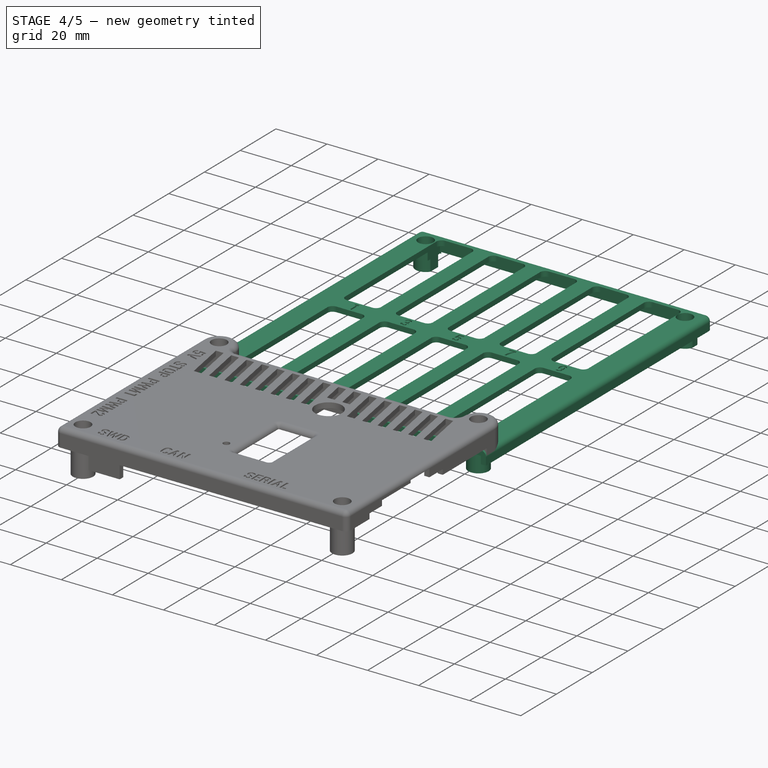
[diagram: stage 4 of 5 — iso view after this stage's code; geometry added in this stage tinted green]
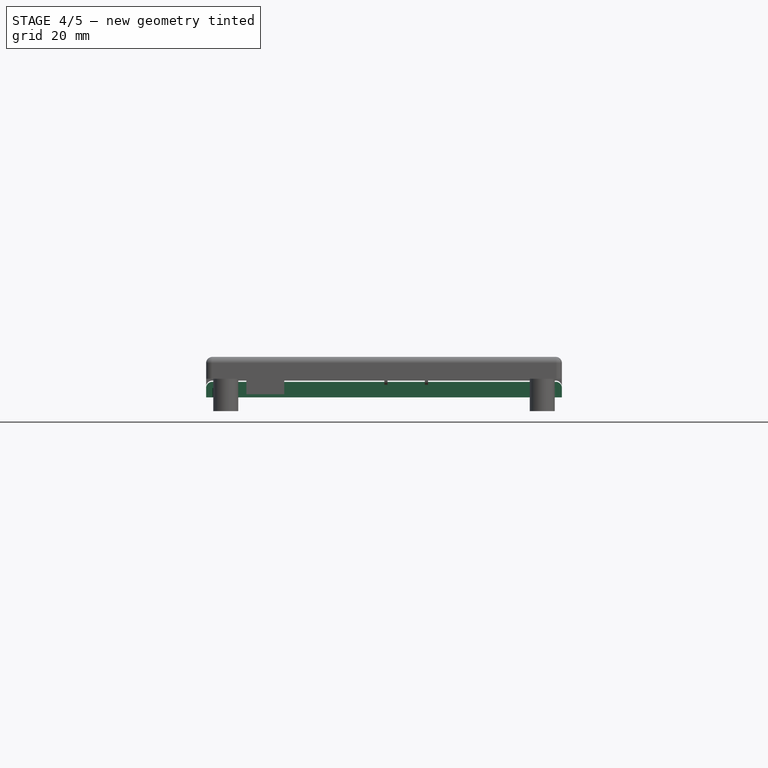
[diagram: stage 4 of 5 — front view after this stage's code; geometry added in this stage tinted green]
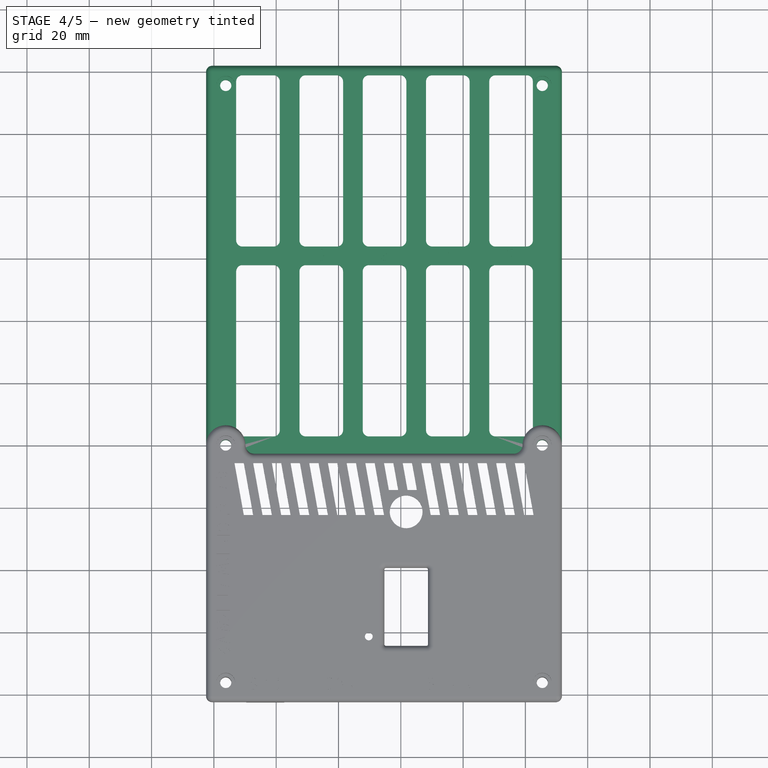
[diagram: stage 4 of 5 — top view after this stage's code; geometry added in this stage tinted green]
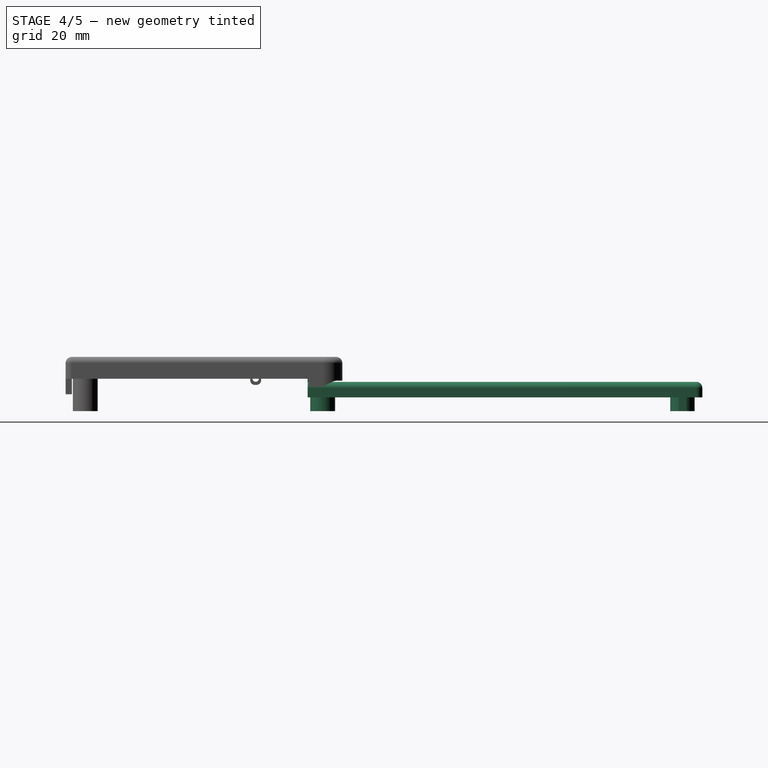
[diagram: stage 4 of 5 — right view after this stage's code; geometry added in this stage tinted green]
FEATURE [Sketcher::SketchObject] Sketch013
  ArcFitTolerance = 1e-06
  AttachmentSupport = -> [Pocket005]
  FullyConstrained = true
  MakeInternals = false
  MapMode = 5
  Placement = pos=(0,0,5) rot=(0,0,1;0rad)
  expr: Constraints[19] = Sketch010.Constraints[19]
  expr: Constraints[20] = Sketch010.Constraints[20]
  expr: Constraints[21] = Sketch010.Constraints[21]
  expr: Constraints[22] = Sketch010.Constraints[22]
  expr: Constraints[23] = Sketch010.Constraints[23]
  expr: Constraints[24] = Sketch010.Constraints[24]
  expr: Constraints[25] = Sketch010.Constraints[25]
  expr: Constraints[26] = Sketch010.Constraints[26]
  expr: Constraints[27] = Sketch010.Constraints[27]
  expr: Constraints[28] = Sketch010.Constraints[28]
  expr: Constraints[29] = Sketch010.Constraints[29]
  expr: Constraints[30] = Sketch010.Constraints[30]
  expr: Constraints[31] = Sketch010.Constraints[31]
  expr: Constraints[32] = Sketch010.Constraints[32]
  expr: Constraints[33] = Sketch010.Constraints[33]
  expr: Constraints[34] = Sketch010.Constraints[34]
  expr: Constraints[35] = Sketch010.Constraints[35]
  expr: Constraints[36] = Sketch010.Constraints[36]
  expr: Constraints[37] = Sketch010.Constraints[37]
  expr: Constraints[8] = Sketch010.Constraints[8]
  expr: Constraints[9] = Sketch010.Constraints[9]
  sketch-geometry (13):
    g0: LineSegment [constr] StartX=0 StartY=0 StartZ=0 EndX=109.22 EndY=0 EndZ=0
    g1: LineSegment [constr] StartX=109.22 StartY=0 StartZ=0 EndX=109.22 EndY=199.39 EndZ=0
    g2: LineSegment [constr] StartX=109.22 StartY=199.39 StartZ=0 EndX=0 EndY=199.39 EndZ=0
    g3: LineSegment [constr] StartX=0 StartY=199.39 StartZ=0 EndX=0 EndY=0 EndZ=0
    g4: Circle CenterX=3.81 CenterY=195.58 CenterZ=0 NormalX=0 NormalY=0 NormalZ=1 AngleXU=0 Radius=1.8
    g5: Circle [constr] CenterX=3.81 CenterY=140.97 CenterZ=0 NormalX=0 NormalY=0 NormalZ=1 AngleXU=0 Radius=1.8
    g6: Circle CenterX=3.81 CenterY=80.01 CenterZ=0 NormalX=0 NormalY=0 NormalZ=1 AngleXU=0 Radius=1.8
    g7: Circle [constr] CenterX=3.81 CenterY=3.81 CenterZ=0 NormalX=0 NormalY=0 NormalZ=1 AngleXU=0 Radius=1.8
    g8: Circle [constr] CenterX=105.41 CenterY=3.81 CenterZ=0 NormalX=0 NormalY=0 NormalZ=1 AngleXU=0 Radius=1.8
    g9: Circle CenterX=105.41 CenterY=80.01 CenterZ=0 NormalX=0 NormalY=0 NormalZ=1 AngleXU=0 Radius=1.8
    g10: Circle [constr] CenterX=105.41 CenterY=140.97 CenterZ=0 NormalX=0 NormalY=0 NormalZ=1 AngleXU=0 Radius=1.8
    g11: Circle CenterX=105.41 CenterY=195.58 CenterZ=0 NormalX=0 NormalY=0 NormalZ=1 AngleXU=0 Radius=1.8
    g12: Circle [constr] CenterX=54.61 CenterY=140.97 CenterZ=0 NormalX=0 NormalY=0 NormalZ=1 AngleXU=0 Radius=1.8
  constraints (38):
    c: Coincident(g0,g1)
    c: Coincident(g1,g2)
    c: Coincident(g2,g3)
    c: Coincident(g3,g0)
    c: Horizontal(g0)
    c: Horizontal(g2)
    c: Vertical(g1)
    c: Vertical(g3)
    c: Distance(g1,g3) = 109.22
    c: Distance(g0,g2) = 199.39
    c: Coincident(g0,g-1)
    c: Equal(g4,g5)
    c: Equal(g5,g6)
    c: Equal(g6,g7)
    c: Equal(g7,g8)
    c: Equal(g8,g9)
    c: Equal(g9,g10)
    c: Equal(g10,g11)
    c: Equal(g11,g12)
    c: Diameter(g4) = 3.6
    c: DistanceX(g7) = 3.81
    c: DistanceY(g7) = 3.81
    c: DistanceY(g7,g8) = 0
    c: DistanceX(g7,g6) = 0
    c: DistanceX(g6,g5) = 0
    c: DistanceX(g5,g4) = 0
    c: DistanceY(g6) = 80.01
    c: DistanceY(g5) = 140.97
    c: DistanceY(g4) = 195.58
    c: DistanceX(g8) = 105.41
    c: DistanceX(g9,g8) = 0
    c: DistanceX(g10,g9) = 0
    c: DistanceX(g11,g10) = 0
    c: DistanceY(g11,g4) = 0
    c: DistanceY(g5,g12) = 0
    c: DistanceY(g12,g10) = 0
    c: DistanceY(g6,g9) = 0
    c: DistanceX(g12) = 54.61
FEATURE [PartDesign::Pocket] Pocket006
  BaseFeature = -> Pocket005
  Direction = (0,0,-1)
  Length = 5
  Length2 = 5
  Profile = -> Sketch013
  ReferenceAxis = -> Sketch013 [N_Axis]
  Refine = true
  Suppressed = false
  Type = 1
FEATURE [Sketcher::SketchObject] Sketch014
  ArcFitTolerance = 1e-06
  AttachmentSupport = -> [Pocket006]
  FullyConstrained = true
  MakeInternals = false
  MapMode = 5
  Placement = pos=(0,0,5) rot=(0,0,1;0rad)
  expr: Constraints[19] = Sketch010.Constraints[19]
  expr: Constraints[20] = Sketch010.Constraints[20]
  expr: Constraints[21] = Sketch010.Constraints[21]
  expr: Constraints[22] = Sketch010.Constraints[22]
  expr: Constraints[23] = Sketch010.Constraints[23]
  expr: Constraints[24] = Sketch010.Constraints[24]
  expr: Constraints[25] = Sketch010.Constraints[25]
  expr: Constraints[26] = Sketch010.Constraints[26]
  expr: Constraints[27] = Sketch010.Constraints[27]
  expr: Constraints[28] = Sketch010.Constraints[28]
  expr: Constraints[29] = Sketch010.Constraints[29]
  expr: Constraints[30] = Sketch010.Constraints[30]
  expr: Constraints[31] = Sketch010.Constraints[31]
  expr: Constraints[32] = Sketch010.Constraints[32]
  expr: Constraints[33] = Sketch010.Constraints[33]
  expr: Constraints[34] = Sketch010.Constraints[34]
  expr: Constraints[35] = Sketch010.Constraints[35]
  expr: Constraints[36] = Sketch010.Constraints[36]
  expr: Constraints[37] = Sketch010.Constraints[37]
  expr: Constraints[8] = Sketch010.Constraints[8]
  expr: Constraints[9] = Sketch010.Constraints[9]
  sketch-geometry (15):
    g0: LineSegment [constr] StartX=0 StartY=0 StartZ=0 EndX=109.22 EndY=0 EndZ=0
    g1: LineSegment [constr] StartX=109.22 StartY=0 StartZ=0 EndX=109.22 EndY=199.39 EndZ=0
    g2: LineSegment [constr] StartX=109.22 StartY=199.39 StartZ=0 EndX=0 EndY=199.39 EndZ=0
    g3: LineSegment [constr] StartX=0 StartY=199.39 StartZ=0 EndX=0 EndY=0 EndZ=0
    g4: Circle [constr] CenterX=3.81 CenterY=195.58 CenterZ=0 NormalX=0 NormalY=0 NormalZ=1 AngleXU=0 Radius=1.8
    g5: Circle [constr] CenterX=3.81 CenterY=140.97 CenterZ=0 NormalX=0 NormalY=0 NormalZ=1 AngleXU=0 Radius=1.8
    g6: Circle [constr] CenterX=3.81 CenterY=80.01 CenterZ=0 NormalX=0 NormalY=0 NormalZ=1 AngleXU=0 Radius=1.8
    g7: Circle [constr] CenterX=3.81 CenterY=3.81 CenterZ=0 NormalX=0 NormalY=0 NormalZ=1 AngleXU=0 Radius=1.8
    g8: Circle [constr] CenterX=105.41 CenterY=3.81 CenterZ=0 NormalX=0 NormalY=0 NormalZ=1 AngleXU=0 Radius=1.8
    g9: Circle [constr] CenterX=105.41 CenterY=80.01 CenterZ=0 NormalX=0 NormalY=0 NormalZ=1 AngleXU=0 Radius=1.8
    g10: Circle [constr] CenterX=105.41 CenterY=140.97 CenterZ=0 NormalX=0 NormalY=0 NormalZ=1 AngleXU=0 Radius=1.8
    g11: Circle [constr] CenterX=105.41 CenterY=195.58 CenterZ=0 NormalX=0 NormalY=0 NormalZ=1 AngleXU=0 Radius=1.8
    g12: Circle [constr] CenterX=54.61 CenterY=140.97 CenterZ=0 NormalX=0 NormalY=0 NormalZ=1 AngleXU=0 Radius=1.8
    g13: Circle CenterX=3.81 CenterY=195.58 CenterZ=0 NormalX=0 NormalY=0 NormalZ=1 AngleXU=0 Radius=3
    g14: Circle CenterX=105.41 CenterY=195.58 CenterZ=0 NormalX=0 NormalY=0 NormalZ=1 AngleXU=0 Radius=3
  constraints (42):
    c: Coincident(g0,g1)
    c: Coincident(g1,g2)
    c: Coincident(g2,g3)
    c: Coincident(g3,g0)
    c: Horizontal(g0)
    c: Horizontal(g2)
    c: Vertical(g1)
    c: Vertical(g3)
    c: Distance(g1,g3) = 109.22
    c: Distance(g0,g2) = 199.39
    c: Coincident(g0,g-1)
    c: Equal(g4,g5)
    c: Equal(g5,g6)
    c: Equal(g6,g7)
    c: Equal(g7,g8)
    c: Equal(g8,g9)
    c: Equal(g9,g10)
    c: Equal(g10,g11)
    c: Equal(g11,g12)
    c: Diameter(g4) = 3.6
    c: DistanceX(g7) = 3.81
    c: DistanceY(g7) = 3.81
    c: DistanceY(g7,g8) = 0
    c: DistanceX(g7,g6) = 0
    c: DistanceX(g6,g5) = 0
    c: DistanceX(g5,g4) = 0
    c: DistanceY(g6) = 80.01
    c: DistanceY(g5) = 140.97
    c: DistanceY(g4) = 195.58
    c: DistanceX(g8) = 105.41
    c: DistanceX(g9,g8) = 0
    c: DistanceX(g10,g9) = 0
    c: DistanceX(g11,g10) = 0
    c: DistanceY(g11,g4) = 0
    c: DistanceY(g5,g12) = 0
    c: DistanceY(g12,g10) = 0
    c: DistanceY(g6,g9) = 0
    c: DistanceX(g12) = 54.61
    c: Coincident(g13,g4)
    c: Coincident(g14,g11)
    c: Diameter(g13) = 6
    c: Equal(g13,g14)
FEATURE [PartDesign::Pocket] Pocket007
  BaseFeature = -> Pocket006
  Direction = (0,0,-1)
  Length = 3
  Length2 = 5
  Profile = -> Sketch014
  ReferenceAxis = -> Sketch014 [N_Axis]
  Refine = true
  Suppressed = false
  Type = 0
FEATURE [Sketcher::SketchObject] Sketch015
  ArcFitTolerance = 1e-06
  AttachmentOffset = pos=(0,0,-5) rot=(0,0,1;0rad)
  AttachmentSupport = -> [Pocket007]
  FullyConstrained = true
  MakeInternals = false
  MapMode = 5
  expr: Constraints[19] = Sketch011.Constraints[19]
  expr: Constraints[20] = Sketch011.Constraints[20]
  expr: Constraints[21] = Sketch011.Constraints[21]
  expr: Constraints[22] = Sketch011.Constraints[22]
  expr: Constraints[23] = Sketch011.Constraints[23]
  expr: Constraints[24] = Sketch011.Constraints[24]
  expr: Constraints[25] = Sketch011.Constraints[25]
  expr: Constraints[26] = Sketch011.Constraints[26]
  expr: Constraints[27] = Sketch011.Constraints[27]
  expr: Constraints[28] = Sketch011.Constraints[28]
  expr: Constraints[29] = Sketch011.Constraints[29]
  expr: Constraints[30] = Sketch011.Constraints[30]
  expr: Constraints[31] = Sketch011.Constraints[31]
  expr: Constraints[32] = Sketch011.Constraints[32]
  expr: Constraints[33] = Sketch011.Constraints[33]
  expr: Constraints[34] = Sketch011.Constraints[34]
  expr: Constraints[35] = Sketch011.Constraints[35]
  expr: Constraints[36] = Sketch011.Constraints[36]
  expr: Constraints[37] = Sketch011.Constraints[37]
  expr: Constraints[46] = Sketch011.Constraints[46]
  expr: Constraints[47] = Sketch011.Constraints[47]
  expr: Constraints[48] = Sketch011.Constraints[48]
  expr: Constraints[49] = Sketch011.Constraints[49]
  expr: Constraints[8] = Sketch011.Constraints[8]
  expr: Constraints[9] = Sketch011.Constraints[9]
  sketch-geometry (28):
    g0: LineSegment [constr] StartX=0 StartY=0 StartZ=0 EndX=109.22 EndY=0 EndZ=0
    g1: LineSegment [constr] StartX=109.22 StartY=0 StartZ=0 EndX=109.22 EndY=199.39 EndZ=0
    g2: LineSegment [constr] StartX=109.22 StartY=199.39 StartZ=0 EndX=0 EndY=199.39 EndZ=0
    g3: LineSegment [constr] StartX=0 StartY=199.39 StartZ=0 EndX=0 EndY=0 EndZ=0
    g4: Circle [constr] CenterX=3.81 CenterY=195.58 CenterZ=0 NormalX=0 NormalY=0 NormalZ=1 AngleXU=0 Radius=1.8
    g5: Circle [constr] CenterX=3.81 CenterY=140.97 CenterZ=0 NormalX=0 NormalY=0 NormalZ=1 AngleXU=0 Radius=1.8
    g6: Circle [constr] CenterX=3.81 CenterY=80.01 CenterZ=0 NormalX=0 NormalY=0 NormalZ=1 AngleXU=0 Radius=1.8
    g7: Circle [constr] CenterX=3.81 CenterY=3.81 CenterZ=0 NormalX=0 NormalY=0 NormalZ=1 AngleXU=0 Radius=1.8
    g8: Circle [constr] CenterX=105.41 CenterY=3.81 CenterZ=0 NormalX=0 NormalY=0 NormalZ=1 AngleXU=0 Radius=1.8
    g9: Circle [constr] CenterX=105.41 CenterY=80.01 CenterZ=0 NormalX=0 NormalY=0 NormalZ=1 AngleXU=0 Radius=1.8
    g10: Circle [constr] CenterX=105.41 CenterY=140.97 CenterZ=0 NormalX=0 NormalY=0 NormalZ=1 AngleXU=0 Radius=1.8
    g11: Circle [constr] CenterX=105.41 CenterY=195.58 CenterZ=0 NormalX=0 NormalY=0 NormalZ=1 AngleXU=0 Radius=1.8
    g12: Circle [constr] CenterX=54.61 CenterY=140.97 CenterZ=0 NormalX=0 NormalY=0 NormalZ=1 AngleXU=0 Radius=1.8
    g13: LineSegment [constr] StartX=-2.5 StartY=75.18 StartZ=0 EndX=-2.5 EndY=201.89 EndZ=0
    g14: LineSegment [constr] StartX=-2.5 StartY=201.89 StartZ=0 EndX=111.72 EndY=201.89 EndZ=0
    g15: LineSegment [constr] StartX=111.72 StartY=201.89 StartZ=0 EndX=111.72 EndY=75.18 EndZ=0
    g16: LineSegment [constr] StartX=111.72 StartY=75.18 StartZ=0 EndX=-2.5 EndY=75.18 EndZ=0
    g17: LineSegment [constr] StartX=-0.5 StartY=199.89 StartZ=0 EndX=-0.5 EndY=75.18 EndZ=0
    g18: LineSegment StartX=-0.5 StartY=75.18 StartZ=0 EndX=109.72 EndY=75.18 EndZ=0
    g19: LineSegment [constr] StartX=109.72 StartY=75.18 StartZ=0 EndX=109.72 EndY=199.89 EndZ=0
    g20: LineSegment [constr] StartX=109.72 StartY=199.89 StartZ=0 EndX=-0.5 EndY=199.89 EndZ=0
    g21: ArcOfCircle CenterX=3.81 CenterY=195.58 CenterZ=0 NormalX=0 NormalY=0 NormalZ=1 AngleXU=0 Radius=5 StartAngle=3.67319 EndAngle=7.32239
    g22: ArcOfCircle CenterX=105.41 CenterY=195.58 CenterZ=0 NormalX=0 NormalY=0 NormalZ=1 AngleXU=0 Radius=5 StartAngle=2.10239 EndAngle=5.75159
    g23: LineSegment StartX=6.34454 StartY=199.89 StartZ=0 EndX=102.875 EndY=199.89 EndZ=0
    g24: Circle CenterX=105.41 CenterY=80.01 CenterZ=0 NormalX=0 NormalY=0 NormalZ=1 AngleXU=0 Radius=4
    g25: Circle CenterX=3.81 CenterY=80.01 CenterZ=0 NormalX=0 NormalY=0 NormalZ=1 AngleXU=0 Radius=4
    g26: LineSegment StartX=109.72 StartY=75.18 StartZ=0 EndX=109.72 EndY=193.045 EndZ=0
    g27: LineSegment StartX=-0.5 StartY=193.045 StartZ=0 EndX=-0.5 EndY=75.18 EndZ=0
  constraints (80):
    c: Coincident(g0,g1)
    c: Coincident(g1,g2)
    c: Coincident(g2,g3)
    c: Coincident(g3,g0)
    c: Horizontal(g0)
    c: Horizontal(g2)
    c: Vertical(g1)
    c: Vertical(g3)
    c: Distance(g1,g3) = 109.22
    c: Distance(g0,g2) = 199.39
    c: Coincident(g0,g-1)
    c: Equal(g4,g5)
    c: Equal(g5,g6)
    c: Equal(g6,g7)
    c: Equal(g7,g8)
    c: Equal(g8,g9)
    c: Equal(g9,g10)
    c: Equal(g10,g11)
    c: Equal(g11,g12)
    c: Diameter(g4) = 3.6
    c: DistanceX(g7) = 3.81
    c: DistanceY(g7) = 3.81
    c: DistanceY(g7,g8) = 0
    c: DistanceX(g7,g6) = 0
    c: DistanceX(g6,g5) = 0
    c: DistanceX(g5,g4) = 0
    c: DistanceY(g6) = 80.01
    c: DistanceY(g5) = 140.97
    c: DistanceY(g4) = 195.58
    c: DistanceX(g8) = 105.41
    c: DistanceX(g9,g8) = 0
    c: DistanceX(g10,g9) = 0
    c: DistanceX(g11,g10) = 0
    c: DistanceY(g11,g4) = 0
    c: DistanceY(g5,g12) = 0
    c: DistanceY(g12,g10) = 0
    c: DistanceY(g6,g9) = 0
    c: DistanceX(g12) = 54.61
    c: Vertical(g13)
    c: Coincident(g14,g13)
    c: Horizontal(g14)
    c: Coincident(g15,g14)
    c: Vertical(g15)
    c: Coincident(g16,g15)
    c: Coincident(g16,g13)
    c: Horizontal(g16)
    c: DistanceX(g13) = -2.5
    c: DistanceY(g2,g13) = 2.5
    c: DistanceX(g1,g14) = 2.5
    c: DistanceY(g13) = 75.18
    c: Coincident(g17,g18)
    c: Coincident(g18,g19)
    c: Coincident(g19,g20)
    c: Coincident(g20,g17)
    c: Vertical(g17)
    c: Vertical(g19)
    c: Horizontal(g18)
    c: Horizontal(g20)
    c: PointOnObject(g18,g16)
    c: DistanceX(g17,g2) = 0.5
    c: DistanceY(g2,g17) = 0.5
    c: DistanceX(g1,g19) = 0.5
    c: Coincident(g21,g4)
    c: Diameter(g21) = 10
    c: Coincident(g22,g11)
    c: PointOnObject(g22,g19)
    c: PointOnObject(g22,g20)
    c: Equal(g22,g21)
    c: PointOnObject(g21,g20)
    c: PointOnObject(g21,g17)
    c: Coincident(g23,g21)
    c: Coincident(g23,g22)
    c: Coincident(g24,g9)
    c: Diameter(g24) = 8
    c: Coincident(g25,g6)
    c: Equal(g25,g24)
    c: Coincident(g26,g18)
    c: Coincident(g26,g22)
    c: Coincident(g27,g21)
    c: Coincident(g27,g17)
FEATURE [PartDesign::Pocket] Pocket008
  BaseFeature = -> Pocket007
  Direction = (0,0,-1)
  Length = 3
  Length2 = 5
  Profile = -> Sketch015
  ReferenceAxis = -> Sketch015 [N_Axis]
  Refine = true
  Reversed = true
  Suppressed = false
  Type = 0
FEATURE [PartDesign::Fillet] Fillet002
  Base = -> Pocket008 [Edge98,Edge152,Edge156,Edge162,Edge166,Edge170,Edge184,Edge180,Edge176,Edge86,Edge185,Edge181,Edge171,Edge177,Edge159,Edge153,Edge163,Edge167,Edge149,Edge169,Edge165,Edge161,Edge151,Edge155,Edge175,Edge179,Edge183,Edge87,Edge99,Edge174,Edge178,Edge182,Edge186,Edge150,Edge154,Edge160,Edge164,Edge168]
  BaseFeature = -> Pocket008
  Radius = 2
  Refine = true
  SupportTransform = false
  Suppressed = false
  UseAllEdges = false
FEATURE [Sketcher::SketchObject] Sketch016
  ArcFitTolerance = 1e-06
  AttachmentSupport = -> [Fillet002]
  FullyConstrained = true
  MakeInternals = false
  MapMode = 5
  Placement = pos=(0,0,5) rot=(0,0,1;0rad)
  expr: Constraints[105] = Sketch012.Constraints[105]
  expr: Constraints[196] = Sketch012.Constraints[196]
  expr: Constraints[199] = Sketch012.Constraints[199]
  expr: Constraints[19] = Sketch012.Constraints[19]
  expr: Constraints[20] = Sketch012.Constraints[20]
  expr: Constraints[21] = Sketch012.Constraints[21]
  expr: Constraints[22] = Sketch012.Constraints[22]
  expr: Constraints[23] = Sketch012.Constraints[23]
  expr: Constraints[24] = Sketch012.Constraints[24]
  expr: Constraints[25] = Sketch012.Constraints[25]
  expr: Constraints[26] = Sketch012.Constraints[26]
  expr: Constraints[27] = Sketch012.Constraints[27]
  expr: Constraints[28] = Sketch012.Constraints[28]
  expr: Constraints[29] = Sketch012.Constraints[29]
  expr: Constraints[30] = Sketch012.Constraints[30]
  expr: Constraints[31] = Sketch012.Constraints[31]
  expr: Constraints[32] = Sketch012.Constraints[32]
  expr: Constraints[33] = Sketch012.Constraints[33]
  expr: Constraints[34] = Sketch012.Constraints[34]
  expr: Constraints[35] = Sketch012.Constraints[35]
  expr: Constraints[36] = Sketch012.Constraints[36]
  expr: Constraints[37] = Sketch012.Constraints[37]
  expr: Constraints[46] = Sketch012.Constraints[46]
  expr: Constraints[47] = Sketch012.Constraints[47]
  expr: Constraints[48] = Sketch012.Constraints[48]
  expr: Constraints[51] = Sketch012.Constraints[51]
  expr: Constraints[8] = Sketch012.Constraints[8]
  expr: Constraints[9] = Sketch012.Constraints[9]
  sketch-geometry (80):
    g0: LineSegment [constr] StartX=0 StartY=0 StartZ=0 EndX=109.22 EndY=0 EndZ=0
    g1: LineSegment [constr] StartX=109.22 StartY=0 StartZ=0 EndX=109.22 EndY=199.39 EndZ=0
    g2: LineSegment [constr] StartX=109.22 StartY=199.39 StartZ=0 EndX=0 EndY=199.39 EndZ=0
    g3: LineSegment [constr] StartX=0 StartY=199.39 StartZ=0 EndX=0 EndY=0 EndZ=0
    g4: Circle [constr] CenterX=3.81 CenterY=195.58 CenterZ=0 NormalX=0 NormalY=0 NormalZ=1 AngleXU=0 Radius=1.8
    g5: Circle [constr] CenterX=3.81 CenterY=140.97 CenterZ=0 NormalX=0 NormalY=0 NormalZ=1 AngleXU=0 Radius=1.8
    g6: Circle [constr] CenterX=3.81 CenterY=80.01 CenterZ=0 NormalX=0 NormalY=0 NormalZ=1 AngleXU=0 Radius=1.8
    g7: Circle [constr] CenterX=3.81 CenterY=3.81 CenterZ=0 NormalX=0 NormalY=0 NormalZ=1 AngleXU=0 Radius=1.8
    g8: Circle [constr] CenterX=105.41 CenterY=3.81 CenterZ=0 NormalX=0 NormalY=0 NormalZ=1 AngleXU=0 Radius=1.8
    g9: Circle [constr] CenterX=105.41 CenterY=80.01 CenterZ=0 NormalX=0 NormalY=0 NormalZ=1 AngleXU=0 Radius=1.8
    g10: Circle [constr] CenterX=105.41 CenterY=140.97 CenterZ=0 NormalX=0 NormalY=0 NormalZ=1 AngleXU=0 Radius=1.8
    g11: Circle [constr] CenterX=105.41 CenterY=195.58 CenterZ=0 NormalX=0 NormalY=0 NormalZ=1 AngleXU=0 Radius=1.8
    g12: Circle [constr] CenterX=54.61 CenterY=140.97 CenterZ=0 NormalX=0 NormalY=0 NormalZ=1 AngleXU=0 Radius=1.8
    g13: LineSegment [constr] StartX=7.16 StartY=198.82 StartZ=0 EndX=7.16 EndY=143.82 EndZ=0
    g14: LineSegment [constr] StartX=7.16 StartY=143.82 StartZ=0 EndX=21.16 EndY=143.82 EndZ=0
    g15: LineSegment [constr] StartX=21.16 StartY=143.82 StartZ=0 EndX=21.16 EndY=198.82 EndZ=0
    g16: LineSegment [constr] StartX=21.16 StartY=198.82 StartZ=0 EndX=7.16 EndY=198.82 EndZ=0
    g17: LineSegment [constr] StartX=0 StartY=199.39 StartZ=0 EndX=0 EndY=171.32 EndZ=0
    g18: LineSegment [constr] StartX=0 StartY=171.32 StartZ=0 EndX=14.16 EndY=171.32 EndZ=0
    g19: LineSegment [constr] StartX=7.16 StartY=143.82 StartZ=0 EndX=21.16 EndY=198.82 EndZ=0
    g20: LineSegment [constr] StartX=27.47 StartY=198.82 StartZ=0 EndX=27.47 EndY=143.82 EndZ=0
    g21: LineSegment [constr] StartX=27.47 StartY=143.82 StartZ=0 EndX=41.47 EndY=143.82 EndZ=0
    g22: LineSegment [constr] StartX=41.47 StartY=143.82 StartZ=0 EndX=41.47 EndY=198.82 EndZ=0
    g23: LineSegment [constr] StartX=41.47 StartY=198.82 StartZ=0 EndX=27.47 EndY=198.82 EndZ=0
    g24: LineSegment [constr] StartX=47.78 StartY=198.82 StartZ=0 EndX=47.78 EndY=143.82 EndZ=0
    g25: LineSegment [constr] StartX=47.78 StartY=143.82 StartZ=0 EndX=61.78 EndY=143.82 EndZ=0
    g26: LineSegment [constr] StartX=61.78 StartY=143.82 StartZ=0 EndX=61.78 EndY=198.82 EndZ=0
    g27: LineSegment [constr] StartX=61.78 StartY=198.82 StartZ=0 EndX=47.78 EndY=198.82 EndZ=0
    g28: LineSegment [constr] StartX=68.09 StartY=198.82 StartZ=0 EndX=68.09 EndY=143.82 EndZ=0
    g29: LineSegment [constr] StartX=68.09 StartY=143.82 StartZ=0 EndX=82.09 EndY=143.82 EndZ=0
    g30: LineSegment [constr] StartX=82.09 StartY=143.82 StartZ=0 EndX=82.09 EndY=198.82 EndZ=0
    g31: LineSegment [constr] StartX=82.09 StartY=198.82 StartZ=0 EndX=68.09 EndY=198.82 EndZ=0
    g32: LineSegment [constr] StartX=88.4 StartY=198.82 StartZ=0 EndX=88.4 EndY=143.82 EndZ=0
    g33: LineSegment [constr] StartX=88.4 StartY=143.82 StartZ=0 EndX=102.4 EndY=143.82 EndZ=0
    g34: LineSegment [constr] StartX=102.4 StartY=143.82 StartZ=0 EndX=102.4 EndY=198.82 EndZ=0
    g35: LineSegment [constr] StartX=102.4 StartY=198.82 StartZ=0 EndX=88.4 EndY=198.82 EndZ=0
    g36: LineSegment [constr] StartX=27.47 StartY=143.82 StartZ=0 EndX=41.47 EndY=198.82 EndZ=0
    g37: LineSegment [constr] StartX=47.78 StartY=143.82 StartZ=0 EndX=61.78 EndY=198.82 EndZ=0
    g38: LineSegment [constr] StartX=68.09 StartY=143.82 StartZ=0 EndX=82.09 EndY=198.82 EndZ=0
    g39: LineSegment [constr] StartX=88.4 StartY=143.82 StartZ=0 EndX=102.4 EndY=198.82 EndZ=0
    g40: LineSegment [constr] StartX=14.16 StartY=171.32 StartZ=0 EndX=34.47 EndY=171.32 EndZ=0
    g41: LineSegment [constr] StartX=34.47 StartY=171.32 StartZ=0 EndX=54.78 EndY=171.32 EndZ=0
    g42: LineSegment [constr] StartX=54.78 StartY=171.32 StartZ=0 EndX=75.09 EndY=171.32 EndZ=0
    g43: LineSegment [constr] StartX=75.09 StartY=171.32 StartZ=0 EndX=95.4 EndY=171.32 EndZ=0
    g44: LineSegment [constr] StartX=7.16 StartY=82.86 StartZ=0 EndX=21.16 EndY=82.86 EndZ=0
    g45: LineSegment [constr] StartX=21.16 StartY=82.86 StartZ=0 EndX=21.16 EndY=137.86 EndZ=0
    g46: LineSegment [constr] StartX=21.16 StartY=137.86 StartZ=0 EndX=7.16 EndY=137.86 EndZ=0
    g47: LineSegment [constr] StartX=7.16 StartY=137.86 StartZ=0 EndX=7.16 EndY=82.86 EndZ=0
    g48: LineSegment [constr] StartX=27.47 StartY=82.86 StartZ=0 EndX=41.47 EndY=82.86 EndZ=0
    g49: LineSegment [constr] StartX=41.47 StartY=82.86 StartZ=0 EndX=41.47 EndY=137.86 EndZ=0
    g50: LineSegment [constr] StartX=41.47 StartY=137.86 StartZ=0 EndX=27.47 EndY=137.86 EndZ=0
    g51: LineSegment [constr] StartX=27.47 StartY=137.86 StartZ=0 EndX=27.47 EndY=82.86 EndZ=0
    g52: LineSegment [constr] StartX=47.78 StartY=82.86 StartZ=0 EndX=61.78 EndY=82.86 EndZ=0
    g53: LineSegment [constr] StartX=61.78 StartY=82.86 StartZ=0 EndX=61.78 EndY=137.86 EndZ=0
    g54: LineSegment [constr] StartX=61.78 StartY=137.86 StartZ=0 EndX=47.78 EndY=137.86 EndZ=0
    g55: LineSegment [constr] StartX=47.78 StartY=137.86 StartZ=0 EndX=47.78 EndY=82.86 EndZ=0
    g56: LineSegment [constr] StartX=68.09 StartY=82.86 StartZ=0 EndX=82.09 EndY=82.86 EndZ=0
    g57: LineSegment [constr] StartX=82.09 StartY=82.86 StartZ=0 EndX=82.09 EndY=137.86 EndZ=0
    g58: LineSegment [constr] StartX=82.09 StartY=137.86 StartZ=0 EndX=68.09 EndY=137.86 EndZ=0
    g59: LineSegment [constr] StartX=68.09 StartY=137.86 StartZ=0 EndX=68.09 EndY=82.86 EndZ=0
    g60: LineSegment [constr] StartX=88.4 StartY=82.86 StartZ=0 EndX=102.4 EndY=82.86 EndZ=0
    g61: LineSegment [constr] StartX=102.4 StartY=82.86 StartZ=0 EndX=102.4 EndY=137.86 EndZ=0
    g62: LineSegment [constr] StartX=102.4 StartY=137.86 StartZ=0 EndX=88.4 EndY=137.86 EndZ=0
    g63: LineSegment [constr] StartX=88.4 StartY=137.86 StartZ=0 EndX=88.4 EndY=82.86 EndZ=0
    g64: LineSegment [constr] StartX=7.16 StartY=82.86 StartZ=0 EndX=21.16 EndY=137.86 EndZ=0
    g65: LineSegment [constr] StartX=27.47 StartY=82.86 StartZ=0 EndX=41.47 EndY=137.86 EndZ=0
    g66: LineSegment [constr] StartX=47.78 StartY=82.86 StartZ=0 EndX=61.78 EndY=137.86 EndZ=0
    g67: LineSegment [constr] StartX=68.09 StartY=82.86 StartZ=0 EndX=82.09 EndY=137.86 EndZ=0
    g68: LineSegment [constr] StartX=88.4 StartY=82.86 StartZ=0 EndX=102.4 EndY=137.86 EndZ=0
    g69: LineSegment [constr] StartX=14.16 StartY=110.36 StartZ=0 EndX=34.47 EndY=110.36 EndZ=0
    g70: LineSegment [constr] StartX=34.47 StartY=110.36 StartZ=0 EndX=54.78 EndY=110.36 EndZ=0
    g71: LineSegment [constr] StartX=54.78 StartY=110.36 StartZ=0 EndX=75.09 EndY=110.36 EndZ=0
    g72: LineSegment [constr] StartX=75.09 StartY=110.36 StartZ=0 EndX=95.4 EndY=110.36 EndZ=0
    g73: LineSegment [constr] StartX=0 StartY=110.36 StartZ=0 EndX=14.16 EndY=110.36 EndZ=0
    g74: ArcOfCircle CenterX=9.16 CenterY=196.82 CenterZ=0 NormalX=0 NormalY=0 NormalZ=1 AngleXU=0 Radius=2 StartAngle=1.5708 EndAngle=3.14159
    g75: LineSegment StartX=7.16 StartY=196.82 StartZ=0 EndX=7.16 EndY=198.82 EndZ=0
    g76: LineSegment StartX=7.16 StartY=198.82 StartZ=0 EndX=9.16 EndY=198.82 EndZ=0
    g77: ArcOfCircle CenterX=100.4 CenterY=196.82 CenterZ=0 NormalX=0 NormalY=0 NormalZ=1 AngleXU=0 Radius=2 StartAngle=2.7e-15 EndAngle=1.5708
    g78: LineSegment StartX=100.4 StartY=198.82 StartZ=0 EndX=102.4 EndY=198.82 EndZ=0
    g79: LineSegment StartX=102.4 StartY=198.82 StartZ=0 EndX=102.4 EndY=196.82 EndZ=0
  constraints (216):
    c: Coincident(g0,g1)
    c: Coincident(g1,g2)
    c: Coincident(g2,g3)
    c: Coincident(g3,g0)
    c: Horizontal(g0)
    c: Horizontal(g2)
    c: Vertical(g1)
    c: Vertical(g3)
    c: Distance(g1,g3) = 109.22
    c: Distance(g0,g2) = 199.39
    c: Coincident(g0,g-1)
    c: Equal(g4,g5)
    c: Equal(g5,g6)
    c: Equal(g6,g7)
    c: Equal(g7,g8)
    c: Equal(g8,g9)
    c: Equal(g9,g10)
    c: Equal(g10,g11)
    c: Equal(g11,g12)
    c: Diameter(g4) = 3.6
    c: DistanceX(g7) = 3.81
    c: DistanceY(g7) = 3.81
    c: DistanceY(g7,g8) = 0
    c: DistanceX(g7,g6) = 0
    c: DistanceX(g6,g5) = 0
    c: DistanceX(g5,g4) = 0
    c: DistanceY(g6) = 80.01
    c: DistanceY(g5) = 140.97
    c: DistanceY(g4) = 195.58
    c: DistanceX(g8) = 105.41
    c: DistanceX(g9,g8) = 0
    c: DistanceX(g10,g9) = 0
    c: DistanceX(g11,g10) = 0
    c: DistanceY(g11,g4) = 0
    c: DistanceY(g5,g12) = 0
    c: DistanceY(g12,g10) = 0
    c: DistanceY(g6,g9) = 0
    c: DistanceX(g12) = 54.61
    c: Coincident(g13,g14)
    c: Coincident(g14,g15)
    c: Coincident(g15,g16)
    c: Coincident(g16,g13)
    c: Vertical(g13)
    c: Vertical(g15)
    c: Horizontal(g14)
    c: Horizontal(g16)
    c: DistanceY(g13,g13) = 55
    c: DistanceX(g16,g16) = 14
    c: Distance(g17) = 28.07
    c: Coincident(g17,g2)
    c: PointOnObject(g17,g3)
    c: Distance(g18) = 14.16
    c: Coincident(g18,g17)
    c: Horizontal(g18)
    c: Coincident(g19,g13)
    c: Coincident(g19,g15)
    c: Symmetric(g19,g19,g18)
    c: Coincident(g20,g21)
    c: Coincident(g21,g22)
    c: Coincident(g22,g23)
    c: Coincident(g23,g20)
    c: Vertical(g20)
    c: Vertical(g22)
    c: Horizontal(g21)
    c: Horizontal(g23)
    c: Coincident(g24,g25)
    c: Coincident(g25,g26)
    c: Coincident(g26,g27)
    c: Coincident(g27,g24)
    c: Vertical(g24)
    c: Vertical(g26)
    c: Horizontal(g25)
    c: Horizontal(g27)
    c: Coincident(g28,g29)
    c: Coincident(g29,g30)
    c: Coincident(g30,g31)
    c: Coincident(g31,g28)
    c: Vertical(g28)
    c: Vertical(g30)
    c: Horizontal(g29)
    c: Horizontal(g31)
    c: Coincident(g32,g33)
    c: Coincident(g33,g34)
    c: Coincident(g34,g35)
    c: Coincident(g35,g32)
    c: Vertical(g32)
    c: Vertical(g34)
    c: Horizontal(g33)
    c: Horizontal(g35)
    c: Equal(g16,g23)
    c: Equal(g23,g27)
    c: Equal(g27,g31)
    c: Equal(g31,g35)
    c: Equal(g15,g20)
    c: Equal(g20,g24)
    c: Equal(g24,g28)
    c: Equal(g28,g32)
    c: Coincident(g36,g20)
    c: Coincident(g36,g22)
    c: Coincident(g37,g24)
    c: Coincident(g37,g26)
    c: Coincident(g38,g28)
    c: Coincident(g38,g30)
    c: Coincident(g39,g32)
    c: Coincident(g39,g34)
    c: Distance(g40) = 20.31
    c: Coincident(g40,g18)
    c: Horizontal(g40)
    c: Symmetric(g36,g36,g40)
    c: Coincident(g41,g40)
    c: Symmetric(g37,g37,g41)
    c: Coincident(g42,g41)
    c: Symmetric(g38,g38,g42)
    c: Coincident(g43,g42)
    c: Symmetric(g39,g39,g43)
    c: Horizontal(g42)
    c: Horizontal(g43)
    c: Horizontal(g41)
    c: Equal(g40,g41)
    c: Equal(g41,g42)
    c: Equal(g42,g43)
    c: Coincident(g44,g45)
    c: Coincident(g45,g46)
    c: Coincident(g46,g47)
    c: Coincident(g47,g44)
    c: Horizontal(g44)
    c: Horizontal(g46)
    c: Vertical(g45)
    c: Vertical(g47)
    c: Coincident(g48,g49)
    c: Coincident(g49,g50)
    c: Coincident(g50,g51)
    c: Coincident(g51,g48)
    c: Horizontal(g48)
    c: Horizontal(g50)
    c: Vertical(g49)
    c: Vertical(g51)
    c: Coincident(g52,g53)
    c: Coincident(g53,g54)
    c: Coincident(g54,g55)
    c: Coincident(g55,g52)
    c: Horizontal(g52)
    c: Horizontal(g54)
    c: Vertical(g53)
    c: Vertical(g55)
    c: Coincident(g56,g57)
    c: Coincident(g57,g58)
    c: Coincident(g58,g59)
    c: Coincident(g59,g56)
    c: Horizontal(g56)
    c: Horizontal(g58)
    c: Vertical(g57)
    c: Vertical(g59)
    c: Coincident(g60,g61)
    c: Coincident(g61,g62)
    c: Coincident(g62,g63)
    c: Coincident(g63,g60)
    c: Horizontal(g60)
    c: Horizontal(g62)
    c: Vertical(g61)
    c: Vertical(g63)
    c: Equal(g46,g50)
    c: Equal(g50,g54)
    c: Equal(g54,g58)
    c: Equal(g58,g62)
    c: Equal(g62,g16)
    c: Equal(g47,g51)
    c: Equal(g51,g55)
    c: Equal(g55,g59)
    c: Equal(g59,g63)
    c: Equal(g63,g13)
    c: Coincident(g64,g44)
    c: Coincident(g64,g45)
    c: Coincident(g65,g48)
    c: Coincident(g65,g49)
    c: Coincident(g66,g52)
    c: Coincident(g66,g53)
    c: Coincident(g67,g56)
    c: Coincident(g67,g57)
    c: Coincident(g68,g60)
    c: Symmetric(g64,g64,g69)
    c: Symmetric(g65,g65,g69)
    c: Coincident(g70,g69)
    c: Symmetric(g66,g66,g70)
    c: Coincident(g71,g70)
    c: Symmetric(g67,g67,g71)
    c: Coincident(g72,g71)
    c: Symmetric(g68,g68,g72)
    c: Horizontal(g69)
    c: Horizontal(g70)
    c: Horizontal(g71)
    c: Horizontal(g72)
    c: Equal(g69,g70)
    c: Equal(g70,g71)
    c: Equal(g71,g72)
    c: Equal(g72,g40)
    c: DistanceX(g13,g46) = 0
    c: PointOnObject(g73,g3)
    c: Coincident(g73,g69)
    c: DistanceY(g73,g2) = 89.03
    c: Horizontal(g73)
    c: Coincident(g68,g61)
    c: Diameter(g74) = 4
    c: Tangent(g74,g16) = -1.5708
    c: Tangent(g74,g13) = -1.5708
    c: Coincident(g75,g74)
    c: Coincident(g75,g13)
    c: Coincident(g76,g13)
    c: Coincident(g76,g74)
    c: Equal(g77,g74)
    c: Tangent(g77,g34) = -1.5708
    c: Tangent(g77,g35) = -1.5708
    c: Coincident(g78,g77)
    c: Coincident(g78,g34)
    c: Coincident(g79,g34)
    c: Coincident(g79,g77)
FEATURE [PartDesign::Pad] Pad004
  BaseFeature = -> Fillet002
  Direction = (0,0,1)
  Length = 2
  Length2 = 10
  Profile = -> Sketch016
  ReferenceAxis = -> Sketch016 [N_Axis]
  Refine = true
  Reversed = true
  Suppressed = false
  Type = 0
FEATURE [PartDesign::Fillet] Fillet003
  Base = -> Pad004 [Edge16]
  BaseFeature = -> Pad004
  Radius = 2
  Refine = true
  SupportTransform = false
  Suppressed = false
  UseAllEdges = false
FEATURE [Part::Part2DObjectPython] ShapeString  # Draft 2D object (typed FeaturePython)
  FontFile = <path>
  Fuse = false
  Justification = 6
  JustificationReference = 0
  KeepLeftMargin = false
  MakeFace = true
  ObliqueAngle = 0
  Placement = pos=(13.2,138.7,18) rot=(0,0,1;0rad)
  ScaleToSize = true
  Size = 4.25
  String = 1             3             5             7             9
  Tracking = 0
FEATURE [Sketcher::SketchObject] Sketch017
  ArcFitTolerance = 1e-06
  AttachmentSupport = -> [Fillet003]
  FullyConstrained = true
  MakeInternals = false
  MapMode = 5
  Placement = pos=(0,0,5) rot=(0,0,1;0rad)
  expr: Constraints[105] = Sketch012.Constraints[105]
  expr: Constraints[196] = Sketch012.Constraints[196]
  expr: Constraints[199] = Sketch012.Constraints[199]
  expr: Constraints[19] = Sketch012.Constraints[19]
  expr: Constraints[20] = Sketch012.Constraints[20]
  expr: Constraints[21] = Sketch012.Constraints[21]
  expr: Constraints[22] = Sketch012.Constraints[22]
  expr: Constraints[23] = Sketch012.Constraints[23]
  expr: Constraints[24] = Sketch012.Constraints[24]
  expr: Constraints[25] = Sketch012.Constraints[25]
  expr: Constraints[26] = Sketch012.Constraints[26]
  expr: Constraints[27] = Sketch012.Constraints[27]
  expr: Constraints[28] = Sketch012.Constraints[28]
  expr: Constraints[29] = Sketch012.Constraints[29]
  expr: Constraints[30] = Sketch012.Constraints[30]
  expr: Constraints[31] = Sketch012.Constraints[31]
  expr: Constraints[32] = Sketch012.Constraints[32]
  expr: Constraints[33] = Sketch012.Constraints[33]
  expr: Constraints[34] = Sketch012.Constraints[34]
  expr: Constraints[35] = Sketch012.Constraints[35]
  expr: Constraints[36] = Sketch012.Constraints[36]
  expr: Constraints[37] = Sketch012.Constraints[37]
  expr: Constraints[46] = Sketch012.Constraints[46]
  expr: Constraints[47] = Sketch012.Constraints[47]
  expr: Constraints[48] = Sketch012.Constraints[48]
  expr: Constraints[51] = Sketch012.Constraints[51]
  expr: Constraints[8] = Sketch012.Constraints[8]
  expr: Constraints[9] = Sketch012.Constraints[9]
  sketch-geometry (105):
    g0: LineSegment [constr] StartX=0 StartY=0 StartZ=0 EndX=109.22 EndY=0 EndZ=0
    g1: LineSegment [constr] StartX=109.22 StartY=0 StartZ=0 EndX=109.22 EndY=199.39 EndZ=0
    g2: LineSegment [constr] StartX=109.22 StartY=199.39 StartZ=0 EndX=0 EndY=199.39 EndZ=0
    g3: LineSegment [constr] StartX=0 StartY=199.39 StartZ=0 EndX=0 EndY=0 EndZ=0
    g4: Circle [constr] CenterX=3.81 CenterY=195.58 CenterZ=0 NormalX=0 NormalY=0 NormalZ=1 AngleXU=0 Radius=1.8
    g5: Circle [constr] CenterX=3.81 CenterY=140.97 CenterZ=0 NormalX=0 NormalY=0 NormalZ=1 AngleXU=0 Radius=1.8
    g6: Circle [constr] CenterX=3.81 CenterY=80.01 CenterZ=0 NormalX=0 NormalY=0 NormalZ=1 AngleXU=0 Radius=1.8
    g7: Circle [constr] CenterX=3.81 CenterY=3.81 CenterZ=0 NormalX=0 NormalY=0 NormalZ=1 AngleXU=0 Radius=1.8
    g8: Circle [constr] CenterX=105.41 CenterY=3.81 CenterZ=0 NormalX=0 NormalY=0 NormalZ=1 AngleXU=0 Radius=1.8
    g9: Circle [constr] CenterX=105.41 CenterY=80.01 CenterZ=0 NormalX=0 NormalY=0 NormalZ=1 AngleXU=0 Radius=1.8
    g10: Circle [constr] CenterX=105.41 CenterY=140.97 CenterZ=0 NormalX=0 NormalY=0 NormalZ=1 AngleXU=0 Radius=1.8
    g11: Circle [constr] CenterX=105.41 CenterY=195.58 CenterZ=0 NormalX=0 NormalY=0 NormalZ=1 AngleXU=0 Radius=1.8
    g12: Circle [constr] CenterX=54.61 CenterY=140.97 CenterZ=0 NormalX=0 NormalY=0 NormalZ=1 AngleXU=0 Radius=1.8
    g13: LineSegment [constr] StartX=7.16 StartY=198.82 StartZ=0 EndX=7.16 EndY=143.82 EndZ=0
    g14: LineSegment [constr] StartX=7.16 StartY=143.82 StartZ=0 EndX=21.16 EndY=143.82 EndZ=0
    g15: LineSegment [constr] StartX=21.16 StartY=143.82 StartZ=0 EndX=21.16 EndY=198.82 EndZ=0
    g16: LineSegment [constr] StartX=21.16 StartY=198.82 StartZ=0 EndX=7.16 EndY=198.82 EndZ=0
    g17: LineSegment [constr] StartX=0 StartY=199.39 StartZ=0 EndX=0 EndY=171.32 EndZ=0
    g18: LineSegment [constr] StartX=0 StartY=171.32 StartZ=0 EndX=14.16 EndY=171.32 EndZ=0
    g19: LineSegment [constr] StartX=7.16 StartY=143.82 StartZ=0 EndX=21.16 EndY=198.82 EndZ=0
    g20: LineSegment [constr] StartX=27.47 StartY=198.82 StartZ=0 EndX=27.47 EndY=143.82 EndZ=0
    g21: LineSegment [constr] StartX=27.47 StartY=143.82 StartZ=0 EndX=41.47 EndY=143.82 EndZ=0
    g22: LineSegment [constr] StartX=41.47 StartY=143.82 StartZ=0 EndX=41.47 EndY=198.82 EndZ=0
    g23: LineSegment [constr] StartX=41.47 StartY=198.82 StartZ=0 EndX=27.47 EndY=198.82 EndZ=0
    g24: LineSegment [constr] StartX=47.78 StartY=198.82 StartZ=0 EndX=47.78 EndY=143.82 EndZ=0
    g25: LineSegment [constr] StartX=47.78 StartY=143.82 StartZ=0 EndX=61.78 EndY=143.82 EndZ=0
    g26: LineSegment [constr] StartX=61.78 StartY=143.82 StartZ=0 EndX=61.78 EndY=198.82 EndZ=0
    g27: LineSegment [constr] StartX=61.78 StartY=198.82 StartZ=0 EndX=47.78 EndY=198.82 EndZ=0
    g28: LineSegment [constr] StartX=68.09 StartY=198.82 StartZ=0 EndX=68.09 EndY=143.82 EndZ=0
    g29: LineSegment [constr] StartX=68.09 StartY=143.82 StartZ=0 EndX=82.09 EndY=143.82 EndZ=0
    g30: LineSegment [constr] StartX=82.09 StartY=143.82 StartZ=0 EndX=82.09 EndY=198.82 EndZ=0
    g31: LineSegment [constr] StartX=82.09 StartY=198.82 StartZ=0 EndX=68.09 EndY=198.82 EndZ=0
    g32: LineSegment [constr] StartX=88.4 StartY=198.82 StartZ=0 EndX=88.4 EndY=143.82 EndZ=0
    g33: LineSegment [constr] StartX=88.4 StartY=143.82 StartZ=0 EndX=102.4 EndY=143.82 EndZ=0
    g34: LineSegment [constr] StartX=102.4 StartY=143.82 StartZ=0 EndX=102.4 EndY=198.82 EndZ=0
    g35: LineSegment [constr] StartX=102.4 StartY=198.82 StartZ=0 EndX=88.4 EndY=198.82 EndZ=0
    g36: LineSegment [constr] StartX=27.47 StartY=143.82 StartZ=0 EndX=41.47 EndY=198.82 EndZ=0
    g37: LineSegment [constr] StartX=47.78 StartY=143.82 StartZ=0 EndX=61.78 EndY=198.82 EndZ=0
    g38: LineSegment [constr] StartX=68.09 StartY=143.82 StartZ=0 EndX=82.09 EndY=198.82 EndZ=0
    g39: LineSegment [constr] StartX=88.4 StartY=143.82 StartZ=0 EndX=102.4 EndY=198.82 EndZ=0
    g40: LineSegment [constr] StartX=14.16 StartY=171.32 StartZ=0 EndX=34.47 EndY=171.32 EndZ=0
    g41: LineSegment [constr] StartX=34.47 StartY=171.32 StartZ=0 EndX=54.78 EndY=171.32 EndZ=0
    g42: LineSegment [constr] StartX=54.78 StartY=171.32 StartZ=0 EndX=75.09 EndY=171.32 EndZ=0
    g43: LineSegment [constr] StartX=75.09 StartY=171.32 StartZ=0 EndX=95.4 EndY=171.32 EndZ=0
    g44: LineSegment [constr] StartX=7.16 StartY=82.86 StartZ=0 EndX=21.16 EndY=82.86 EndZ=0
    g45: LineSegment [constr] StartX=21.16 StartY=82.86 StartZ=0 EndX=21.16 EndY=137.86 EndZ=0
    g46: LineSegment [constr] StartX=21.16 StartY=137.86 StartZ=0 EndX=7.16 EndY=137.86 EndZ=0
    g47: LineSegment [constr] StartX=7.16 StartY=137.86 StartZ=0 EndX=7.16 EndY=82.86 EndZ=0
    g48: LineSegment [constr] StartX=27.47 StartY=82.86 StartZ=0 EndX=41.47 EndY=82.86 EndZ=0
    g49: LineSegment [constr] StartX=41.47 StartY=82.86 StartZ=0 EndX=41.47 EndY=137.86 EndZ=0
    g50: LineSegment [constr] StartX=41.47 StartY=137.86 StartZ=0 EndX=27.47 EndY=137.86 EndZ=0
    g51: LineSegment [constr] StartX=27.47 StartY=137.86 StartZ=0 EndX=27.47 EndY=82.86 EndZ=0
    g52: LineSegment [constr] StartX=47.78 StartY=82.86 StartZ=0 EndX=61.78 EndY=82.86 EndZ=0
    g53: LineSegment [constr] StartX=61.78 StartY=82.86 StartZ=0 EndX=61.78 EndY=137.86 EndZ=0
    g54: LineSegment [constr] StartX=61.78 StartY=137.86 StartZ=0 EndX=47.78 EndY=137.86 EndZ=0
    g55: LineSegment [constr] StartX=47.78 StartY=137.86 StartZ=0 EndX=47.78 EndY=82.86 EndZ=0
    g56: LineSegment [constr] StartX=68.09 StartY=82.86 StartZ=0 EndX=82.09 EndY=82.86 EndZ=0
    g57: LineSegment [constr] StartX=82.09 StartY=82.86 StartZ=0 EndX=82.09 EndY=137.86 EndZ=0
    g58: LineSegment [constr] StartX=82.09 StartY=137.86 StartZ=0 EndX=68.09 EndY=137.86 EndZ=0
    g59: LineSegment [constr] StartX=68.09 StartY=137.86 StartZ=0 EndX=68.09 EndY=82.86 EndZ=0
    g60: LineSegment [constr] StartX=88.4 StartY=82.86 StartZ=0 EndX=102.4 EndY=82.86 EndZ=0
    g61: LineSegment [constr] StartX=102.4 StartY=82.86 StartZ=0 EndX=102.4 EndY=137.86 EndZ=0
    g62: LineSegment [constr] StartX=102.4 StartY=137.86 StartZ=0 EndX=88.4 EndY=137.86 EndZ=0
    g63: LineSegment [constr] StartX=88.4 StartY=137.86 StartZ=0 EndX=88.4 EndY=82.86 EndZ=0
    g64: LineSegment [constr] StartX=7.16 StartY=82.86 StartZ=0 EndX=21.16 EndY=137.86 EndZ=0
    g65: LineSegment [constr] StartX=27.47 StartY=82.86 StartZ=0 EndX=41.47 EndY=137.86 EndZ=0
    g66: LineSegment [constr] StartX=47.78 StartY=82.86 StartZ=0 EndX=61.78 EndY=137.86 EndZ=0
    g67: LineSegment [constr] StartX=68.09 StartY=82.86 StartZ=0 EndX=82.09 EndY=137.86 EndZ=0
    g68: LineSegment [constr] StartX=88.4 StartY=82.86 StartZ=0 EndX=102.4 EndY=137.86 EndZ=0
    g69: LineSegment [constr] StartX=14.16 StartY=110.36 StartZ=0 EndX=34.47 EndY=110.36 EndZ=0
    g70: LineSegment [constr] StartX=34.47 StartY=110.36 StartZ=0 EndX=54.78 EndY=110.36 EndZ=0
    g71: LineSegment [constr] StartX=54.78 StartY=110.36 StartZ=0 EndX=75.09 EndY=110.36 EndZ=0
    g72: LineSegment [constr] StartX=75.09 StartY=110.36 StartZ=0 EndX=95.4 EndY=110.36 EndZ=0
    g73: LineSegment [constr] StartX=0 StartY=110.36 StartZ=0 EndX=14.16 EndY=110.36 EndZ=0
    g74: LineSegment StartX=0 StartY=142.965 StartZ=0 EndX=0 EndY=138.715 EndZ=0
    g75: LineSegment StartX=0 StartY=138.715 StartZ=0 EndX=109.22 EndY=138.715 EndZ=0
    g76: LineSegment StartX=109.22 StartY=138.715 StartZ=0 EndX=109.22 EndY=142.965 EndZ=0
    g77: LineSegment StartX=109.22 StartY=142.965 StartZ=0 EndX=0 EndY=142.965 EndZ=0
    g78: LineSegment [constr] StartX=21.16 StartY=143.82 StartZ=0 EndX=21.16 EndY=142.965 EndZ=0
    g79: LineSegment [constr] StartX=21.16 StartY=137.86 StartZ=0 EndX=21.16 EndY=138.715 EndZ=0
    g80: LineSegment [constr] StartX=7.16 StartY=143.82 StartZ=0 EndX=21.16 EndY=137.86 EndZ=0
    g81: LineSegment [constr] StartX=27.47 StartY=143.82 StartZ=0 EndX=41.47 EndY=137.86 EndZ=0
    g82: LineSegment [constr] StartX=47.78 StartY=143.82 StartZ=0 EndX=61.78 EndY=137.86 EndZ=0
    g83: LineSegment [constr] StartX=68.09 StartY=143.82 StartZ=0 EndX=82.09 EndY=137.86 EndZ=0
    g84: LineSegment [constr] StartX=88.4 StartY=143.82 StartZ=0 EndX=102.4 EndY=137.86 EndZ=0
    g85: LineSegment StartX=95.4 StartY=142.965 StartZ=0 EndX=95.4 EndY=138.715 EndZ=0
    g86: GeomPoint X=95.4 Y=140.84 Z=0
    g87: LineSegment StartX=75.09 StartY=142.965 StartZ=0 EndX=75.09 EndY=138.715 EndZ=0
    g88: GeomPoint X=75.09 Y=140.84 Z=0
    g89: LineSegment StartX=34.47 StartY=142.965 StartZ=0 EndX=34.47 EndY=138.715 EndZ=0
    g90: GeomPoint X=34.47 Y=140.84 Z=0
    g91: LineSegment StartX=14.16 StartY=142.965 StartZ=0 EndX=14.16 EndY=138.715 EndZ=0
    g92: GeomPoint X=14.16 Y=140.84 Z=0
    g93: LineSegment StartX=54.78 StartY=138.715 StartZ=0 EndX=54.78 EndY=142.965 EndZ=0
    g94: GeomPoint X=54.78 Y=140.84 Z=0
    g95: LineSegment StartX=0 StartY=82.005 StartZ=0 EndX=0 EndY=77.755 EndZ=0
    g96: LineSegment StartX=0 StartY=77.755 StartZ=0 EndX=109.22 EndY=77.755 EndZ=0
    g97: LineSegment StartX=109.22 StartY=77.755 StartZ=0 EndX=109.22 EndY=82.005 EndZ=0
    g98: LineSegment StartX=109.22 StartY=82.005 StartZ=0 EndX=0 EndY=82.005 EndZ=0
    g99: LineSegment [constr] StartX=21.16 StartY=82.86 StartZ=0 EndX=21.16 EndY=82.005 EndZ=0
    g100: LineSegment StartX=14.16 StartY=82.86 StartZ=0 EndX=14.16 EndY=77.755 EndZ=0
    g101: LineSegment StartX=34.47 StartY=82.86 StartZ=0 EndX=34.47 EndY=77.755 EndZ=0
    g102: LineSegment StartX=54.78 StartY=82.86 StartZ=0 EndX=54.78 EndY=77.755 EndZ=0
    g103: LineSegment StartX=75.09 StartY=82.86 StartZ=0 EndX=75.09 EndY=77.755 EndZ=0
    g104: LineSegment StartX=95.4 StartY=82.86 StartZ=0 EndX=95.4 EndY=77.755 EndZ=0
  constraints (280):
    c: Coincident(g0,g1)
    c: Coincident(g1,g2)
    c: Coincident(g2,g3)
    c: Coincident(g3,g0)
    c: Horizontal(g0)
    c: Horizontal(g2)
    c: Vertical(g1)
    c: Vertical(g3)
    c: Distance(g1,g3) = 109.22
    c: Distance(g0,g2) = 199.39
    c: Coincident(g0,g-1)
    c: Equal(g4,g5)
    c: Equal(g5,g6)
    c: Equal(g6,g7)
    c: Equal(g7,g8)
    c: Equal(g8,g9)
    c: Equal(g9,g10)
    c: Equal(g10,g11)
    c: Equal(g11,g12)
    c: Diameter(g4) = 3.6
    c: DistanceX(g7) = 3.81
    c: DistanceY(g7) = 3.81
    c: DistanceY(g7,g8) = 0
    c: DistanceX(g7,g6) = 0
    c: DistanceX(g6,g5) = 0
    c: DistanceX(g5,g4) = 0
    c: DistanceY(g6) = 80.01
    c: DistanceY(g5) = 140.97
    c: DistanceY(g4) = 195.58
    c: DistanceX(g8) = 105.41
    c: DistanceX(g9,g8) = 0
    c: DistanceX(g10,g9) = 0
    c: DistanceX(g11,g10) = 0
    c: DistanceY(g11,g4) = 0
    c: DistanceY(g5,g12) = 0
    c: DistanceY(g12,g10) = 0
    c: DistanceY(g6,g9) = 0
    c: DistanceX(g12) = 54.61
    c: Coincident(g13,g14)
    c: Coincident(g14,g15)
    c: Coincident(g15,g16)
    c: Coincident(g16,g13)
    c: Vertical(g13)
    c: Vertical(g15)
    c: Horizontal(g14)
    c: Horizontal(g16)
    c: DistanceY(g13,g13) = 55
    c: DistanceX(g16,g16) = 14
    c: Distance(g17) = 28.07
    c: Coincident(g17,g2)
    c: PointOnObject(g17,g3)
    c: Distance(g18) = 14.16
    c: Coincident(g18,g17)
    c: Horizontal(g18)
    c: Coincident(g19,g13)
    c: Coincident(g19,g15)
    c: Symmetric(g19,g19,g18)
    c: Coincident(g20,g21)
    c: Coincident(g21,g22)
    c: Coincident(g22,g23)
    c: Coincident(g23,g20)
    c: Vertical(g20)
    c: Vertical(g22)
    c: Horizontal(g21)
    c: Horizontal(g23)
    c: Coincident(g24,g25)
    c: Coincident(g25,g26)
    c: Coincident(g26,g27)
    c: Coincident(g27,g24)
    c: Vertical(g24)
    c: Vertical(g26)
    c: Horizontal(g25)
    c: Horizontal(g27)
    c: Coincident(g28,g29)
    c: Coincident(g29,g30)
    c: Coincident(g30,g31)
    c: Coincident(g31,g28)
    c: Vertical(g28)
    c: Vertical(g30)
    c: Horizontal(g29)
    c: Horizontal(g31)
    c: Coincident(g32,g33)
    c: Coincident(g33,g34)
    c: Coincident(g34,g35)
    c: Coincident(g35,g32)
    c: Vertical(g32)
    c: Vertical(g34)
    c: Horizontal(g33)
    c: Horizontal(g35)
    c: Equal(g16,g23)
    c: Equal(g23,g27)
    c: Equal(g27,g31)
    c: Equal(g31,g35)
    c: Equal(g15,g20)
    c: Equal(g20,g24)
    c: Equal(g24,g28)
    c: Equal(g28,g32)
    c: Coincident(g36,g20)
    c: Coincident(g36,g22)
    c: Coincident(g37,g24)
    c: Coincident(g37,g26)
    c: Coincident(g38,g28)
    c: Coincident(g38,g30)
    c: Coincident(g39,g32)
    c: Coincident(g39,g34)
    c: Distance(g40) = 20.31
    c: Coincident(g40,g18)
    c: Horizontal(g40)
    c: Symmetric(g36,g36,g40)
    c: Coincident(g41,g40)
    c: Symmetric(g37,g37,g41)
    c: Coincident(g42,g41)
    c: Symmetric(g38,g38,g42)
    c: Coincident(g43,g42)
    c: Symmetric(g39,g39,g43)
    c: Horizontal(g42)
    c: Horizontal(g43)
    c: Horizontal(g41)
    c: Equal(g40,g41)
    c: Equal(g41,g42)
    c: Equal(g42,g43)
    c: Coincident(g44,g45)
    c: Coincident(g45,g46)
    c: Coincident(g46,g47)
    c: Coincident(g47,g44)
    c: Horizontal(g44)
    c: Horizontal(g46)
    c: Vertical(g45)
    c: Vertical(g47)
    c: Coincident(g48,g49)
    c: Coincident(g49,g50)
    c: Coincident(g50,g51)
    c: Coincident(g51,g48)
    c: Horizontal(g48)
    c: Horizontal(g50)
    c: Vertical(g49)
    c: Vertical(g51)
    c: Coincident(g52,g53)
    c: Coincident(g53,g54)
    c: Coincident(g54,g55)
    c: Coincident(g55,g52)
    c: Horizontal(g52)
    c: Horizontal(g54)
    c: Vertical(g53)
    c: Vertical(g55)
    c: Coincident(g56,g57)
    c: Coincident(g57,g58)
    c: Coincident(g58,g59)
    c: Coincident(g59,g56)
    c: Horizontal(g56)
    c: Horizontal(g58)
    c: Vertical(g57)
    c: Vertical(g59)
    c: Coincident(g60,g61)
    c: Coincident(g61,g62)
    c: Coincident(g62,g63)
    c: Coincident(g63,g60)
    c: Horizontal(g60)
    c: Horizontal(g62)
    c: Vertical(g61)
    c: Vertical(g63)
    c: Equal(g46,g50)
    c: Equal(g50,g54)
    c: Equal(g54,g58)
    c: Equal(g58,g62)
    c: Equal(g62,g16)
    c: Equal(g47,g51)
    c: Equal(g51,g55)
    c: Equal(g55,g59)
    c: Equal(g59,g63)
    c: Equal(g63,g13)
    c: Coincident(g64,g44)
    c: Coincident(g64,g45)
    c: Coincident(g65,g48)
    c: Coincident(g65,g49)
    c: Coincident(g66,g52)
    c: Coincident(g66,g53)
    c: Coincident(g67,g56)
    c: Coincident(g67,g57)
    c: Coincident(g68,g60)
    c: Symmetric(g64,g64,g69)
    c: Symmetric(g65,g65,g69)
    c: Coincident(g70,g69)
    c: Symmetric(g66,g66,g70)
    c: Coincident(g71,g70)
    c: Symmetric(g67,g67,g71)
    c: Coincident(g72,g71)
    c: Symmetric(g68,g68,g72)
    c: Horizontal(g69)
    c: Horizontal(g70)
    c: Horizontal(g71)
    c: Horizontal(g72)
    c: Equal(g69,g70)
    c: Equal(g70,g71)
    c: Equal(g71,g72)
    c: Equal(g72,g40)
    c: DistanceX(g13,g46) = 0
    c: PointOnObject(g73,g3)
    c: Coincident(g73,g69)
    c: DistanceY(g73,g2) = 89.03
    c: Horizontal(g73)
    c: Coincident(g68,g61)
    c: Coincident(g74,g75)
    c: Coincident(g75,g76)
    c: Coincident(g76,g77)
    c: Coincident(g77,g74)
    c: Vertical(g74)
    c: Vertical(g76)
    c: Horizontal(g75)
    c: Horizontal(g77)
    c: PointOnObject(g74,g3)
    c: PointOnObject(g75,g1)
    c: DistanceY(g74,g74) = 4.25
    c: Coincident(g78,g14)
    c: PointOnObject(g78,g77)
    c: Coincident(g79,g45)
    c: PointOnObject(g79,g75)
    c: Vertical(g79)
    c: Vertical(g78)
    c: Equal(g79,g78)
    c: Coincident(g80,g13)
    c: Coincident(g80,g45)
    c: Coincident(g81,g20)
    c: Coincident(g81,g49)
    c: Coincident(g82,g24)
    c: Coincident(g82,g53)
    c: Coincident(g83,g28)
    c: Coincident(g83,g57)
    c: Coincident(g84,g32)
    c: Coincident(g84,g61)
    c: PointOnObject(g85,g77)
    c: Vertical(g85)
    c: Symmetric(g85,g85,g86)
    c: Symmetric(g84,g84,g86)
    c: PointOnObject(g87,g77)
    c: Vertical(g87)
    c: Symmetric(g87,g87,g88)
    c: Symmetric(g83,g83,g88)
    c: PointOnObject(g89,g77)
    c: Vertical(g89)
    c: Symmetric(g89,g89,g90)
    c: Symmetric(g81,g81,g90)
    c: PointOnObject(g91,g77)
    c: Vertical(g91)
    c: Symmetric(g91,g91,g92)
    c: Symmetric(g80,g80,g92)
    c: PointOnObject(g93,g75)
    c: Vertical(g93)
    c: Symmetric(g93,g93,g94)
    c: Symmetric(g82,g82,g94)
    c: Coincident(g95,g96)
    c: Coincident(g96,g97)
    c: Coincident(g97,g98)
    c: Coincident(g98,g95)
    c: Vertical(g95)
    c: Vertical(g97)
    c: Horizontal(g96)
    c: Horizontal(g98)
    c: PointOnObject(g95,g3)
    c: PointOnObject(g96,g1)
    c: Coincident(g99,g44)
    c: PointOnObject(g99,g98)
    c: Vertical(g99)
    c: Equal(g99,g78)
    c: Equal(g95,g74)
    c: Symmetric(g44,g44,g100)
    c: PointOnObject(g100,g96)
    c: Vertical(g100)
    c: Symmetric(g48,g48,g101)
    c: PointOnObject(g101,g96)
    c: Vertical(g101)
    c: Symmetric(g52,g52,g102)
    c: Vertical(g102)
    c: PointOnObject(g102,g96)
    c: Symmetric(g56,g56,g103)
    c: PointOnObject(g103,g96)
    c: Vertical(g103)
    c: Symmetric(g60,g60,g104)
    c: PointOnObject(g104,g96)
    c: Vertical(g104)
FEATURE [Part::Part2DObjectPython] ShapeString001  # Draft 2D object (typed FeaturePython)
  FontFile = <path>
  Fuse = false
  Justification = 6
  JustificationReference = 0
  KeepLeftMargin = false
  MakeFace = true
  ObliqueAngle = 0
  Placement = pos=(12.8,77.75,18) rot=(0,0,1;0rad)
  ScaleToSize = true
  Size = 4.25
  String = 2             4             6             8            10
  Tracking = 0
FEATURE [Part::Extrusion] Extrude
  Base = -> ShapeString
  Dir = (0,0,1)
  DirMode = 2
  FaceMakerClass = Part::FaceMakerBullseye
  FaceMakerMode = 3
  LengthFwd = 0
  LengthRev = 0.5
  Solid = false
  Symmetric = false
FEATURE [PartDesign::Pad] Pad005
  BaseFeature = -> Fillet003
  Direction = (0,0,-1)
  Length = 4.4
  Length2 = 10
  Profile = -> Fillet003 [Face114]
  Refine = true
  Suppressed = false
  Type = 0
FEATURE [PartDesign::Pad] Pad006
  BaseFeature = -> Pad005
  Direction = (0,0,-1)
  Length = 4.4
  Length2 = 10
  Profile = -> Pad005 [Face114]
  Refine = true
  Suppressed = false
  Type = 0
FEATURE [Sketcher::SketchObject] Sketch018
  ArcFitTolerance = 1e-06
  AttachmentOffset = pos=(0,0,-5) rot=(0,0,1;0rad)
  AttachmentSupport = -> [Pad006]
  FullyConstrained = true
  MakeInternals = false
  MapMode = 5
  Placement = pos=(0,0,-9e-16) rot=(0,0,1;0rad)
  expr: Constraints[105] = Sketch012.Constraints[105]
  expr: Constraints[196] = Sketch012.Constraints[196]
  expr: Constraints[199] = Sketch012.Constraints[199]
  expr: Constraints[19] = Sketch012.Constraints[19]
  expr: Constraints[20] = Sketch012.Constraints[20]
  expr: Constraints[21] = Sketch012.Constraints[21]
  expr: Constraints[22] = Sketch012.Constraints[22]
  expr: Constraints[23] = Sketch012.Constraints[23]
  expr: Constraints[24] = Sketch012.Constraints[24]
  expr: Constraints[25] = Sketch012.Constraints[25]
  expr: Constraints[26] = Sketch012.Constraints[26]
  expr: Constraints[27] = Sketch012.Constraints[27]
  expr: Constraints[28] = Sketch012.Constraints[28]
  expr: Constraints[29] = Sketch012.Constraints[29]
  expr: Constraints[30] = Sketch012.Constraints[30]
  expr: Constraints[31] = Sketch012.Constraints[31]
  expr: Constraints[32] = Sketch012.Constraints[32]
  expr: Constraints[33] = Sketch012.Constraints[33]
  expr: Constraints[34] = Sketch012.Constraints[34]
  expr: Constraints[35] = Sketch012.Constraints[35]
  expr: Constraints[36] = Sketch012.Constraints[36]
  expr: Constraints[37] = Sketch012.Constraints[37]
  expr: Constraints[46] = Sketch012.Constraints[46]
  expr: Constraints[47] = Sketch012.Constraints[47]
  expr: Constraints[48] = Sketch012.Constraints[48]
  expr: Constraints[51] = Sketch012.Constraints[51]
  expr: Constraints[8] = Sketch012.Constraints[8]
  expr: Constraints[9] = Sketch012.Constraints[9]
  sketch-geometry (88):
    g0: LineSegment [constr] StartX=0 StartY=0 StartZ=0 EndX=109.22 EndY=0 EndZ=0
    g1: LineSegment [constr] StartX=109.22 StartY=0 StartZ=0 EndX=109.22 EndY=199.39 EndZ=0
    g2: LineSegment [constr] StartX=109.22 StartY=199.39 StartZ=0 EndX=0 EndY=199.39 EndZ=0
    g3: LineSegment [constr] StartX=0 StartY=199.39 StartZ=0 EndX=0 EndY=0 EndZ=0
    g4: Circle CenterX=3.81 CenterY=195.58 CenterZ=0 NormalX=0 NormalY=0 NormalZ=1 AngleXU=0 Radius=1.8
    g5: Circle [constr] CenterX=3.81 CenterY=140.97 CenterZ=0 NormalX=0 NormalY=0 NormalZ=1 AngleXU=0 Radius=1.8
    g6: Circle [constr] CenterX=3.81 CenterY=80.01 CenterZ=0 NormalX=0 NormalY=0 NormalZ=1 AngleXU=0 Radius=1.8
    g7: Circle [constr] CenterX=3.81 CenterY=3.81 CenterZ=0 NormalX=0 NormalY=0 NormalZ=1 AngleXU=0 Radius=1.8
    g8: Circle [constr] CenterX=105.41 CenterY=3.81 CenterZ=0 NormalX=0 NormalY=0 NormalZ=1 AngleXU=0 Radius=1.8
    g9: Circle [constr] CenterX=105.41 CenterY=80.01 CenterZ=0 NormalX=0 NormalY=0 NormalZ=1 AngleXU=0 Radius=1.8
    g10: Circle [constr] CenterX=105.41 CenterY=140.97 CenterZ=0 NormalX=0 NormalY=0 NormalZ=1 AngleXU=0 Radius=1.8
    g11: Circle CenterX=105.41 CenterY=195.58 CenterZ=0 NormalX=0 NormalY=0 NormalZ=1 AngleXU=0 Radius=1.8
    g12: Circle [constr] CenterX=54.61 CenterY=140.97 CenterZ=0 NormalX=0 NormalY=0 NormalZ=1 AngleXU=0 Radius=1.8
    g13: LineSegment [constr] StartX=7.16 StartY=198.82 StartZ=0 EndX=7.16 EndY=143.82 EndZ=0
    g14: LineSegment [constr] StartX=7.16 StartY=143.82 StartZ=0 EndX=21.16 EndY=143.82 EndZ=0
    g15: LineSegment [constr] StartX=21.16 StartY=143.82 StartZ=0 EndX=21.16 EndY=198.82 EndZ=0
    g16: LineSegment [constr] StartX=21.16 StartY=198.82 StartZ=0 EndX=7.16 EndY=198.82 EndZ=0
    g17: LineSegment [constr] StartX=0 StartY=199.39 StartZ=0 EndX=0 EndY=171.32 EndZ=0
    g18: LineSegment [constr] StartX=0 StartY=171.32 StartZ=0 EndX=14.16 EndY=171.32 EndZ=0
    g19: LineSegment [constr] StartX=7.16 StartY=143.82 StartZ=0 EndX=21.16 EndY=198.82 EndZ=0
    g20: LineSegment [constr] StartX=27.47 StartY=198.82 StartZ=0 EndX=27.47 EndY=143.82 EndZ=0
    g21: LineSegment [constr] StartX=27.47 StartY=143.82 StartZ=0 EndX=41.47 EndY=143.82 EndZ=0
    g22: LineSegment [constr] StartX=41.47 StartY=143.82 StartZ=0 EndX=41.47 EndY=198.82 EndZ=0
    g23: LineSegment [constr] StartX=41.47 StartY=198.82 StartZ=0 EndX=27.47 EndY=198.82 EndZ=0
    g24: LineSegment [constr] StartX=47.78 StartY=198.82 StartZ=0 EndX=47.78 EndY=143.82 EndZ=0
    g25: LineSegment [constr] StartX=47.78 StartY=143.82 StartZ=0 EndX=61.78 EndY=143.82 EndZ=0
    g26: LineSegment [constr] StartX=61.78 StartY=143.82 StartZ=0 EndX=61.78 EndY=198.82 EndZ=0
    g27: LineSegment [constr] StartX=61.78 StartY=198.82 StartZ=0 EndX=47.78 EndY=198.82 EndZ=0
    g28: LineSegment [constr] StartX=68.09 StartY=198.82 StartZ=0 EndX=68.09 EndY=143.82 EndZ=0
    g29: LineSegment [constr] StartX=68.09 StartY=143.82 StartZ=0 EndX=82.09 EndY=143.82 EndZ=0
    g30: LineSegment [constr] StartX=82.09 StartY=143.82 StartZ=0 EndX=82.09 EndY=198.82 EndZ=0
    g31: LineSegment [constr] StartX=82.09 StartY=198.82 StartZ=0 EndX=68.09 EndY=198.82 EndZ=0
    g32: LineSegment [constr] StartX=88.4 StartY=198.82 StartZ=0 EndX=88.4 EndY=143.82 EndZ=0
    g33: LineSegment [constr] StartX=88.4 StartY=143.82 StartZ=0 EndX=102.4 EndY=143.82 EndZ=0
    g34: LineSegment [constr] StartX=102.4 StartY=143.82 StartZ=0 EndX=102.4 EndY=198.82 EndZ=0
    g35: LineSegment [constr] StartX=102.4 StartY=198.82 StartZ=0 EndX=88.4 EndY=198.82 EndZ=0
    g36: LineSegment [constr] StartX=27.47 StartY=143.82 StartZ=0 EndX=41.47 EndY=198.82 EndZ=0
    g37: LineSegment [constr] StartX=47.78 StartY=143.82 StartZ=0 EndX=61.78 EndY=198.82 EndZ=0
    g38: LineSegment [constr] StartX=68.09 StartY=143.82 StartZ=0 EndX=82.09 EndY=198.82 EndZ=0
    g39: LineSegment [constr] StartX=88.4 StartY=143.82 StartZ=0 EndX=102.4 EndY=198.82 EndZ=0
    g40: LineSegment [constr] StartX=14.16 StartY=171.32 StartZ=0 EndX=34.47 EndY=171.32 EndZ=0
    g41: LineSegment [constr] StartX=34.47 StartY=171.32 StartZ=0 EndX=54.78 EndY=171.32 EndZ=0
    g42: LineSegment [constr] StartX=54.78 StartY=171.32 StartZ=0 EndX=75.09 EndY=171.32 EndZ=0
    g43: LineSegment [constr] StartX=75.09 StartY=171.32 StartZ=0 EndX=95.4 EndY=171.32 EndZ=0
    g44: LineSegment [constr] StartX=7.16 StartY=82.86 StartZ=0 EndX=21.16 EndY=82.86 EndZ=0
    g45: LineSegment [constr] StartX=21.16 StartY=82.86 StartZ=0 EndX=21.16 EndY=137.86 EndZ=0
    g46: LineSegment [constr] StartX=21.16 StartY=137.86 StartZ=0 EndX=7.16 EndY=137.86 EndZ=0
    g47: LineSegment [constr] StartX=7.16 StartY=137.86 StartZ=0 EndX=7.16 EndY=82.86 EndZ=0
    g48: LineSegment [constr] StartX=27.47 StartY=82.86 StartZ=0 EndX=41.47 EndY=82.86 EndZ=0
    g49: LineSegment [constr] StartX=41.47 StartY=82.86 StartZ=0 EndX=41.47 EndY=137.86 EndZ=0
    g50: LineSegment [constr] StartX=41.47 StartY=137.86 StartZ=0 EndX=27.47 EndY=137.86 EndZ=0
    g51: LineSegment [constr] StartX=27.47 StartY=137.86 StartZ=0 EndX=27.47 EndY=82.86 EndZ=0
    g52: LineSegment [constr] StartX=47.78 StartY=82.86 StartZ=0 EndX=61.78 EndY=82.86 EndZ=0
    g53: LineSegment [constr] StartX=61.78 StartY=82.86 StartZ=0 EndX=61.78 EndY=137.86 EndZ=0
    g54: LineSegment [constr] StartX=61.78 StartY=137.86 StartZ=0 EndX=47.78 EndY=137.86 EndZ=0
    g55: LineSegment [constr] StartX=47.78 StartY=137.86 StartZ=0 EndX=47.78 EndY=82.86 EndZ=0
    g56: LineSegment [constr] StartX=68.09 StartY=82.86 StartZ=0 EndX=82.09 EndY=82.86 EndZ=0
    g57: LineSegment [constr] StartX=82.09 StartY=82.86 StartZ=0 EndX=82.09 EndY=137.86 EndZ=0
    g58: LineSegment [constr] StartX=82.09 StartY=137.86 StartZ=0 EndX=68.09 EndY=137.86 EndZ=0
    g59: LineSegment [constr] StartX=68.09 StartY=137.86 StartZ=0 EndX=68.09 EndY=82.86 EndZ=0
    g60: LineSegment [constr] StartX=88.4 StartY=82.86 StartZ=0 EndX=102.4 EndY=82.86 EndZ=0
    g61: LineSegment [constr] StartX=102.4 StartY=82.86 StartZ=0 EndX=102.4 EndY=137.86 EndZ=0
    g62: LineSegment [constr] StartX=102.4 StartY=137.86 StartZ=0 EndX=88.4 EndY=137.86 EndZ=0
    g63: LineSegment [constr] StartX=88.4 StartY=137.86 StartZ=0 EndX=88.4 EndY=82.86 EndZ=0
    g64: LineSegment [constr] StartX=7.16 StartY=82.86 StartZ=0 EndX=21.16 EndY=137.86 EndZ=0
    g65: LineSegment [constr] StartX=27.47 StartY=82.86 StartZ=0 EndX=41.47 EndY=137.86 EndZ=0
    g66: LineSegment [constr] StartX=47.78 StartY=82.86 StartZ=0 EndX=61.78 EndY=137.86 EndZ=0
    g67: LineSegment [constr] StartX=68.09 StartY=82.86 StartZ=0 EndX=82.09 EndY=137.86 EndZ=0
    g68: LineSegment [constr] StartX=88.4 StartY=82.86 StartZ=0 EndX=102.4 EndY=137.86 EndZ=0
    g69: LineSegment [constr] StartX=14.16 StartY=110.36 StartZ=0 EndX=34.47 EndY=110.36 EndZ=0
    g70: LineSegment [constr] StartX=34.47 StartY=110.36 StartZ=0 EndX=54.78 EndY=110.36 EndZ=0
    g71: LineSegment [constr] StartX=54.78 StartY=110.36 StartZ=0 EndX=75.09 EndY=110.36 EndZ=0
    g72: LineSegment [constr] StartX=75.09 StartY=110.36 StartZ=0 EndX=95.4 EndY=110.36 EndZ=0
    g73: LineSegment [constr] StartX=0 StartY=110.36 StartZ=0 EndX=14.16 EndY=110.36 EndZ=0
    g74: Circle [constr] CenterX=3.81 CenterY=195.58 CenterZ=0 NormalX=0 NormalY=0 NormalZ=1 AngleXU=0 Radius=4
    g75: ArcOfCircle CenterX=3.81 CenterY=195.58 CenterZ=0 NormalX=0 NormalY=0 NormalZ=1 AngleXU=0 Radius=4 StartAngle=1.88025 EndAngle=2.83214
    g76: ArcOfCircle CenterX=3.81 CenterY=195.58 CenterZ=0 NormalX=0 NormalY=0 NormalZ=1 AngleXU=0 Radius=4 StartAngle=0.578104 EndAngle=1.26134
    g77: ArcOfCircle CenterX=3.81 CenterY=195.58 CenterZ=0 NormalX=0 NormalY=0 NormalZ=1 AngleXU=0 Radius=4 StartAngle=3.45105 EndAngle=5.70508
    g78: LineSegment StartX=4e-16 StartY=194.362 StartZ=0 EndX=0 EndY=196.798 EndZ=0
    g79: LineSegment StartX=2.59185 StartY=199.39 StartZ=0 EndX=5.02815 EndY=199.39 EndZ=0
    g80: LineSegment StartX=7.16 StartY=197.766 StartZ=0 EndX=7.16 EndY=193.394 EndZ=0
    g81: Circle [constr] CenterX=105.41 CenterY=195.58 CenterZ=0 NormalX=0 NormalY=0 NormalZ=1 AngleXU=0 Radius=4
    g82: ArcOfCircle CenterX=105.41 CenterY=195.58 CenterZ=0 NormalX=0 NormalY=0 NormalZ=1 AngleXU=0 Radius=4 StartAngle=3.86054 EndAngle=5.97373
    g83: ArcOfCircle CenterX=105.41 CenterY=195.58 CenterZ=0 NormalX=0 NormalY=0 NormalZ=1 AngleXU=0 Radius=4 StartAngle=1.88025 EndAngle=2.42265
    g84: ArcOfCircle CenterX=105.41 CenterY=195.58 CenterZ=0 NormalX=0 NormalY=0 NormalZ=1 AngleXU=0 Radius=4 StartAngle=0.309454 EndAngle=1.26134
    g85: LineSegment StartX=102.4 StartY=192.946 StartZ=0 EndX=102.4 EndY=198.214 EndZ=0
    g86: LineSegment StartX=104.192 StartY=199.39 StartZ=0 EndX=106.628 EndY=199.39 EndZ=0
    g87: LineSegment StartX=109.22 StartY=196.798 StartZ=0 EndX=109.22 EndY=194.362 EndZ=0
  constraints (242):
    c: Coincident(g0,g1)
    c: Coincident(g1,g2)
    c: Coincident(g2,g3)
    c: Coincident(g3,g0)
    c: Horizontal(g0)
    c: Horizontal(g2)
    c: Vertical(g1)
    c: Vertical(g3)
    c: Distance(g1,g3) = 109.22
    c: Distance(g0,g2) = 199.39
    c: Coincident(g0,g-1)
    c: Equal(g4,g5)
    c: Equal(g5,g6)
    c: Equal(g6,g7)
    c: Equal(g7,g8)
    c: Equal(g8,g9)
    c: Equal(g9,g10)
    c: Equal(g10,g11)
    c: Equal(g11,g12)
    c: Diameter(g4) = 3.6
    c: DistanceX(g7) = 3.81
    c: DistanceY(g7) = 3.81
    c: DistanceY(g7,g8) = 0
    c: DistanceX(g7,g6) = 0
    c: DistanceX(g6,g5) = 0
    c: DistanceX(g5,g4) = 0
    c: DistanceY(g6) = 80.01
    c: DistanceY(g5) = 140.97
    c: DistanceY(g4) = 195.58
    c: DistanceX(g8) = 105.41
    c: DistanceX(g9,g8) = 0
    c: DistanceX(g10,g9) = 0
    c: DistanceX(g11,g10) = 0
    c: DistanceY(g11,g4) = 0
    c: DistanceY(g5,g12) = 0
    c: DistanceY(g12,g10) = 0
    c: DistanceY(g6,g9) = 0
    c: DistanceX(g12) = 54.61
    c: Coincident(g13,g14)
    c: Coincident(g14,g15)
    c: Coincident(g15,g16)
    c: Coincident(g16,g13)
    c: Vertical(g13)
    c: Vertical(g15)
    c: Horizontal(g14)
    c: Horizontal(g16)
    c: DistanceY(g13,g13) = 55
    c: DistanceX(g16,g16) = 14
    c: Distance(g17) = 28.07
    c: Coincident(g17,g2)
    c: PointOnObject(g17,g3)
    c: Distance(g18) = 14.16
    c: Coincident(g18,g17)
    c: Horizontal(g18)
    c: Coincident(g19,g13)
    c: Coincident(g19,g15)
    c: Symmetric(g19,g19,g18)
    c: Coincident(g20,g21)
    c: Coincident(g21,g22)
    c: Coincident(g22,g23)
    c: Coincident(g23,g20)
    c: Vertical(g20)
    c: Vertical(g22)
    c: Horizontal(g21)
    c: Horizontal(g23)
    c: Coincident(g24,g25)
    c: Coincident(g25,g26)
    c: Coincident(g26,g27)
    c: Coincident(g27,g24)
    c: Vertical(g24)
    c: Vertical(g26)
    c: Horizontal(g25)
    c: Horizontal(g27)
    c: Coincident(g28,g29)
    c: Coincident(g29,g30)
    c: Coincident(g30,g31)
    c: Coincident(g31,g28)
    c: Vertical(g28)
    c: Vertical(g30)
    c: Horizontal(g29)
    c: Horizontal(g31)
    c: Coincident(g32,g33)
    c: Coincident(g33,g34)
    c: Coincident(g34,g35)
    c: Coincident(g35,g32)
    c: Vertical(g32)
    c: Vertical(g34)
    c: Horizontal(g33)
    c: Horizontal(g35)
    c: Equal(g16,g23)
    c: Equal(g23,g27)
    c: Equal(g27,g31)
    c: Equal(g31,g35)
    c: Equal(g15,g20)
    c: Equal(g20,g24)
    c: Equal(g24,g28)
    c: Equal(g28,g32)
    c: Coincident(g36,g20)
    c: Coincident(g36,g22)
    c: Coincident(g37,g24)
    c: Coincident(g37,g26)
    c: Coincident(g38,g28)
    c: Coincident(g38,g30)
    c: Coincident(g39,g32)
    c: Coincident(g39,g34)
    c: Distance(g40) = 20.31
    c: Coincident(g40,g18)
    c: Horizontal(g40)
    c: Symmetric(g36,g36,g40)
    c: Coincident(g41,g40)
    c: Symmetric(g37,g37,g41)
    c: Coincident(g42,g41)
    c: Symmetric(g38,g38,g42)
    c: Coincident(g43,g42)
    c: Symmetric(g39,g39,g43)
    c: Horizontal(g42)
    c: Horizontal(g43)
    c: Horizontal(g41)
    c: Equal(g40,g41)
    c: Equal(g41,g42)
    c: Equal(g42,g43)
    c: Coincident(g44,g45)
    c: Coincident(g45,g46)
    c: Coincident(g46,g47)
    c: Coincident(g47,g44)
    c: Horizontal(g44)
    c: Horizontal(g46)
    c: Vertical(g45)
    c: Vertical(g47)
    c: Coincident(g48,g49)
    c: Coincident(g49,g50)
    c: Coincident(g50,g51)
    c: Coincident(g51,g48)
    c: Horizontal(g48)
    c: Horizontal(g50)
    c: Vertical(g49)
    c: Vertical(g51)
    c: Coincident(g52,g53)
    c: Coincident(g53,g54)
    c: Coincident(g54,g55)
    c: Coincident(g55,g52)
    c: Horizontal(g52)
    c: Horizontal(g54)
    c: Vertical(g53)
    c: Vertical(g55)
    c: Coincident(g56,g57)
    c: Coincident(g57,g58)
    c: Coincident(g58,g59)
    c: Coincident(g59,g56)
    c: Horizontal(g56)
    c: Horizontal(g58)
    c: Vertical(g57)
    c: Vertical(g59)
    c: Coincident(g60,g61)
    c: Coincident(g61,g62)
    c: Coincident(g62,g63)
    c: Coincident(g63,g60)
    c: Horizontal(g60)
    c: Horizontal(g62)
    c: Vertical(g61)
    c: Vertical(g63)
    c: Equal(g46,g50)
    c: Equal(g50,g54)
    c: Equal(g54,g58)
    c: Equal(g58,g62)
    c: Equal(g62,g16)
    c: Equal(g47,g51)
    c: Equal(g51,g55)
    c: Equal(g55,g59)
    c: Equal(g59,g63)
    c: Equal(g63,g13)
    c: Coincident(g64,g44)
    c: Coincident(g64,g45)
    c: Coincident(g65,g48)
    c: Coincident(g65,g49)
    c: Coincident(g66,g52)
    c: Coincident(g66,g53)
    c: Coincident(g67,g56)
    c: Coincident(g67,g57)
    c: Coincident(g68,g60)
    c: Symmetric(g64,g64,g69)
    c: Symmetric(g65,g65,g69)
    c: Coincident(g70,g69)
    c: Symmetric(g66,g66,g70)
    c: Coincident(g71,g70)
    c: Symmetric(g67,g67,g71)
    c: Coincident(g72,g71)
    c: Symmetric(g68,g68,g72)
    c: Horizontal(g69)
    c: Horizontal(g70)
    c: Horizontal(g71)
    c: Horizontal(g72)
    c: Equal(g69,g70)
    c: Equal(g70,g71)
    c: Equal(g71,g72)
    c: Equal(g72,g40)
    c: DistanceX(g13,g46) = 0
    c: PointOnObject(g73,g3)
    c: Coincident(g73,g69)
    c: DistanceY(g73,g2) = 89.03
    c: Horizontal(g73)
    c: Coincident(g68,g61)
    c: Diameter(g74) = 8
    c: Coincident(g74,g4)
    c: Coincident(g75,g4)
    c: PointOnObject(g75,g3)
    c: PointOnObject(g75,g2)
    c: PointOnObject(g75,g74)
    c: Coincident(g76,g4)
    c: PointOnObject(g76,g2)
    c: PointOnObject(g76,g13)
    c: PointOnObject(g76,g74)
    c: Coincident(g77,g4)
    c: PointOnObject(g77,g3)
    c: PointOnObject(g77,g13)
    c: PointOnObject(g77,g74)
    c: Coincident(g78,g77)
    c: Coincident(g78,g75)
    c: Coincident(g79,g75)
    c: Coincident(g79,g76)
    c: Coincident(g80,g76)
    c: Coincident(g80,g77)
    c: Coincident(g81,g11)
    c: Equal(g81,g74)
    c: Coincident(g82,g11)
    c: PointOnObject(g82,g1)
    c: PointOnObject(g82,g34)
    c: PointOnObject(g82,g81)
    c: Coincident(g83,g11)
    c: PointOnObject(g83,g34)
    c: PointOnObject(g83,g2)
    c: Coincident(g84,g11)
    c: PointOnObject(g84,g2)
    c: PointOnObject(g84,g1)
    c: PointOnObject(g83,g81)
    c: PointOnObject(g84,g81)
    c: Coincident(g85,g82)
    c: Coincident(g85,g83)
    c: Coincident(g86,g83)
    c: Coincident(g86,g84)
    c: Coincident(g87,g84)
    c: Coincident(g87,g82)
FEATURE [PartDesign::Pad] Pad007
  BaseFeature = -> Pad006
  Direction = (0,0,1)
  Length = 4.4
  Length2 = 10
  Profile = -> Sketch018
  ReferenceAxis = -> Sketch018 [N_Axis]
  Refine = true
  Reversed = true
  Suppressed = false
  Type = 0
FEATURE [PartDesign::Body] Body001  label="Top_DB25"
  AllowCompound = false
  Group = -> [Sketch010,Sketch011,Pad003,Fillet001,Sketch012,Pocket005,Sketch013,Pocket006,Sketch014,Pocket007,Sketch015,Pocket008,Fillet002,Sketch016,Pad004,Fillet003,Sketch017,Pad005,Pad006,Sketch018,Pad007]
  Origin = -> Origin001
  Placement = pos=(0,0,13) rot=(0,0,1;0rad)
  Tip = -> Pad007
FEATURE [Part::Cut] Cut
  Base = -> Body001
  Refine = true
  Tool = -> Extrude
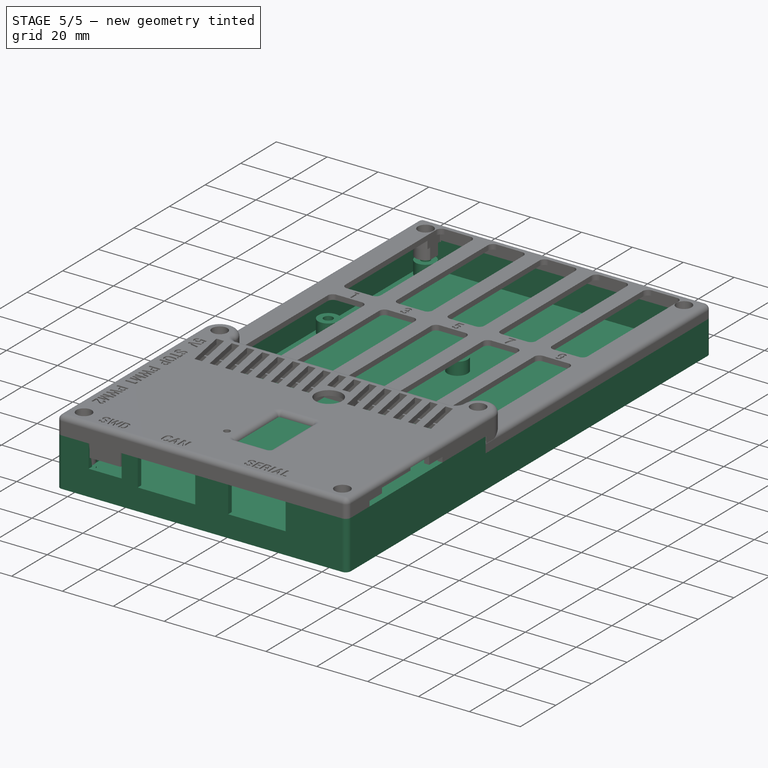
[diagram: stage 5 of 5 — iso view after this stage's code; geometry added in this stage tinted green]
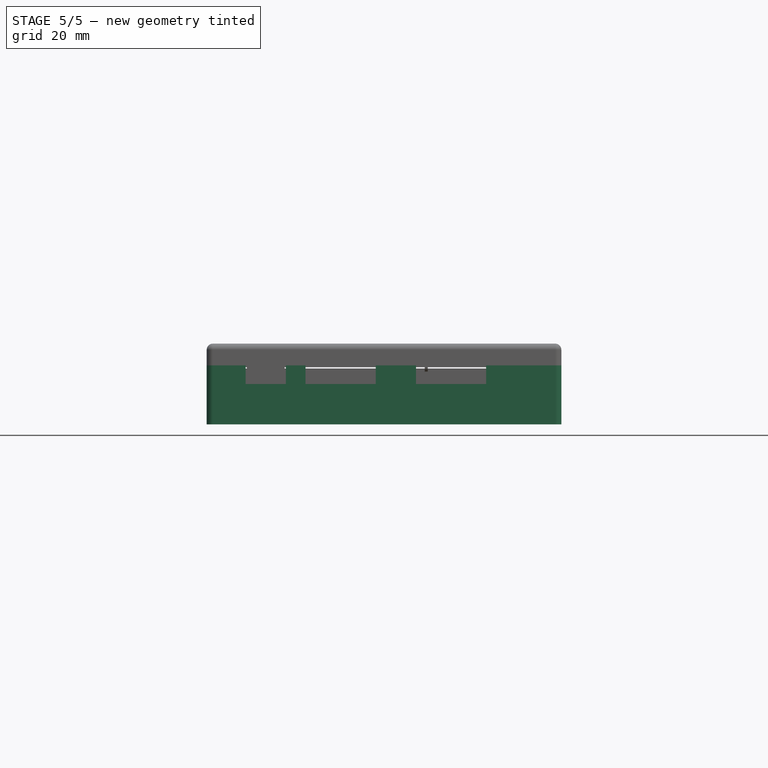
[diagram: stage 5 of 5 — front view after this stage's code; geometry added in this stage tinted green]
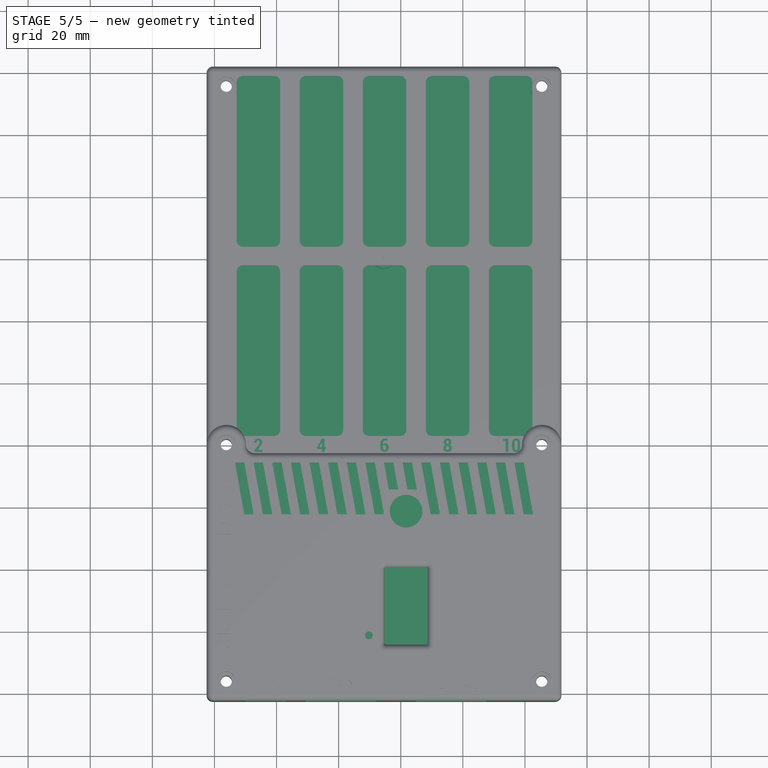
[diagram: stage 5 of 5 — top view after this stage's code; geometry added in this stage tinted green]
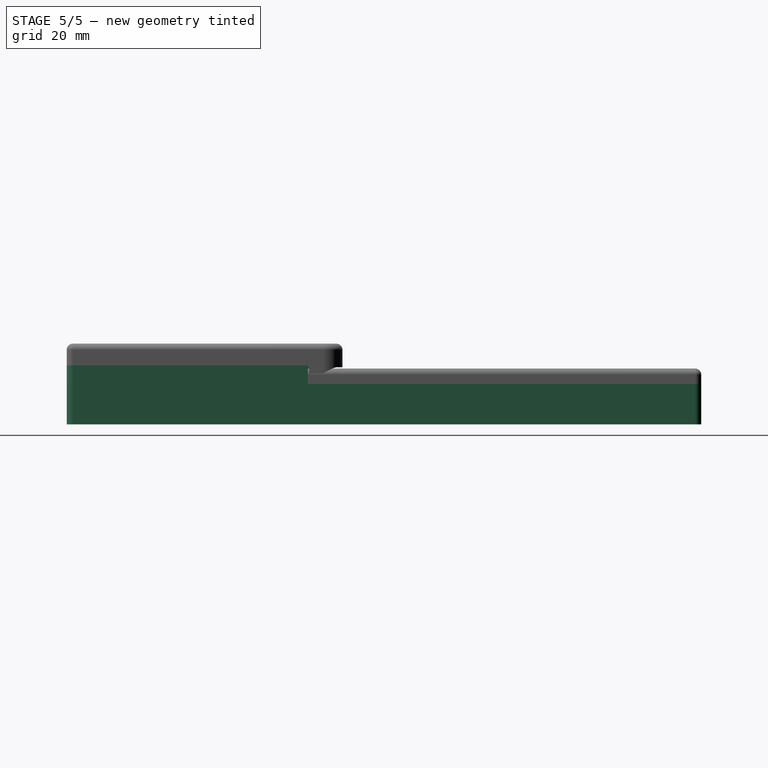
[diagram: stage 5 of 5 — right view after this stage's code; geometry added in this stage tinted green]
FEATURE [Sketcher::SketchObject] Sketch  label="Sketch_pcb"
  ArcFitTolerance = 1e-06
  AttachmentSupport = -> [XY_Plane]
  FullyConstrained = true
  MakeInternals = false
  MapMode = 5
  sketch-geometry (13):
    g0: LineSegment [constr] StartX=0 StartY=0 StartZ=0 EndX=109.22 EndY=0 EndZ=0
    g1: LineSegment [constr] StartX=109.22 StartY=0 StartZ=0 EndX=109.22 EndY=199.39 EndZ=0
    g2: LineSegment [constr] StartX=109.22 StartY=199.39 StartZ=0 EndX=0 EndY=199.39 EndZ=0
    g3: LineSegment [constr] StartX=0 StartY=199.39 StartZ=0 EndX=0 EndY=0 EndZ=0
    g4: Circle [constr] CenterX=3.81 CenterY=195.58 CenterZ=0 NormalX=0 NormalY=0 NormalZ=1 AngleXU=0 Radius=1.8
    g5: Circle [constr] CenterX=3.81 CenterY=140.97 CenterZ=0 NormalX=0 NormalY=0 NormalZ=1 AngleXU=0 Radius=1.8
    g6: Circle [constr] CenterX=3.81 CenterY=80.01 CenterZ=0 NormalX=0 NormalY=0 NormalZ=1 AngleXU=0 Radius=1.8
    g7: Circle [constr] CenterX=3.81 CenterY=3.81 CenterZ=0 NormalX=0 NormalY=0 NormalZ=1 AngleXU=0 Radius=1.8
    g8: Circle [constr] CenterX=105.41 CenterY=3.81 CenterZ=0 NormalX=0 NormalY=0 NormalZ=1 AngleXU=0 Radius=1.8
    g9: Circle [constr] CenterX=105.41 CenterY=80.01 CenterZ=0 NormalX=0 NormalY=0 NormalZ=1 AngleXU=0 Radius=1.8
    g10: Circle [constr] CenterX=105.41 CenterY=140.97 CenterZ=0 NormalX=0 NormalY=0 NormalZ=1 AngleXU=0 Radius=1.8
    g11: Circle [constr] CenterX=105.41 CenterY=195.58 CenterZ=0 NormalX=0 NormalY=0 NormalZ=1 AngleXU=0 Radius=1.8
    g12: Circle [constr] CenterX=54.61 CenterY=140.97 CenterZ=0 NormalX=0 NormalY=0 NormalZ=1 AngleXU=0 Radius=1.8
  constraints (38):
    c: Coincident(g0,g1)
    c: Coincident(g1,g2)
    c: Coincident(g2,g3)
    c: Coincident(g3,g0)
    c: Horizontal(g0)
    c: Horizontal(g2)
    c: Vertical(g1)
    c: Vertical(g3)
    c: Distance(g1,g3) = 109.22
    c: Distance(g0,g2) = 199.39
    c: Coincident(g0,g-1)
    c: Equal(g4,g5)
    c: Equal(g5,g6)
    c: Equal(g6,g7)
    c: Equal(g7,g8)
    c: Equal(g8,g9)
    c: Equal(g9,g10)
    c: Equal(g10,g11)
    c: Equal(g11,g12)
    c: Diameter(g4) = 3.6
    c: DistanceX(g7) = 3.81
    c: DistanceY(g7) = 3.81
    c: DistanceY(g7,g8) = 0
    c: DistanceX(g7,g6) = 0
    c: DistanceX(g6,g5) = 0
    c: DistanceX(g5,g4) = 0
    c: DistanceY(g6) = 80.01
    c: DistanceY(g5) = 140.97
    c: DistanceY(g4) = 195.58
    c: DistanceX(g8) = 105.41
    c: DistanceX(g9,g8) = 0
    c: DistanceX(g10,g9) = 0
    c: DistanceX(g11,g10) = 0
    c: DistanceY(g11,g4) = 0
    c: DistanceY(g5,g12) = 0
    c: DistanceY(g12,g10) = 0
    c: DistanceY(g6,g9) = 0
    c: DistanceX(g12) = 54.61
FEATURE [Sketcher::SketchObject] Sketch001
  ArcFitTolerance = 1e-06
  AttachmentSupport = -> [XY_Plane]
  FullyConstrained = true
  MakeInternals = false
  MapMode = 5
  expr: Constraints[19] = Sketch.Constraints[19]
  expr: Constraints[20] = Sketch.Constraints[20]
  expr: Constraints[21] = Sketch.Constraints[21]
  expr: Constraints[22] = Sketch.Constraints[22]
  expr: Constraints[23] = Sketch.Constraints[23]
  expr: Constraints[24] = Sketch.Constraints[24]
  expr: Constraints[25] = Sketch.Constraints[25]
  expr: Constraints[26] = Sketch.Constraints[26]
  expr: Constraints[27] = Sketch.Constraints[27]
  expr: Constraints[28] = Sketch.Constraints[28]
  expr: Constraints[29] = Sketch.Constraints[29]
  expr: Constraints[30] = Sketch.Constraints[30]
  expr: Constraints[31] = Sketch.Constraints[31]
  expr: Constraints[32] = Sketch.Constraints[32]
  expr: Constraints[33] = Sketch.Constraints[33]
  expr: Constraints[34] = Sketch.Constraints[34]
  expr: Constraints[35] = Sketch.Constraints[35]
  expr: Constraints[36] = Sketch.Constraints[36]
  expr: Constraints[37] = Sketch.Constraints[37]
  expr: Constraints[8] = Sketch.Constraints[8]
  expr: Constraints[9] = Sketch.Constraints[9]
  sketch-geometry (21):
    g0: LineSegment [constr] StartX=0 StartY=0 StartZ=0 EndX=109.22 EndY=0 EndZ=0
    g1: LineSegment [constr] StartX=109.22 StartY=0 StartZ=0 EndX=109.22 EndY=199.39 EndZ=0
    g2: LineSegment [constr] StartX=109.22 StartY=199.39 StartZ=0 EndX=0 EndY=199.39 EndZ=0
    g3: LineSegment [constr] StartX=0 StartY=199.39 StartZ=0 EndX=0 EndY=0 EndZ=0
    g4: Circle [constr] CenterX=3.81 CenterY=195.58 CenterZ=0 NormalX=0 NormalY=0 NormalZ=1 AngleXU=0 Radius=1.8
    g5: Circle [constr] CenterX=3.81 CenterY=140.97 CenterZ=0 NormalX=0 NormalY=0 NormalZ=1 AngleXU=0 Radius=1.8
    g6: Circle [constr] CenterX=3.81 CenterY=80.01 CenterZ=0 NormalX=0 NormalY=0 NormalZ=1 AngleXU=0 Radius=1.8
    g7: Circle [constr] CenterX=3.81 CenterY=3.81 CenterZ=0 NormalX=0 NormalY=0 NormalZ=1 AngleXU=0 Radius=1.8
    g8: Circle [constr] CenterX=105.41 CenterY=3.81 CenterZ=0 NormalX=0 NormalY=0 NormalZ=1 AngleXU=0 Radius=1.8
    g9: Circle [constr] CenterX=105.41 CenterY=80.01 CenterZ=0 NormalX=0 NormalY=0 NormalZ=1 AngleXU=0 Radius=1.8
    g10: Circle [constr] CenterX=105.41 CenterY=140.97 CenterZ=0 NormalX=0 NormalY=0 NormalZ=1 AngleXU=0 Radius=1.8
    g11: Circle [constr] CenterX=105.41 CenterY=195.58 CenterZ=0 NormalX=0 NormalY=0 NormalZ=1 AngleXU=0 Radius=1.8
    g12: Circle [constr] CenterX=54.61 CenterY=140.97 CenterZ=0 NormalX=0 NormalY=0 NormalZ=1 AngleXU=0 Radius=1.8
    g13: LineSegment [constr] StartX=-0.5 StartY=-0.5 StartZ=0 EndX=109.72 EndY=-0.5 EndZ=0
    g14: LineSegment [constr] StartX=109.72 StartY=-0.5 StartZ=0 EndX=109.72 EndY=199.89 EndZ=0
    g15: LineSegment [constr] StartX=109.72 StartY=199.89 StartZ=0 EndX=-0.5 EndY=199.89 EndZ=0
    g16: LineSegment [constr] StartX=-0.5 StartY=199.89 StartZ=0 EndX=-0.5 EndY=-0.5 EndZ=0
    g17: LineSegment StartX=-2.5 StartY=-2.5 StartZ=0 EndX=111.72 EndY=-2.5 EndZ=0
    g18: LineSegment StartX=111.72 StartY=-2.5 StartZ=0 EndX=111.72 EndY=201.89 EndZ=0
    g19: LineSegment StartX=111.72 StartY=201.89 StartZ=0 EndX=-2.5 EndY=201.89 EndZ=0
    g20: LineSegment StartX=-2.5 StartY=201.89 StartZ=0 EndX=-2.5 EndY=-2.5 EndZ=0
  constraints (62):
    c: Coincident(g0,g1)
    c: Coincident(g1,g2)
    c: Coincident(g2,g3)
    c: Coincident(g3,g0)
    c: Horizontal(g0)
    c: Horizontal(g2)
    c: Vertical(g1)
    c: Vertical(g3)
    c: Distance(g1,g3) = 109.22
    c: Distance(g0,g2) = 199.39
    c: Coincident(g0,g-1)
    c: Equal(g4,g5)
    c: Equal(g5,g6)
    c: Equal(g6,g7)
    c: Equal(g7,g8)
    c: Equal(g8,g9)
    c: Equal(g9,g10)
    c: Equal(g10,g11)
    c: Equal(g11,g12)
    c: Diameter(g4) = 3.6
    c: DistanceX(g7) = 3.81
    c: DistanceY(g7) = 3.81
    c: DistanceY(g7,g8) = 0
    c: DistanceX(g7,g6) = 0
    c: DistanceX(g6,g5) = 0
    c: DistanceX(g5,g4) = 0
    c: DistanceY(g6) = 80.01
    c: DistanceY(g5) = 140.97
    c: DistanceY(g4) = 195.58
    c: DistanceX(g8) = 105.41
    c: DistanceX(g9,g8) = 0
    c: DistanceX(g10,g9) = 0
    c: DistanceX(g11,g10) = 0
    c: DistanceY(g11,g4) = 0
    c: DistanceY(g5,g12) = 0
    c: DistanceY(g12,g10) = 0
    c: DistanceY(g6,g9) = 0
    c: DistanceX(g12) = 54.61
    c: Coincident(g13,g14)
    c: Coincident(g14,g15)
    c: Coincident(g15,g16)
    c: Coincident(g16,g13)
    c: Horizontal(g13)
    c: Horizontal(g15)
    c: Vertical(g14)
    c: Vertical(g16)
    c: Coincident(g17,g18)
    c: Coincident(g18,g19)
    c: Coincident(g19,g20)
    c: Coincident(g20,g17)
    c: Horizontal(g17)
    c: Horizontal(g19)
    c: Vertical(g18)
    c: Vertical(g20)
    c: DistanceX(g13,g0) = 0.5
    c: DistanceY(g13) = -0.5
    c: DistanceX(g1,g14) = 0.5
    c: DistanceY(g1,g14) = 0.5
    c: DistanceX(g14,g18) = 2
    c: DistanceY(g14,g18) = 2
    c: DistanceX(g17,g13) = 2
    c: DistanceY(g17,g13) = 2
FEATURE [PartDesign::Pad] Pad
  Direction = (0,0,1)
  Length = 2
  Length2 = 10
  Profile = -> Sketch001
  ReferenceAxis = -> Sketch001 [N_Axis]
  Refine = true
  Suppressed = false
  Type = 0
FEATURE [Sketcher::SketchObject] Sketch002
  ArcFitTolerance = 1e-06
  AttachmentSupport = -> [Pad]
  FullyConstrained = true
  MakeInternals = false
  MapMode = 5
  Placement = pos=(0,0,2) rot=(0,0,1;0rad)
  expr: Constraints[19] = Sketch001.Constraints[19]
  expr: Constraints[20] = Sketch001.Constraints[20]
  expr: Constraints[21] = Sketch001.Constraints[21]
  expr: Constraints[22] = Sketch001.Constraints[22]
  expr: Constraints[23] = Sketch001.Constraints[23]
  expr: Constraints[24] = Sketch001.Constraints[24]
  expr: Constraints[25] = Sketch001.Constraints[25]
  expr: Constraints[26] = Sketch001.Constraints[26]
  expr: Constraints[27] = Sketch001.Constraints[27]
  expr: Constraints[28] = Sketch001.Constraints[28]
  expr: Constraints[29] = Sketch001.Constraints[29]
  expr: Constraints[30] = Sketch001.Constraints[30]
  expr: Constraints[31] = Sketch001.Constraints[31]
  expr: Constraints[32] = Sketch001.Constraints[32]
  expr: Constraints[33] = Sketch001.Constraints[33]
  expr: Constraints[34] = Sketch001.Constraints[34]
  expr: Constraints[35] = Sketch001.Constraints[35]
  expr: Constraints[36] = Sketch001.Constraints[36]
  expr: Constraints[37] = Sketch001.Constraints[37]
  expr: Constraints[54] = Sketch001.Constraints[54]
  expr: Constraints[55] = Sketch001.Constraints[55]
  expr: Constraints[56] = Sketch001.Constraints[56]
  expr: Constraints[57] = Sketch001.Constraints[57]
  expr: Constraints[58] = Sketch001.Constraints[58]
  expr: Constraints[59] = Sketch001.Constraints[59]
  expr: Constraints[60] = Sketch001.Constraints[60]
  expr: Constraints[61] = Sketch001.Constraints[61]
  expr: Constraints[8] = Sketch001.Constraints[8]
  expr: Constraints[9] = Sketch001.Constraints[9]
  sketch-geometry (21):
    g0: LineSegment [constr] StartX=0 StartY=0 StartZ=0 EndX=109.22 EndY=0 EndZ=0
    g1: LineSegment [constr] StartX=109.22 StartY=0 StartZ=0 EndX=109.22 EndY=199.39 EndZ=0
    g2: LineSegment [constr] StartX=109.22 StartY=199.39 StartZ=0 EndX=0 EndY=199.39 EndZ=0
    g3: LineSegment [constr] StartX=0 StartY=199.39 StartZ=0 EndX=0 EndY=0 EndZ=0
    g4: Circle [constr] CenterX=3.81 CenterY=195.58 CenterZ=0 NormalX=0 NormalY=0 NormalZ=1 AngleXU=0 Radius=1.8
    g5: Circle [constr] CenterX=3.81 CenterY=140.97 CenterZ=0 NormalX=0 NormalY=0 NormalZ=1 AngleXU=0 Radius=1.8
    g6: Circle [constr] CenterX=3.81 CenterY=80.01 CenterZ=0 NormalX=0 NormalY=0 NormalZ=1 AngleXU=0 Radius=1.8
    g7: Circle [constr] CenterX=3.81 CenterY=3.81 CenterZ=0 NormalX=0 NormalY=0 NormalZ=1 AngleXU=0 Radius=1.8
    g8: Circle [constr] CenterX=105.41 CenterY=3.81 CenterZ=0 NormalX=0 NormalY=0 NormalZ=1 AngleXU=0 Radius=1.8
    g9: Circle [constr] CenterX=105.41 CenterY=80.01 CenterZ=0 NormalX=0 NormalY=0 NormalZ=1 AngleXU=0 Radius=1.8
    g10: Circle [constr] CenterX=105.41 CenterY=140.97 CenterZ=0 NormalX=0 NormalY=0 NormalZ=1 AngleXU=0 Radius=1.8
    g11: Circle [constr] CenterX=105.41 CenterY=195.58 CenterZ=0 NormalX=0 NormalY=0 NormalZ=1 AngleXU=0 Radius=1.8
    g12: Circle [constr] CenterX=54.61 CenterY=140.97 CenterZ=0 NormalX=0 NormalY=0 NormalZ=1 AngleXU=0 Radius=1.8
    g13: LineSegment StartX=-0.5 StartY=-0.5 StartZ=0 EndX=109.72 EndY=-0.5 EndZ=0
    g14: LineSegment StartX=109.72 StartY=-0.5 StartZ=0 EndX=109.72 EndY=199.89 EndZ=0
    g15: LineSegment StartX=109.72 StartY=199.89 StartZ=0 EndX=-0.5 EndY=199.89 EndZ=0
    g16: LineSegment StartX=-0.5 StartY=199.89 StartZ=0 EndX=-0.5 EndY=-0.5 EndZ=0
    g17: LineSegment StartX=-2.5 StartY=-2.5 StartZ=0 EndX=111.72 EndY=-2.5 EndZ=0
    g18: LineSegment StartX=111.72 StartY=-2.5 StartZ=0 EndX=111.72 EndY=201.89 EndZ=0
    g19: LineSegment StartX=111.72 StartY=201.89 StartZ=0 EndX=-2.5 EndY=201.89 EndZ=0
    g20: LineSegment StartX=-2.5 StartY=201.89 StartZ=0 EndX=-2.5 EndY=-2.5 EndZ=0
  constraints (62):
    c: Coincident(g0,g1)
    c: Coincident(g1,g2)
    c: Coincident(g2,g3)
    c: Coincident(g3,g0)
    c: Horizontal(g0)
    c: Horizontal(g2)
    c: Vertical(g1)
    c: Vertical(g3)
    c: Distance(g1,g3) = 109.22
    c: Distance(g0,g2) = 199.39
    c: Coincident(g0,g-1)
    c: Equal(g4,g5)
    c: Equal(g5,g6)
    c: Equal(g6,g7)
    c: Equal(g7,g8)
    c: Equal(g8,g9)
    c: Equal(g9,g10)
    c: Equal(g10,g11)
    c: Equal(g11,g12)
    c: Diameter(g4) = 3.6
    c: DistanceX(g7) = 3.81
    c: DistanceY(g7) = 3.81
    c: DistanceY(g7,g8) = 0
    c: DistanceX(g7,g6) = 0
    c: DistanceX(g6,g5) = 0
    c: DistanceX(g5,g4) = 0
    c: DistanceY(g6) = 80.01
    c: DistanceY(g5) = 140.97
    c: DistanceY(g4) = 195.58
    c: DistanceX(g8) = 105.41
    c: DistanceX(g9,g8) = 0
    c: DistanceX(g10,g9) = 0
    c: DistanceX(g11,g10) = 0
    c: DistanceY(g11,g4) = 0
    c: DistanceY(g5,g12) = 0
    c: DistanceY(g12,g10) = 0
    c: DistanceY(g6,g9) = 0
    c: DistanceX(g12) = 54.61
    c: Coincident(g13,g14)
    c: Coincident(g14,g15)
    c: Coincident(g15,g16)
    c: Coincident(g16,g13)
    c: Horizontal(g13)
    c: Horizontal(g15)
    c: Vertical(g14)
    c: Vertical(g16)
    c: Coincident(g17,g18)
    c: Coincident(g18,g19)
    c: Coincident(g19,g20)
    c: Coincident(g20,g17)
    c: Horizontal(g17)
    c: Horizontal(g19)
    c: Vertical(g18)
    c: Vertical(g20)
    c: DistanceX(g13,g0) = 0.5
    c: DistanceY(g13) = -0.5
    c: DistanceX(g1,g14) = 0.5
    c: DistanceY(g1,g14) = 0.5
    c: DistanceX(g14,g18) = 2
    c: DistanceY(g14,g18) = 2
    c: DistanceX(g17,g13) = 2
    c: DistanceY(g17,g13) = 2
FEATURE [PartDesign::Pad] Pad001
  BaseFeature = -> Pad
  Direction = (0,0,1)
  Length = 17
  Length2 = 10
  Profile = -> Sketch002
  ReferenceAxis = -> Sketch002 [N_Axis]
  Refine = true
  Suppressed = false
  Type = 0
FEATURE [Sketcher::SketchObject] Sketch003
  ArcFitTolerance = 1e-06
  AttachmentSupport = -> [Pad001]
  FullyConstrained = true
  MakeInternals = false
  MapMode = 5
  Placement = pos=(0,0,2) rot=(0,0,1;0rad)
  expr: Constraints[19] = Sketch.Constraints[19]
  expr: Constraints[20] = Sketch.Constraints[20]
  expr: Constraints[21] = Sketch.Constraints[21]
  expr: Constraints[22] = Sketch.Constraints[22]
  expr: Constraints[23] = Sketch.Constraints[23]
  expr: Constraints[24] = Sketch.Constraints[24]
  expr: Constraints[25] = Sketch.Constraints[25]
  expr: Constraints[26] = Sketch.Constraints[26]
  expr: Constraints[27] = Sketch.Constraints[27]
  expr: Constraints[28] = Sketch.Constraints[28]
  expr: Constraints[29] = Sketch.Constraints[29]
  expr: Constraints[30] = Sketch.Constraints[30]
  expr: Constraints[31] = Sketch.Constraints[31]
  expr: Constraints[32] = Sketch.Constraints[32]
  expr: Constraints[33] = Sketch.Constraints[33]
  expr: Constraints[34] = Sketch.Constraints[34]
  expr: Constraints[35] = Sketch.Constraints[35]
  expr: Constraints[36] = Sketch.Constraints[36]
  expr: Constraints[37] = Sketch.Constraints[37]
  expr: Constraints[46] = Sketch.Constraints[8]
  expr: Constraints[47] = Sketch.Constraints[9]
  expr: Constraints[57] = Sketch.Constraints[19]
  expr: Constraints[58] = Sketch.Constraints[20]
  expr: Constraints[59] = Sketch.Constraints[21]
  expr: Constraints[60] = Sketch.Constraints[22]
  expr: Constraints[61] = Sketch.Constraints[23]
  expr: Constraints[62] = Sketch.Constraints[24]
  expr: Constraints[63] = Sketch.Constraints[25]
  expr: Constraints[64] = Sketch.Constraints[26]
  expr: Constraints[65] = Sketch.Constraints[27]
  expr: Constraints[66] = Sketch.Constraints[28]
  expr: Constraints[67] = Sketch.Constraints[29]
  expr: Constraints[68] = Sketch.Constraints[30]
  expr: Constraints[69] = Sketch.Constraints[31]
  expr: Constraints[70] = Sketch.Constraints[32]
  expr: Constraints[71] = Sketch.Constraints[33]
  expr: Constraints[72] = Sketch.Constraints[34]
  expr: Constraints[73] = Sketch.Constraints[35]
  expr: Constraints[74] = Sketch.Constraints[36]
  expr: Constraints[75] = Sketch.Constraints[37]
  expr: Constraints[8] = Sketch.Constraints[8]
  expr: Constraints[9] = Sketch.Constraints[9]
  sketch-geometry (35):
    g0: LineSegment [constr] StartX=0 StartY=0 StartZ=0 EndX=109.22 EndY=0 EndZ=0
    g1: LineSegment [constr] StartX=109.22 StartY=0 StartZ=0 EndX=109.22 EndY=199.39 EndZ=0
    g2: LineSegment [constr] StartX=109.22 StartY=199.39 StartZ=0 EndX=0 EndY=199.39 EndZ=0
    g3: LineSegment [constr] StartX=0 StartY=199.39 StartZ=0 EndX=0 EndY=0 EndZ=0
    g4: Circle [constr] CenterX=3.81 CenterY=195.58 CenterZ=0 NormalX=0 NormalY=0 NormalZ=1 AngleXU=0 Radius=1.8
    g5: Circle [constr] CenterX=3.81 CenterY=140.97 CenterZ=0 NormalX=0 NormalY=0 NormalZ=1 AngleXU=0 Radius=1.8
    g6: Circle [constr] CenterX=3.81 CenterY=80.01 CenterZ=0 NormalX=0 NormalY=0 NormalZ=1 AngleXU=0 Radius=1.8
    g7: Circle [constr] CenterX=3.81 CenterY=3.81 CenterZ=0 NormalX=0 NormalY=0 NormalZ=1 AngleXU=0 Radius=1.8
    g8: Circle [constr] CenterX=105.41 CenterY=3.81 CenterZ=0 NormalX=0 NormalY=0 NormalZ=1 AngleXU=0 Radius=1.8
    g9: Circle [constr] CenterX=105.41 CenterY=80.01 CenterZ=0 NormalX=0 NormalY=0 NormalZ=1 AngleXU=0 Radius=1.8
    g10: Circle [constr] CenterX=105.41 CenterY=140.97 CenterZ=0 NormalX=0 NormalY=0 NormalZ=1 AngleXU=0 Radius=1.8
    g11: Circle [constr] CenterX=105.41 CenterY=195.58 CenterZ=0 NormalX=0 NormalY=0 NormalZ=1 AngleXU=0 Radius=1.8
    g12: Circle [constr] CenterX=54.61 CenterY=140.97 CenterZ=0 NormalX=0 NormalY=0 NormalZ=1 AngleXU=0 Radius=1.8
    g13: LineSegment [constr] StartX=0 StartY=0 StartZ=0 EndX=109.22 EndY=0 EndZ=0
    g14: LineSegment [constr] StartX=109.22 StartY=0 StartZ=0 EndX=109.22 EndY=199.39 EndZ=0
    g15: LineSegment [constr] StartX=109.22 StartY=199.39 StartZ=0 EndX=0 EndY=199.39 EndZ=0
    g16: LineSegment [constr] StartX=0 StartY=199.39 StartZ=0 EndX=0 EndY=0 EndZ=0
    g17: Circle [constr] CenterX=3.81 CenterY=195.58 CenterZ=0 NormalX=0 NormalY=0 NormalZ=1 AngleXU=0 Radius=1.8
    g18: Circle [constr] CenterX=3.81 CenterY=140.97 CenterZ=0 NormalX=0 NormalY=0 NormalZ=1 AngleXU=0 Radius=1.8
    g19: Circle [constr] CenterX=3.81 CenterY=80.01 CenterZ=0 NormalX=0 NormalY=0 NormalZ=1 AngleXU=0 Radius=1.8
    g20: Circle [constr] CenterX=3.81 CenterY=3.81 CenterZ=0 NormalX=0 NormalY=0 NormalZ=1 AngleXU=0 Radius=1.8
    g21: Circle [constr] CenterX=105.41 CenterY=3.81 CenterZ=0 NormalX=0 NormalY=0 NormalZ=1 AngleXU=0 Radius=1.8
    g22: Circle [constr] CenterX=105.41 CenterY=80.01 CenterZ=0 NormalX=0 NormalY=0 NormalZ=1 AngleXU=0 Radius=1.8
    g23: Circle [constr] CenterX=105.41 CenterY=140.97 CenterZ=0 NormalX=0 NormalY=0 NormalZ=1 AngleXU=0 Radius=1.8
    g24: Circle [constr] CenterX=105.41 CenterY=195.58 CenterZ=0 NormalX=0 NormalY=0 NormalZ=1 AngleXU=0 Radius=1.8
    g25: Circle [constr] CenterX=54.61 CenterY=140.97 CenterZ=0 NormalX=0 NormalY=0 NormalZ=1 AngleXU=0 Radius=1.8
    g26: Circle CenterX=3.81 CenterY=3.81 CenterZ=0 NormalX=0 NormalY=0 NormalZ=1 AngleXU=0 Radius=4
    g27: Circle CenterX=105.41 CenterY=3.81 CenterZ=0 NormalX=0 NormalY=0 NormalZ=1 AngleXU=0 Radius=4
    g28: Circle CenterX=105.41 CenterY=80.01 CenterZ=0 NormalX=0 NormalY=0 NormalZ=1 AngleXU=0 Radius=4
    g29: Circle CenterX=3.81 CenterY=80.01 CenterZ=0 NormalX=0 NormalY=0 NormalZ=1 AngleXU=0 Radius=4
    g30: Circle CenterX=3.81 CenterY=140.97 CenterZ=0 NormalX=0 NormalY=0 NormalZ=1 AngleXU=0 Radius=4
    g31: Circle CenterX=54.61 CenterY=140.97 CenterZ=0 NormalX=0 NormalY=0 NormalZ=1 AngleXU=0 Radius=4
    g32: Circle CenterX=105.41 CenterY=140.97 CenterZ=0 NormalX=0 NormalY=0 NormalZ=1 AngleXU=0 Radius=4
    g33: Circle CenterX=105.41 CenterY=195.58 CenterZ=0 NormalX=0 NormalY=0 NormalZ=1 AngleXU=0 Radius=4
    g34: Circle CenterX=3.81 CenterY=195.58 CenterZ=0 NormalX=0 NormalY=0 NormalZ=1 AngleXU=0 Radius=4
  constraints (94):
    c: Coincident(g0,g1)
    c: Coincident(g1,g2)
    c: Coincident(g2,g3)
    c: Coincident(g3,g0)
    c: Horizontal(g0)
    c: Horizontal(g2)
    c: Vertical(g1)
    c: Vertical(g3)
    c: Distance(g1,g3) = 109.22
    c: Distance(g0,g2) = 199.39
    c: Coincident(g0,g-1)
    c: Equal(g4,g5)
    c: Equal(g5,g6)
    c: Equal(g6,g7)
    c: Equal(g7,g8)
    c: Equal(g8,g9)
    c: Equal(g9,g10)
    c: Equal(g10,g11)
    c: Equal(g11,g12)
    c: Diameter(g4) = 3.6
    c: DistanceX(g7) = 3.81
    c: DistanceY(g7) = 3.81
    c: DistanceY(g7,g8) = 0
    c: DistanceX(g7,g6) = 0
    c: DistanceX(g6,g5) = 0
    c: DistanceX(g5,g4) = 0
    c: DistanceY(g6) = 80.01
    c: DistanceY(g5) = 140.97
    c: DistanceY(g4) = 195.58
    c: DistanceX(g8) = 105.41
    c: DistanceX(g9,g8) = 0
    c: DistanceX(g10,g9) = 0
    c: DistanceX(g11,g10) = 0
    c: DistanceY(g11,g4) = 0
    c: DistanceY(g5,g12) = 0
    c: DistanceY(g12,g10) = 0
    c: DistanceY(g6,g9) = 0
    c: DistanceX(g12) = 54.61
    c: Coincident(g13,g14)
    c: Coincident(g14,g15)
    c: Coincident(g15,g16)
    c: Coincident(g16,g13)
    c: Horizontal(g13)
    c: Horizontal(g15)
    c: Vertical(g14)
    c: Vertical(g16)
    c: Distance(g14,g16) = 109.22
    c: Distance(g13,g15) = 199.39
    c: Coincident(g13,g-1)
    c: Equal(g17,g18)
    c: Equal(g18,g19)
    c: Equal(g19,g20)
    c: Equal(g20,g21)
    c: Equal(g21,g22)
    c: Equal(g22,g23)
    c: Equal(g23,g24)
    c: Equal(g24,g25)
    c: Diameter(g17) = 3.6
    c: DistanceX(g20) = 3.81
    c: DistanceY(g20) = 3.81
    c: DistanceY(g20,g21) = 0
    c: DistanceX(g20,g19) = 0
    c: DistanceX(g19,g18) = 0
    c: DistanceX(g18,g17) = 0
    c: DistanceY(g19) = 80.01
    c: DistanceY(g18) = 140.97
    c: DistanceY(g17) = 195.58
    c: DistanceX(g21) = 105.41
    c: DistanceX(g22,g21) = 0
    c: DistanceX(g23,g22) = 0
    c: DistanceX(g24,g23) = 0
    c: DistanceY(g24,g17) = 0
    c: DistanceY(g18,g25) = 0
    c: DistanceY(g25,g23) = 0
    c: DistanceY(g19,g22) = 0
    c: DistanceX(g25) = 54.61
    c: Diameter(g26) = 8
    c: Coincident(g26,g7)
    c: Coincident(g27,g8)
    c: Coincident(g28,g9)
    c: Coincident(g29,g6)
    c: Coincident(g30,g5)
    c: Coincident(g31,g12)
    c: Coincident(g32,g10)
    c: Coincident(g33,g11)
    c: Coincident(g34,g4)
    c: Equal(g33,g34)
    c: Equal(g34,g30)
    c: Equal(g30,g31)
    c: Equal(g31,g32)
    c: Equal(g32,g29)
    c: Equal(g29,g28)
    c: Equal(g28,g27)
    c: Equal(g27,g26)
FEATURE [PartDesign::Pad] Pad002
  BaseFeature = -> Pad001
  Direction = (0,0,1)
  Length = 5
  Length2 = 10
  Profile = -> Sketch003
  ReferenceAxis = -> Sketch003 [N_Axis]
  Refine = true
  Suppressed = false
  Type = 0
FEATURE [Sketcher::SketchObject] Sketch004
  ArcFitTolerance = 1e-06
  AttachmentSupport = -> [Pad002]
  FullyConstrained = true
  MakeInternals = false
  MapMode = 5
  Placement = pos=(0,0,7) rot=(0,0,1;0rad)
  expr: Constraints[19] = Sketch.Constraints[19]
  expr: Constraints[20] = Sketch.Constraints[20]
  expr: Constraints[21] = Sketch.Constraints[21]
  expr: Constraints[22] = Sketch.Constraints[22]
  expr: Constraints[23] = Sketch.Constraints[23]
  expr: Constraints[24] = Sketch.Constraints[24]
  expr: Constraints[25] = Sketch.Constraints[25]
  expr: Constraints[26] = Sketch.Constraints[26]
  expr: Constraints[27] = Sketch.Constraints[27]
  expr: Constraints[28] = Sketch.Constraints[28]
  expr: Constraints[29] = Sketch.Constraints[29]
  expr: Constraints[30] = Sketch.Constraints[30]
  expr: Constraints[31] = Sketch.Constraints[31]
  expr: Constraints[32] = Sketch.Constraints[32]
  expr: Constraints[33] = Sketch.Constraints[33]
  expr: Constraints[34] = Sketch.Constraints[34]
  expr: Constraints[35] = Sketch.Constraints[35]
  expr: Constraints[36] = Sketch.Constraints[36]
  expr: Constraints[37] = Sketch.Constraints[37]
  expr: Constraints[8] = Sketch.Constraints[8]
  expr: Constraints[9] = Sketch.Constraints[9]
  sketch-geometry (13):
    g0: LineSegment [constr] StartX=0 StartY=0 StartZ=0 EndX=109.22 EndY=0 EndZ=0
    g1: LineSegment [constr] StartX=109.22 StartY=0 StartZ=0 EndX=109.22 EndY=199.39 EndZ=0
    g2: LineSegment [constr] StartX=109.22 StartY=199.39 StartZ=0 EndX=0 EndY=199.39 EndZ=0
    g3: LineSegment [constr] StartX=0 StartY=199.39 StartZ=0 EndX=0 EndY=0 EndZ=0
    g4: Circle CenterX=3.81 CenterY=195.58 CenterZ=0 NormalX=0 NormalY=0 NormalZ=1 AngleXU=0 Radius=1.8
    g5: Circle CenterX=3.81 CenterY=140.97 CenterZ=0 NormalX=0 NormalY=0 NormalZ=1 AngleXU=0 Radius=1.8
    g6: Circle CenterX=3.81 CenterY=80.01 CenterZ=0 NormalX=0 NormalY=0 NormalZ=1 AngleXU=0 Radius=1.8
    g7: Circle CenterX=3.81 CenterY=3.81 CenterZ=0 NormalX=0 NormalY=0 NormalZ=1 AngleXU=0 Radius=1.8
    g8: Circle CenterX=105.41 CenterY=3.81 CenterZ=0 NormalX=0 NormalY=0 NormalZ=1 AngleXU=0 Radius=1.8
    g9: Circle CenterX=105.41 CenterY=80.01 CenterZ=0 NormalX=0 NormalY=0 NormalZ=1 AngleXU=0 Radius=1.8
    g10: Circle CenterX=105.41 CenterY=140.97 CenterZ=0 NormalX=0 NormalY=0 NormalZ=1 AngleXU=0 Radius=1.8
    g11: Circle CenterX=105.41 CenterY=195.58 CenterZ=0 NormalX=0 NormalY=0 NormalZ=1 AngleXU=0 Radius=1.8
    g12: Circle CenterX=54.61 CenterY=140.97 CenterZ=0 NormalX=0 NormalY=0 NormalZ=1 AngleXU=0 Radius=1.8
  constraints (38):
    c: Coincident(g0,g1)
    c: Coincident(g1,g2)
    c: Coincident(g2,g3)
    c: Coincident(g3,g0)
    c: Horizontal(g0)
    c: Horizontal(g2)
    c: Vertical(g1)
    c: Vertical(g3)
    c: Distance(g1,g3) = 109.22
    c: Distance(g0,g2) = 199.39
    c: Coincident(g0,g-1)
    c: Equal(g4,g5)
    c: Equal(g5,g6)
    c: Equal(g6,g7)
    c: Equal(g7,g8)
    c: Equal(g8,g9)
    c: Equal(g9,g10)
    c: Equal(g10,g11)
    c: Equal(g11,g12)
    c: Diameter(g4) = 3.6
    c: DistanceX(g7) = 3.81
    c: DistanceY(g7) = 3.81
    c: DistanceY(g7,g8) = 0
    c: DistanceX(g7,g6) = 0
    c: DistanceX(g6,g5) = 0
    c: DistanceX(g5,g4) = 0
    c: DistanceY(g6) = 80.01
    c: DistanceY(g5) = 140.97
    c: DistanceY(g4) = 195.58
    c: DistanceX(g8) = 105.41
    c: DistanceX(g9,g8) = 0
    c: DistanceX(g10,g9) = 0
    c: DistanceX(g11,g10) = 0
    c: DistanceY(g11,g4) = 0
    c: DistanceY(g5,g12) = 0
    c: DistanceY(g12,g10) = 0
    c: DistanceY(g6,g9) = 0
    c: DistanceX(g12) = 54.61
FEATURE [PartDesign::Pocket] Pocket
  BaseFeature = -> Pad002
  Direction = (0,0,-1)
  Length = 5
  Length2 = 5
  Profile = -> Sketch004
  ReferenceAxis = -> Sketch004 [N_Axis]
  Refine = true
  Suppressed = false
  Type = 1
FEATURE [Sketcher::SketchObject] Sketch005
  ArcFitTolerance = 1e-06
  AttachmentOffset = pos=(0,0,-2) rot=(0,0,1;0rad)
  AttachmentSupport = -> [Pocket]
  FullyConstrained = true
  MakeInternals = false
  MapMode = 5
  expr: Constraints[19] = Sketch.Constraints[19]
  expr: Constraints[20] = Sketch.Constraints[20]
  expr: Constraints[21] = Sketch.Constraints[21]
  expr: Constraints[22] = Sketch.Constraints[22]
  expr: Constraints[23] = Sketch.Constraints[23]
  expr: Constraints[24] = Sketch.Constraints[24]
  expr: Constraints[25] = Sketch.Constraints[25]
  expr: Constraints[26] = Sketch.Constraints[26]
  expr: Constraints[27] = Sketch.Constraints[27]
  expr: Constraints[28] = Sketch.Constraints[28]
  expr: Constraints[29] = Sketch.Constraints[29]
  expr: Constraints[30] = Sketch.Constraints[30]
  expr: Constraints[31] = Sketch.Constraints[31]
  expr: Constraints[32] = Sketch.Constraints[32]
  expr: Constraints[33] = Sketch.Constraints[33]
  expr: Constraints[34] = Sketch.Constraints[34]
  expr: Constraints[35] = Sketch.Constraints[35]
  expr: Constraints[36] = Sketch.Constraints[36]
  expr: Constraints[37] = Sketch.Constraints[37]
  expr: Constraints[8] = Sketch.Constraints[8]
  expr: Constraints[9] = Sketch.Constraints[9]
  sketch-geometry (76):
    g0: LineSegment [constr] StartX=0 StartY=0 StartZ=0 EndX=109.22 EndY=0 EndZ=0
    g1: LineSegment [constr] StartX=109.22 StartY=0 StartZ=0 EndX=109.22 EndY=199.39 EndZ=0
    g2: LineSegment [constr] StartX=109.22 StartY=199.39 StartZ=0 EndX=0 EndY=199.39 EndZ=0
    g3: LineSegment [constr] StartX=0 StartY=199.39 StartZ=0 EndX=0 EndY=0 EndZ=0
    g4: Circle [constr] CenterX=3.81 CenterY=195.58 CenterZ=0 NormalX=0 NormalY=0 NormalZ=1 AngleXU=0 Radius=1.8
    g5: Circle [constr] CenterX=3.81 CenterY=140.97 CenterZ=0 NormalX=0 NormalY=0 NormalZ=1 AngleXU=0 Radius=1.8
    g6: Circle [constr] CenterX=3.81 CenterY=80.01 CenterZ=0 NormalX=0 NormalY=0 NormalZ=1 AngleXU=0 Radius=1.8
    g7: Circle [constr] CenterX=3.81 CenterY=3.81 CenterZ=0 NormalX=0 NormalY=0 NormalZ=1 AngleXU=0 Radius=1.8
    g8: Circle [constr] CenterX=105.41 CenterY=3.81 CenterZ=0 NormalX=0 NormalY=0 NormalZ=1 AngleXU=0 Radius=1.8
    g9: Circle [constr] CenterX=105.41 CenterY=80.01 CenterZ=0 NormalX=0 NormalY=0 NormalZ=1 AngleXU=0 Radius=1.8
    g10: Circle [constr] CenterX=105.41 CenterY=140.97 CenterZ=0 NormalX=0 NormalY=0 NormalZ=1 AngleXU=0 Radius=1.8
    g11: Circle [constr] CenterX=105.41 CenterY=195.58 CenterZ=0 NormalX=0 NormalY=0 NormalZ=1 AngleXU=0 Radius=1.8
    g12: Circle [constr] CenterX=54.61 CenterY=140.97 CenterZ=0 NormalX=0 NormalY=0 NormalZ=1 AngleXU=0 Radius=1.8
    g13: LineSegment StartX=6.735 StartY=193.891 StartZ=0 EndX=6.735 EndY=197.269 EndZ=0
    g14: LineSegment StartX=6.735 StartY=197.269 StartZ=0 EndX=3.81 EndY=198.957 EndZ=0
    g15: LineSegment StartX=3.81 StartY=198.957 StartZ=0 EndX=0.885 EndY=197.269 EndZ=0
    g16: LineSegment StartX=0.885 StartY=197.269 StartZ=0 EndX=0.885 EndY=193.891 EndZ=0
    g17: LineSegment StartX=0.885 StartY=193.891 StartZ=0 EndX=3.81 EndY=192.203 EndZ=0
    g18: LineSegment StartX=3.81 StartY=192.203 StartZ=0 EndX=6.735 EndY=193.891 EndZ=0
    g19: Circle [constr] CenterX=3.81 CenterY=195.58 CenterZ=0 NormalX=0 NormalY=0 NormalZ=1 AngleXU=0 Radius=3.3775
    g20: LineSegment StartX=102.485 StartY=193.891 StartZ=0 EndX=105.41 EndY=192.203 EndZ=0
    g21: LineSegment StartX=105.41 StartY=192.203 StartZ=0 EndX=108.335 EndY=193.891 EndZ=0
    g22: LineSegment StartX=108.335 StartY=193.891 StartZ=0 EndX=108.335 EndY=197.269 EndZ=0
    g23: LineSegment StartX=108.335 StartY=197.269 StartZ=0 EndX=105.41 EndY=198.957 EndZ=0
    g24: LineSegment StartX=105.41 StartY=198.957 StartZ=0 EndX=102.485 EndY=197.269 EndZ=0
    g25: LineSegment StartX=102.485 StartY=197.269 StartZ=0 EndX=102.485 EndY=193.891 EndZ=0
    g26: Circle [constr] CenterX=105.41 CenterY=195.58 CenterZ=0 NormalX=0 NormalY=0 NormalZ=1 AngleXU=0 Radius=3.3775
    g27: LineSegment StartX=6.735 StartY=139.281 StartZ=0 EndX=6.735 EndY=142.659 EndZ=0
    g28: LineSegment StartX=6.735 StartY=142.659 StartZ=0 EndX=3.81 EndY=144.347 EndZ=0
    g29: LineSegment StartX=3.81 StartY=144.347 StartZ=0 EndX=0.885 EndY=142.659 EndZ=0
    g30: LineSegment StartX=0.885 StartY=142.659 StartZ=0 EndX=0.885 EndY=139.281 EndZ=0
    g31: LineSegment StartX=0.885 StartY=139.281 StartZ=0 EndX=3.81 EndY=137.593 EndZ=0
    g32: LineSegment StartX=3.81 StartY=137.593 StartZ=0 EndX=6.735 EndY=139.281 EndZ=0
    g33: Circle [constr] CenterX=3.81 CenterY=140.97 CenterZ=0 NormalX=0 NormalY=0 NormalZ=1 AngleXU=0 Radius=3.3775
    g34: LineSegment StartX=57.535 StartY=139.281 StartZ=0 EndX=57.535 EndY=142.659 EndZ=0
    g35: LineSegment StartX=57.535 StartY=142.659 StartZ=0 EndX=54.61 EndY=144.347 EndZ=0
    g36: LineSegment StartX=54.61 StartY=144.347 StartZ=0 EndX=51.685 EndY=142.659 EndZ=0
    g37: LineSegment StartX=51.685 StartY=142.659 StartZ=0 EndX=51.685 EndY=139.281 EndZ=0
    g38: LineSegment StartX=51.685 StartY=139.281 StartZ=0 EndX=54.61 EndY=137.593 EndZ=0
    g39: LineSegment StartX=54.61 StartY=137.593 StartZ=0 EndX=57.535 EndY=139.281 EndZ=0
    g40: Circle [constr] CenterX=54.61 CenterY=140.97 CenterZ=0 NormalX=0 NormalY=0 NormalZ=1 AngleXU=0 Radius=3.3775
    g41: LineSegment StartX=108.335 StartY=139.281 StartZ=0 EndX=108.335 EndY=142.659 EndZ=0
    g42: LineSegment StartX=108.335 StartY=142.659 StartZ=0 EndX=105.41 EndY=144.347 EndZ=0
    g43: LineSegment StartX=105.41 StartY=144.347 StartZ=0 EndX=102.485 EndY=142.659 EndZ=0
    g44: LineSegment StartX=102.485 StartY=142.659 StartZ=0 EndX=102.485 EndY=139.281 EndZ=0
    g45: LineSegment StartX=102.485 StartY=139.281 StartZ=0 EndX=105.41 EndY=137.593 EndZ=0
    g46: LineSegment StartX=105.41 StartY=137.593 StartZ=0 EndX=108.335 EndY=139.281 EndZ=0
    g47: Circle [constr] CenterX=105.41 CenterY=140.97 CenterZ=0 NormalX=0 NormalY=0 NormalZ=1 AngleXU=0 Radius=3.3775
    g48: LineSegment StartX=6.735 StartY=78.3213 StartZ=0 EndX=6.735 EndY=81.6987 EndZ=0
    g49: LineSegment StartX=6.735 StartY=81.6987 StartZ=0 EndX=3.81 EndY=83.3875 EndZ=0
    g50: LineSegment StartX=3.81 StartY=83.3875 StartZ=0 EndX=0.885 EndY=81.6987 EndZ=0
    g51: LineSegment StartX=0.885 StartY=81.6987 StartZ=0 EndX=0.885 EndY=78.3213 EndZ=0
    g52: LineSegment StartX=0.885 StartY=78.3213 StartZ=0 EndX=3.81 EndY=76.6325 EndZ=0
    g53: LineSegment StartX=3.81 StartY=76.6325 StartZ=0 EndX=6.735 EndY=78.3213 EndZ=0
    g54: Circle [constr] CenterX=3.81 CenterY=80.01 CenterZ=0 NormalX=0 NormalY=0 NormalZ=1 AngleXU=0 Radius=3.3775
    g55: LineSegment StartX=108.335 StartY=78.3213 StartZ=0 EndX=108.335 EndY=81.6987 EndZ=0
    g56: LineSegment StartX=108.335 StartY=81.6987 StartZ=0 EndX=105.41 EndY=83.3875 EndZ=0
    g57: LineSegment StartX=105.41 StartY=83.3875 StartZ=0 EndX=102.485 EndY=81.6987 EndZ=0
    g58: LineSegment StartX=102.485 StartY=81.6987 StartZ=0 EndX=102.485 EndY=78.3213 EndZ=0
    g59: LineSegment StartX=102.485 StartY=78.3213 StartZ=0 EndX=105.41 EndY=76.6325 EndZ=0
    g60: LineSegment StartX=105.41 StartY=76.6325 StartZ=0 EndX=108.335 EndY=78.3213 EndZ=0
    g61: Circle [constr] CenterX=105.41 CenterY=80.01 CenterZ=0 NormalX=0 NormalY=0 NormalZ=1 AngleXU=0 Radius=3.3775
    g62: LineSegment StartX=6.735 StartY=2.12125 StartZ=0 EndX=6.735 EndY=5.49875 EndZ=0
    g63: LineSegment StartX=6.735 StartY=5.49875 StartZ=0 EndX=3.81 EndY=7.1875 EndZ=0
    g64: LineSegment StartX=3.81 StartY=7.1875 StartZ=0 EndX=0.885 EndY=5.49875 EndZ=0
    g65: LineSegment StartX=0.885 StartY=5.49875 StartZ=0 EndX=0.885 EndY=2.12125 EndZ=0
    g66: LineSegment StartX=0.885 StartY=2.12125 StartZ=0 EndX=3.81 EndY=0.432501 EndZ=0
    g67: LineSegment StartX=3.81 StartY=0.432501 StartZ=0 EndX=6.735 EndY=2.12125 EndZ=0
    g68: Circle [constr] CenterX=3.81 CenterY=3.81 CenterZ=0 NormalX=0 NormalY=0 NormalZ=1 AngleXU=0 Radius=3.3775
    g69: LineSegment StartX=102.485 StartY=2.12125 StartZ=0 EndX=105.41 EndY=0.432501 EndZ=0
    g70: LineSegment StartX=105.41 StartY=0.432501 StartZ=0 EndX=108.335 EndY=2.12125 EndZ=0
    g71: LineSegment StartX=108.335 StartY=2.12125 StartZ=0 EndX=108.335 EndY=5.49875 EndZ=0
    g72: LineSegment StartX=108.335 StartY=5.49875 StartZ=0 EndX=105.41 EndY=7.1875 EndZ=0
    g73: LineSegment StartX=105.41 StartY=7.1875 StartZ=0 EndX=102.485 EndY=5.49875 EndZ=0
    g74: LineSegment StartX=102.485 StartY=5.49875 StartZ=0 EndX=102.485 EndY=2.12125 EndZ=0
    g75: Circle [constr] CenterX=105.41 CenterY=3.81 CenterZ=0 NormalX=0 NormalY=0 NormalZ=1 AngleXU=0 Radius=3.3775
  constraints (182):
    c: Coincident(g0,g1)
    c: Coincident(g1,g2)
    c: Coincident(g2,g3)
    c: Coincident(g3,g0)
    c: Horizontal(g0)
    c: Horizontal(g2)
    c: Vertical(g1)
    c: Vertical(g3)
    c: Distance(g1,g3) = 109.22
    c: Distance(g0,g2) = 199.39
    c: Coincident(g0,g-1)
    c: Equal(g4,g5)
    c: Equal(g5,g6)
    c: Equal(g6,g7)
    c: Equal(g7,g8)
    c: Equal(g8,g9)
    c: Equal(g9,g10)
    c: Equal(g10,g11)
    c: Equal(g11,g12)
    c: Diameter(g4) = 3.6
    c: DistanceX(g7) = 3.81
    c: DistanceY(g7) = 3.81
    c: DistanceY(g7,g8) = 0
    c: DistanceX(g7,g6) = 0
    c: DistanceX(g6,g5) = 0
    c: DistanceX(g5,g4) = 0
    c: DistanceY(g6) = 80.01
    c: DistanceY(g5) = 140.97
    c: DistanceY(g4) = 195.58
    c: DistanceX(g8) = 105.41
    c: DistanceX(g9,g8) = 0
    c: DistanceX(g10,g9) = 0
    c: DistanceX(g11,g10) = 0
    c: DistanceY(g11,g4) = 0
    c: DistanceY(g5,g12) = 0
    c: DistanceY(g12,g10) = 0
    c: DistanceY(g6,g9) = 0
    c: DistanceX(g12) = 54.61
    c: Coincident(g13,g14)
    c: Coincident(g14,g15)
    c: Coincident(g15,g16)
    c: Coincident(g16,g17)
    c: Coincident(g17,g18)
    c: Coincident(g18,g13)
    c: Equal(g13, g14-g18) x5
    c: PointOnObject(g13,g19)
    c: PointOnObject(g14,g19)
    c: PointOnObject(g15,g19)
    c: PointOnObject(g16,g19)
    c: PointOnObject(g17,g19)
    c: PointOnObject(g18,g19)
    c: Coincident(g19,g4)
    c: Coincident(g20,g21)
    c: Coincident(g21,g22)
    c: Coincident(g22,g23)
    c: Coincident(g23,g24)
    c: Coincident(g24,g25)
    c: Coincident(g25,g20)
    c: Equal(g20, g21-g25) x5
    c: PointOnObject(g20,g26)
    c: PointOnObject(g21,g26)
    c: PointOnObject(g22,g26)
    c: PointOnObject(g23,g26)
    c: PointOnObject(g24,g26)
    c: PointOnObject(g25,g26)
    c: Coincident(g26,g11)
    c: Coincident(g27,g28)
    c: Coincident(g28,g29)
    c: Coincident(g29,g30)
    c: Coincident(g30,g31)
    c: Coincident(g31,g32)
    c: Coincident(g32,g27)
    c: Equal(g27, g28-g32) x5
    c: PointOnObject(g27,g33)
    c: PointOnObject(g28,g33)
    c: PointOnObject(g29,g33)
    c: PointOnObject(g30,g33)
    c: PointOnObject(g31,g33)
    c: PointOnObject(g32,g33)
    c: Coincident(g33,g5)
    c: Coincident(g34,g35)
    c: Coincident(g35,g36)
    c: Coincident(g36,g37)
    c: Coincident(g37,g38)
    c: Coincident(g38,g39)
    c: Coincident(g39,g34)
    c: Equal(g34, g35-g39) x5
    c: PointOnObject(g34,g40)
    c: PointOnObject(g35,g40)
    c: PointOnObject(g36,g40)
    c: PointOnObject(g37,g40)
    c: PointOnObject(g38,g40)
    c: PointOnObject(g39,g40)
    c: Coincident(g40,g12)
    c: Coincident(g41,g42)
    c: Coincident(g42,g43)
    c: Coincident(g43,g44)
    c: Coincident(g44,g45)
    c: Coincident(g45,g46)
    c: Coincident(g46,g41)
    c: Equal(g41, g42-g46) x5
    c: PointOnObject(g41,g47)
    c: PointOnObject(g42,g47)
    c: PointOnObject(g43,g47)
    c: PointOnObject(g44,g47)
    c: PointOnObject(g45,g47)
    c: PointOnObject(g46,g47)
    c: Coincident(g47,g10)
    c: Coincident(g48,g49)
    c: Coincident(g49,g50)
    c: Coincident(g50,g51)
    c: Coincident(g51,g52)
    c: Coincident(g52,g53)
    c: Coincident(g53,g48)
    c: Equal(g48, g49-g53) x5
    c: PointOnObject(g48,g54)
    c: PointOnObject(g49,g54)
    c: PointOnObject(g50,g54)
    c: PointOnObject(g51,g54)
    c: PointOnObject(g52,g54)
    c: PointOnObject(g53,g54)
    c: Coincident(g54,g6)
    c: Coincident(g55,g56)
    c: Coincident(g56,g57)
    c: Coincident(g57,g58)
    c: Coincident(g58,g59)
    c: Coincident(g59,g60)
    c: Coincident(g60,g55)
    c: Equal(g55, g56-g60) x5
    c: PointOnObject(g55,g61)
    c: PointOnObject(g56,g61)
    c: PointOnObject(g57,g61)
    c: PointOnObject(g58,g61)
    c: PointOnObject(g59,g61)
    c: PointOnObject(g60,g61)
    c: Coincident(g61,g9)
    c: Coincident(g62,g63)
    c: Coincident(g63,g64)
    c: Coincident(g64,g65)
    c: Coincident(g65,g66)
    c: Coincident(g66,g67)
    c: Coincident(g67,g62)
    c: Equal(g62, g63-g67) x5
    c: PointOnObject(g62,g68)
    c: PointOnObject(g63,g68)
    c: PointOnObject(g64,g68)
    c: PointOnObject(g65,g68)
    c: PointOnObject(g66,g68)
    c: PointOnObject(g67,g68)
    c: Coincident(g68,g7)
    c: Coincident(g69,g70)
    c: Coincident(g70,g71)
    c: Coincident(g71,g72)
    c: Coincident(g72,g73)
    c: Coincident(g73,g74)
    c: Coincident(g74,g69)
    c: Equal(g69, g70-g74) x5
    c: PointOnObject(g69,g75)
    c: PointOnObject(g70,g75)
    c: PointOnObject(g71,g75)
    c: PointOnObject(g72,g75)
    c: PointOnObject(g73,g75)
    c: PointOnObject(g74,g75)
    c: Coincident(g75,g8)
    c: Vertical(g16)
    c: DistanceX(g15,g13) = 5.85
    c: Vertical(g25)
    c: Vertical(g44)
    c: Vertical(g37)
    c: Vertical(g27)
    c: Vertical(g48)
    c: Vertical(g58)
    c: Vertical(g74)
    c: Vertical(g62)
    c: Equal(g63,g72)
    c: Equal(g72,g49)
    c: Equal(g49,g56)
    c: Equal(g56,g42)
    c: Equal(g42,g35)
    c: Equal(g35,g28)
    c: Equal(g28,g14)
    c: Equal(g14,g23)
FEATURE [PartDesign::Pocket] Pocket001
  BaseFeature = -> Pocket
  Direction = (0,0,-1)
  Length = 4
  Length2 = 5
  Profile = -> Sketch005
  ReferenceAxis = -> Sketch005 [N_Axis]
  Refine = true
  Reversed = true
  Suppressed = false
  Type = 0
FEATURE [Sketcher::SketchObject] Sketch006
  ArcFitTolerance = 1e-06
  AttachmentSupport = -> [Pocket001]
  FullyConstrained = true
  MakeInternals = false
  MapMode = 5
  Placement = pos=(0,0,19) rot=(0,0,1;0rad)
  expr: Constraints[19] = Sketch002.Constraints[19]
  expr: Constraints[20] = Sketch002.Constraints[20]
  expr: Constraints[21] = Sketch002.Constraints[21]
  expr: Constraints[22] = Sketch002.Constraints[22]
  expr: Constraints[23] = Sketch002.Constraints[23]
  expr: Constraints[24] = Sketch002.Constraints[24]
  expr: Constraints[25] = Sketch002.Constraints[25]
  expr: Constraints[26] = Sketch002.Constraints[26]
  expr: Constraints[27] = Sketch002.Constraints[27]
  expr: Constraints[28] = Sketch002.Constraints[28]
  expr: Constraints[29] = Sketch002.Constraints[29]
  expr: Constraints[30] = Sketch002.Constraints[30]
  expr: Constraints[31] = Sketch002.Constraints[31]
  expr: Constraints[32] = Sketch002.Constraints[32]
  expr: Constraints[33] = Sketch002.Constraints[33]
  expr: Constraints[34] = Sketch002.Constraints[34]
  expr: Constraints[35] = Sketch002.Constraints[35]
  expr: Constraints[36] = Sketch002.Constraints[36]
  expr: Constraints[37] = Sketch002.Constraints[37]
  expr: Constraints[54] = Sketch002.Constraints[54]
  expr: Constraints[55] = Sketch002.Constraints[55]
  expr: Constraints[56] = Sketch002.Constraints[56]
  expr: Constraints[57] = Sketch002.Constraints[57]
  expr: Constraints[58] = Sketch002.Constraints[58]
  expr: Constraints[59] = Sketch002.Constraints[59]
  expr: Constraints[60] = Sketch002.Constraints[60]
  expr: Constraints[61] = Sketch002.Constraints[61]
  expr: Constraints[8] = Sketch002.Constraints[8]
  expr: Constraints[9] = Sketch002.Constraints[9]
  sketch-geometry (29):
    g0: LineSegment [constr] StartX=0 StartY=0 StartZ=0 EndX=109.22 EndY=0 EndZ=0
    g1: LineSegment [constr] StartX=109.22 StartY=0 StartZ=0 EndX=109.22 EndY=199.39 EndZ=0
    g2: LineSegment [constr] StartX=109.22 StartY=199.39 StartZ=0 EndX=0 EndY=199.39 EndZ=0
    g3: LineSegment [constr] StartX=0 StartY=199.39 StartZ=0 EndX=0 EndY=0 EndZ=0
    g4: Circle [constr] CenterX=3.81 CenterY=195.58 CenterZ=0 NormalX=0 NormalY=0 NormalZ=1 AngleXU=0 Radius=1.8
    g5: Circle [constr] CenterX=3.81 CenterY=140.97 CenterZ=0 NormalX=0 NormalY=0 NormalZ=1 AngleXU=0 Radius=1.8
    g6: Circle [constr] CenterX=3.81 CenterY=80.01 CenterZ=0 NormalX=0 NormalY=0 NormalZ=1 AngleXU=0 Radius=1.8
    g7: Circle [constr] CenterX=3.81 CenterY=3.81 CenterZ=0 NormalX=0 NormalY=0 NormalZ=1 AngleXU=0 Radius=1.8
    g8: Circle [constr] CenterX=105.41 CenterY=3.81 CenterZ=0 NormalX=0 NormalY=0 NormalZ=1 AngleXU=0 Radius=1.8
    g9: Circle [constr] CenterX=105.41 CenterY=80.01 CenterZ=0 NormalX=0 NormalY=0 NormalZ=1 AngleXU=0 Radius=1.8
    g10: Circle [constr] CenterX=105.41 CenterY=140.97 CenterZ=0 NormalX=0 NormalY=0 NormalZ=1 AngleXU=0 Radius=1.8
    g11: Circle [constr] CenterX=105.41 CenterY=195.58 CenterZ=0 NormalX=0 NormalY=0 NormalZ=1 AngleXU=0 Radius=1.8
    g12: Circle [constr] CenterX=54.61 CenterY=140.97 CenterZ=0 NormalX=0 NormalY=0 NormalZ=1 AngleXU=0 Radius=1.8
    g13: LineSegment [constr] StartX=-0.5 StartY=-0.5 StartZ=0 EndX=109.72 EndY=-0.5 EndZ=0
    g14: LineSegment [constr] StartX=109.72 StartY=-0.5 StartZ=0 EndX=109.72 EndY=199.89 EndZ=0
    g15: LineSegment [constr] StartX=109.72 StartY=199.89 StartZ=0 EndX=-0.5 EndY=199.89 EndZ=0
    g16: LineSegment [constr] StartX=-0.5 StartY=199.89 StartZ=0 EndX=-0.5 EndY=-0.5 EndZ=0
    g17: LineSegment [constr] StartX=-2.5 StartY=-2.5 StartZ=0 EndX=111.72 EndY=-2.5 EndZ=0
    g18: LineSegment [constr] StartX=111.72 StartY=-2.5 StartZ=0 EndX=111.72 EndY=201.89 EndZ=0
    g19: LineSegment [constr] StartX=111.72 StartY=201.89 StartZ=0 EndX=-2.5 EndY=201.89 EndZ=0
    g20: LineSegment [constr] StartX=-2.5 StartY=201.89 StartZ=0 EndX=-2.5 EndY=-2.5 EndZ=0
    g21: LineSegment StartX=-2.5 StartY=75.18 StartZ=0 EndX=-0.5 EndY=75.18 EndZ=0
    g22: LineSegment StartX=109.72 StartY=75.18 StartZ=0 EndX=111.72 EndY=75.18 EndZ=0
    g23: LineSegment StartX=-2.5 StartY=75.18 StartZ=0 EndX=-2.5 EndY=201.89 EndZ=0
    g24: LineSegment StartX=-2.5 StartY=201.89 StartZ=0 EndX=111.72 EndY=201.89 EndZ=0
    g25: LineSegment StartX=111.72 StartY=201.89 StartZ=0 EndX=111.72 EndY=75.18 EndZ=0
    g26: LineSegment StartX=109.72 StartY=75.18 StartZ=0 EndX=109.72 EndY=199.89 EndZ=0
    g27: LineSegment StartX=109.72 StartY=199.89 StartZ=0 EndX=-0.5 EndY=199.89 EndZ=0
    g28: LineSegment StartX=-0.5 StartY=199.89 StartZ=0 EndX=-0.5 EndY=75.18 EndZ=0
  constraints (82):
    c: Coincident(g0,g1)
    c: Coincident(g1,g2)
    c: Coincident(g2,g3)
    c: Coincident(g3,g0)
    c: Horizontal(g0)
    c: Horizontal(g2)
    c: Vertical(g1)
    c: Vertical(g3)
    c: Distance(g1,g3) = 109.22
    c: Distance(g0,g2) = 199.39
    c: Coincident(g0,g-1)
    c: Equal(g4,g5)
    c: Equal(g5,g6)
    c: Equal(g6,g7)
    c: Equal(g7,g8)
    c: Equal(g8,g9)
    c: Equal(g9,g10)
    c: Equal(g10,g11)
    c: Equal(g11,g12)
    c: Diameter(g4) = 3.6
    c: DistanceX(g7) = 3.81
    c: DistanceY(g7) = 3.81
    c: DistanceY(g7,g8) = 0
    c: DistanceX(g7,g6) = 0
    c: DistanceX(g6,g5) = 0
    c: DistanceX(g5,g4) = 0
    c: DistanceY(g6) = 80.01
    c: DistanceY(g5) = 140.97
    c: DistanceY(g4) = 195.58
    c: DistanceX(g8) = 105.41
    c: DistanceX(g9,g8) = 0
    c: DistanceX(g10,g9) = 0
    c: DistanceX(g11,g10) = 0
    c: DistanceY(g11,g4) = 0
    c: DistanceY(g5,g12) = 0
    c: DistanceY(g12,g10) = 0
    c: DistanceY(g6,g9) = 0
    c: DistanceX(g12) = 54.61
    c: Coincident(g13,g14)
    c: Coincident(g14,g15)
    c: Coincident(g15,g16)
    c: Coincident(g16,g13)
    c: Horizontal(g13)
    c: Horizontal(g15)
    c: Vertical(g14)
    c: Vertical(g16)
    c: Coincident(g17,g18)
    c: Coincident(g18,g19)
    c: Coincident(g19,g20)
    c: Coincident(g20,g17)
    c: Horizontal(g17)
    c: Horizontal(g19)
    c: Vertical(g18)
    c: Vertical(g20)
    c: DistanceX(g13,g0) = 0.5
    c: DistanceY(g13) = -0.5
    c: DistanceX(g1,g14) = 0.5
    c: DistanceY(g1,g14) = 0.5
    c: DistanceX(g14,g18) = 2
    c: DistanceY(g14,g18) = 2
    c: DistanceX(g17,g13) = 2
    c: DistanceY(g17,g13) = 2
    c: PointOnObject(g21,g20)
    c: PointOnObject(g21,g16)
    c: Horizontal(g21)
    c: DistanceY(g21,g6) = 4.83
    c: PointOnObject(g22,g14)
    c: PointOnObject(g22,g18)
    c: Horizontal(g22)
    c: DistanceY(g22,g21) = 0
    c: Coincident(g23,g21)
    c: Coincident(g23,g19)
    c: Coincident(g24,g19)
    c: Coincident(g24,g18)
    c: Coincident(g25,g18)
    c: Coincident(g25,g22)
    c: Coincident(g26,g22)
    c: Coincident(g26,g14)
    c: Coincident(g27,g14)
    c: Coincident(g27,g15)
    c: Coincident(g28,g15)
    c: Coincident(g28,g21)
FEATURE [PartDesign::Pocket] Pocket002
  BaseFeature = -> Pocket001
  Direction = (0,0,-1)
  Length = 6
  Length2 = 5
  Profile = -> Sketch006
  ReferenceAxis = -> Sketch006 [N_Axis]
  Refine = true
  Suppressed = false
  Type = 0
FEATURE [Sketcher::SketchObject] Sketch007
  ArcFitTolerance = 1e-06
  AttachmentSupport = -> [Pocket002]
  FullyConstrained = true
  MakeInternals = false
  MapMode = 5
  Placement = pos=(0,0,19) rot=(0,0,1;0rad)
  expr: Constraints[19] = Sketch002.Constraints[19]
  expr: Constraints[20] = Sketch002.Constraints[20]
  expr: Constraints[21] = Sketch002.Constraints[21]
  expr: Constraints[22] = Sketch002.Constraints[22]
  expr: Constraints[23] = Sketch002.Constraints[23]
  expr: Constraints[24] = Sketch002.Constraints[24]
  expr: Constraints[25] = Sketch002.Constraints[25]
  expr: Constraints[26] = Sketch002.Constraints[26]
  expr: Constraints[27] = Sketch002.Constraints[27]
  expr: Constraints[28] = Sketch002.Constraints[28]
  expr: Constraints[29] = Sketch002.Constraints[29]
  expr: Constraints[30] = Sketch002.Constraints[30]
  expr: Constraints[31] = Sketch002.Constraints[31]
  expr: Constraints[32] = Sketch002.Constraints[32]
  expr: Constraints[33] = Sketch002.Constraints[33]
  expr: Constraints[34] = Sketch002.Constraints[34]
  expr: Constraints[35] = Sketch002.Constraints[35]
  expr: Constraints[36] = Sketch002.Constraints[36]
  expr: Constraints[37] = Sketch002.Constraints[37]
  expr: Constraints[54] = Sketch002.Constraints[54]
  expr: Constraints[55] = Sketch002.Constraints[55]
  expr: Constraints[56] = Sketch002.Constraints[56]
  expr: Constraints[57] = Sketch002.Constraints[57]
  expr: Constraints[58] = Sketch002.Constraints[58]
  expr: Constraints[59] = Sketch002.Constraints[59]
  expr: Constraints[60] = Sketch002.Constraints[60]
  expr: Constraints[61] = Sketch002.Constraints[61]
  expr: Constraints[8] = Sketch002.Constraints[8]
  expr: Constraints[9] = Sketch002.Constraints[9]
  sketch-geometry (33):
    g0: LineSegment [constr] StartX=0 StartY=0 StartZ=0 EndX=109.22 EndY=0 EndZ=0
    g1: LineSegment [constr] StartX=109.22 StartY=0 StartZ=0 EndX=109.22 EndY=199.39 EndZ=0
    g2: LineSegment [constr] StartX=109.22 StartY=199.39 StartZ=0 EndX=0 EndY=199.39 EndZ=0
    g3: LineSegment [constr] StartX=0 StartY=199.39 StartZ=0 EndX=0 EndY=0 EndZ=0
    g4: Circle [constr] CenterX=3.81 CenterY=195.58 CenterZ=0 NormalX=0 NormalY=0 NormalZ=1 AngleXU=0 Radius=1.8
    g5: Circle [constr] CenterX=3.81 CenterY=140.97 CenterZ=0 NormalX=0 NormalY=0 NormalZ=1 AngleXU=0 Radius=1.8
    g6: Circle [constr] CenterX=3.81 CenterY=80.01 CenterZ=0 NormalX=0 NormalY=0 NormalZ=1 AngleXU=0 Radius=1.8
    g7: Circle [constr] CenterX=3.81 CenterY=3.81 CenterZ=0 NormalX=0 NormalY=0 NormalZ=1 AngleXU=0 Radius=1.8
    g8: Circle [constr] CenterX=105.41 CenterY=3.81 CenterZ=0 NormalX=0 NormalY=0 NormalZ=1 AngleXU=0 Radius=1.8
    g9: Circle [constr] CenterX=105.41 CenterY=80.01 CenterZ=0 NormalX=0 NormalY=0 NormalZ=1 AngleXU=0 Radius=1.8
    g10: Circle [constr] CenterX=105.41 CenterY=140.97 CenterZ=0 NormalX=0 NormalY=0 NormalZ=1 AngleXU=0 Radius=1.8
    g11: Circle [constr] CenterX=105.41 CenterY=195.58 CenterZ=0 NormalX=0 NormalY=0 NormalZ=1 AngleXU=0 Radius=1.8
    g12: Circle [constr] CenterX=54.61 CenterY=140.97 CenterZ=0 NormalX=0 NormalY=0 NormalZ=1 AngleXU=0 Radius=1.8
    g13: LineSegment [constr] StartX=-0.5 StartY=-0.5 StartZ=0 EndX=109.72 EndY=-0.5 EndZ=0
    g14: LineSegment [constr] StartX=109.72 StartY=-0.5 StartZ=0 EndX=109.72 EndY=199.89 EndZ=0
    g15: LineSegment [constr] StartX=109.72 StartY=199.89 StartZ=0 EndX=-0.5 EndY=199.89 EndZ=0
    g16: LineSegment [constr] StartX=-0.5 StartY=199.89 StartZ=0 EndX=-0.5 EndY=-0.5 EndZ=0
    g17: LineSegment [constr] StartX=-2.5 StartY=-2.5 StartZ=0 EndX=111.72 EndY=-2.5 EndZ=0
    g18: LineSegment [constr] StartX=111.72 StartY=-2.5 StartZ=0 EndX=111.72 EndY=201.89 EndZ=0
    g19: LineSegment [constr] StartX=111.72 StartY=201.89 StartZ=0 EndX=-2.5 EndY=201.89 EndZ=0
    g20: LineSegment [constr] StartX=-2.5 StartY=201.89 StartZ=0 EndX=-2.5 EndY=-2.5 EndZ=0
    g21: LineSegment StartX=-2.5 StartY=9.91 StartZ=0 EndX=-0.5 EndY=9.91 EndZ=0
    g22: LineSegment StartX=-2.5 StartY=75.18 StartZ=0 EndX=-0.5 EndY=75.18 EndZ=0
    g23: LineSegment StartX=-2.5 StartY=75.18 StartZ=0 EndX=-2.5 EndY=9.91 EndZ=0
    g24: LineSegment StartX=-0.5 StartY=9.91 StartZ=0 EndX=-0.5 EndY=75.18 EndZ=0
    g25: LineSegment StartX=29.34 StartY=-2.5 StartZ=0 EndX=51.94 EndY=-2.5 EndZ=0
    g26: LineSegment StartX=51.94 StartY=-2.5 StartZ=0 EndX=51.94 EndY=-0.5 EndZ=0
    g27: LineSegment StartX=51.94 StartY=-0.5 StartZ=0 EndX=29.34 EndY=-0.5 EndZ=0
    g28: LineSegment StartX=29.34 StartY=-0.5 StartZ=0 EndX=29.34 EndY=-2.5 EndZ=0
    g29: LineSegment StartX=64.9 StartY=-0.5 StartZ=0 EndX=64.9 EndY=-2.5 EndZ=0
    g30: LineSegment StartX=64.9 StartY=-2.5 StartZ=0 EndX=87.5 EndY=-2.5 EndZ=0
    g31: LineSegment StartX=87.5 StartY=-2.5 StartZ=0 EndX=87.5 EndY=-0.5 EndZ=0
    g32: LineSegment StartX=87.5 StartY=-0.5 StartZ=0 EndX=64.9 EndY=-0.5 EndZ=0
  constraints (98):
    c: Coincident(g0,g1)
    c: Coincident(g1,g2)
    c: Coincident(g2,g3)
    c: Coincident(g3,g0)
    c: Horizontal(g0)
    c: Horizontal(g2)
    c: Vertical(g1)
    c: Vertical(g3)
    c: Distance(g1,g3) = 109.22
    c: Distance(g0,g2) = 199.39
    c: Coincident(g0,g-1)
    c: Equal(g4,g5)
    c: Equal(g5,g6)
    c: Equal(g6,g7)
    c: Equal(g7,g8)
    c: Equal(g8,g9)
    c: Equal(g9,g10)
    c: Equal(g10,g11)
    c: Equal(g11,g12)
    c: Diameter(g4) = 3.6
    c: DistanceX(g7) = 3.81
    c: DistanceY(g7) = 3.81
    c: DistanceY(g7,g8) = 0
    c: DistanceX(g7,g6) = 0
    c: DistanceX(g6,g5) = 0
    c: DistanceX(g5,g4) = 0
    c: DistanceY(g6) = 80.01
    c: DistanceY(g5) = 140.97
    c: DistanceY(g4) = 195.58
    c: DistanceX(g8) = 105.41
    c: DistanceX(g9,g8) = 0
    c: DistanceX(g10,g9) = 0
    c: DistanceX(g11,g10) = 0
    c: DistanceY(g11,g4) = 0
    c: DistanceY(g5,g12) = 0
    c: DistanceY(g12,g10) = 0
    c: DistanceY(g6,g9) = 0
    c: DistanceX(g12) = 54.61
    c: Coincident(g13,g14)
    c: Coincident(g14,g15)
    c: Coincident(g15,g16)
    c: Coincident(g16,g13)
    c: Horizontal(g13)
    c: Horizontal(g15)
    c: Vertical(g14)
    c: Vertical(g16)
    c: Coincident(g17,g18)
    c: Coincident(g18,g19)
    c: Coincident(g19,g20)
    c: Coincident(g20,g17)
    c: Horizontal(g17)
    c: Horizontal(g19)
    c: Vertical(g18)
    c: Vertical(g20)
    c: DistanceX(g13,g0) = 0.5
    c: DistanceY(g13) = -0.5
    c: DistanceX(g1,g14) = 0.5
    c: DistanceY(g1,g14) = 0.5
    c: DistanceX(g14,g18) = 2
    c: DistanceY(g14,g18) = 2
    c: DistanceX(g17,g13) = 2
    c: DistanceY(g17,g13) = 2
    c: PointOnObject(g21,g20)
    c: PointOnObject(g21,g16)
    c: Horizontal(g21)
    c: DistanceY(g21) = 9.91
    c: PointOnObject(g22,g20)
    c: PointOnObject(g22,g16)
    c: Horizontal(g22)
    c: DistanceY(g22) = 75.18
    c: Coincident(g23,g22)
    c: Coincident(g23,g21)
    c: Coincident(g24,g21)
    c: Coincident(g24,g22)
    c: Coincident(g25,g26)
    c: Coincident(g26,g27)
    c: Coincident(g27,g28)
    c: Coincident(g28,g25)
    c: Horizontal(g25)
    c: Horizontal(g27)
    c: Vertical(g26)
    c: Vertical(g28)
    c: PointOnObject(g25,g17)
    c: PointOnObject(g26,g13)
    c: Coincident(g29,g30)
    c: Coincident(g30,g31)
    c: Coincident(g31,g32)
    c: Coincident(g32,g29)
    c: Vertical(g29)
    c: Vertical(g31)
    c: Horizontal(g30)
    c: Horizontal(g32)
    c: PointOnObject(g30,g17)
    c: DistanceX(g25) = 29.34
    c: DistanceX(g25) = 51.94
    c: PointOnObject(g29,g13)
    c: DistanceX(g29) = 64.9
    c: DistanceX(g30) = 87.5
FEATURE [PartDesign::Pocket] Pocket003
  BaseFeature = -> Pocket002
  Direction = (0,0,-1)
  Length = 10.5
  Length2 = 5
  Profile = -> Sketch007
  ReferenceAxis = -> Sketch007 [N_Axis]
  Refine = true
  Suppressed = false
  Type = 0
FEATURE [Sketcher::SketchObject] Sketch008
  ArcFitTolerance = 1e-06
  AttachmentSupport = -> [Pocket003]
  FullyConstrained = true
  MakeInternals = false
  MapMode = 5
  Placement = pos=(0,0,19) rot=(0,0,1;0rad)
  expr: Constraints[19] = Sketch002.Constraints[19]
  expr: Constraints[20] = Sketch002.Constraints[20]
  expr: Constraints[21] = Sketch002.Constraints[21]
  expr: Constraints[22] = Sketch002.Constraints[22]
  expr: Constraints[23] = Sketch002.Constraints[23]
  expr: Constraints[24] = Sketch002.Constraints[24]
  expr: Constraints[25] = Sketch002.Constraints[25]
  expr: Constraints[26] = Sketch002.Constraints[26]
  expr: Constraints[27] = Sketch002.Constraints[27]
  expr: Constraints[28] = Sketch002.Constraints[28]
  expr: Constraints[29] = Sketch002.Constraints[29]
  expr: Constraints[30] = Sketch002.Constraints[30]
  expr: Constraints[31] = Sketch002.Constraints[31]
  expr: Constraints[32] = Sketch002.Constraints[32]
  expr: Constraints[33] = Sketch002.Constraints[33]
  expr: Constraints[34] = Sketch002.Constraints[34]
  expr: Constraints[35] = Sketch002.Constraints[35]
  expr: Constraints[36] = Sketch002.Constraints[36]
  expr: Constraints[37] = Sketch002.Constraints[37]
  expr: Constraints[54] = Sketch002.Constraints[54]
  expr: Constraints[55] = Sketch002.Constraints[55]
  expr: Constraints[56] = Sketch002.Constraints[56]
  expr: Constraints[57] = Sketch002.Constraints[57]
  expr: Constraints[58] = Sketch002.Constraints[58]
  expr: Constraints[59] = Sketch002.Constraints[59]
  expr: Constraints[60] = Sketch002.Constraints[60]
  expr: Constraints[61] = Sketch002.Constraints[61]
  expr: Constraints[8] = Sketch002.Constraints[8]
  expr: Constraints[9] = Sketch002.Constraints[9]
  sketch-geometry (25):
    g0: LineSegment [constr] StartX=0 StartY=0 StartZ=0 EndX=109.22 EndY=0 EndZ=0
    g1: LineSegment [constr] StartX=109.22 StartY=0 StartZ=0 EndX=109.22 EndY=199.39 EndZ=0
    g2: LineSegment [constr] StartX=109.22 StartY=199.39 StartZ=0 EndX=0 EndY=199.39 EndZ=0
    g3: LineSegment [constr] StartX=0 StartY=199.39 StartZ=0 EndX=0 EndY=0 EndZ=0
    g4: Circle [constr] CenterX=3.81 CenterY=195.58 CenterZ=0 NormalX=0 NormalY=0 NormalZ=1 AngleXU=0 Radius=1.8
    g5: Circle [constr] CenterX=3.81 CenterY=140.97 CenterZ=0 NormalX=0 NormalY=0 NormalZ=1 AngleXU=0 Radius=1.8
    g6: Circle [constr] CenterX=3.81 CenterY=80.01 CenterZ=0 NormalX=0 NormalY=0 NormalZ=1 AngleXU=0 Radius=1.8
    g7: Circle [constr] CenterX=3.81 CenterY=3.81 CenterZ=0 NormalX=0 NormalY=0 NormalZ=1 AngleXU=0 Radius=1.8
    g8: Circle [constr] CenterX=105.41 CenterY=3.81 CenterZ=0 NormalX=0 NormalY=0 NormalZ=1 AngleXU=0 Radius=1.8
    g9: Circle [constr] CenterX=105.41 CenterY=80.01 CenterZ=0 NormalX=0 NormalY=0 NormalZ=1 AngleXU=0 Radius=1.8
    g10: Circle [constr] CenterX=105.41 CenterY=140.97 CenterZ=0 NormalX=0 NormalY=0 NormalZ=1 AngleXU=0 Radius=1.8
    g11: Circle [constr] CenterX=105.41 CenterY=195.58 CenterZ=0 NormalX=0 NormalY=0 NormalZ=1 AngleXU=0 Radius=1.8
    g12: Circle [constr] CenterX=54.61 CenterY=140.97 CenterZ=0 NormalX=0 NormalY=0 NormalZ=1 AngleXU=0 Radius=1.8
    g13: LineSegment [constr] StartX=-0.5 StartY=-0.5 StartZ=0 EndX=109.72 EndY=-0.5 EndZ=0
    g14: LineSegment [constr] StartX=109.72 StartY=-0.5 StartZ=0 EndX=109.72 EndY=199.89 EndZ=0
    g15: LineSegment [constr] StartX=109.72 StartY=199.89 StartZ=0 EndX=-0.5 EndY=199.89 EndZ=0
    g16: LineSegment [constr] StartX=-0.5 StartY=199.89 StartZ=0 EndX=-0.5 EndY=-0.5 EndZ=0
    g17: LineSegment [constr] StartX=-2.5 StartY=-2.5 StartZ=0 EndX=111.72 EndY=-2.5 EndZ=0
    g18: LineSegment [constr] StartX=111.72 StartY=-2.5 StartZ=0 EndX=111.72 EndY=201.89 EndZ=0
    g19: LineSegment [constr] StartX=111.72 StartY=201.89 StartZ=0 EndX=-2.5 EndY=201.89 EndZ=0
    g20: LineSegment [constr] StartX=-2.5 StartY=201.89 StartZ=0 EndX=-2.5 EndY=-2.5 EndZ=0
    g21: LineSegment StartX=10.03 StartY=-2.5 StartZ=0 EndX=22.99 EndY=-2.5 EndZ=0
    g22: LineSegment StartX=22.99 StartY=-2.5 StartZ=0 EndX=22.99 EndY=-0.5 EndZ=0
    g23: LineSegment StartX=22.99 StartY=-0.5 StartZ=0 EndX=10.03 EndY=-0.5 EndZ=0
    g24: LineSegment StartX=10.03 StartY=-0.5 StartZ=0 EndX=10.03 EndY=-2.5 EndZ=0
  constraints (74):
    c: Coincident(g0,g1)
    c: Coincident(g1,g2)
    c: Coincident(g2,g3)
    c: Coincident(g3,g0)
    c: Horizontal(g0)
    c: Horizontal(g2)
    c: Vertical(g1)
    c: Vertical(g3)
    c: Distance(g1,g3) = 109.22
    c: Distance(g0,g2) = 199.39
    c: Coincident(g0,g-1)
    c: Equal(g4,g5)
    c: Equal(g5,g6)
    c: Equal(g6,g7)
    c: Equal(g7,g8)
    c: Equal(g8,g9)
    c: Equal(g9,g10)
    c: Equal(g10,g11)
    c: Equal(g11,g12)
    c: Diameter(g4) = 3.6
    c: DistanceX(g7) = 3.81
    c: DistanceY(g7) = 3.81
    c: DistanceY(g7,g8) = 0
    c: DistanceX(g7,g6) = 0
    c: DistanceX(g6,g5) = 0
    c: DistanceX(g5,g4) = 0
    c: DistanceY(g6) = 80.01
    c: DistanceY(g5) = 140.97
    c: DistanceY(g4) = 195.58
    c: DistanceX(g8) = 105.41
    c: DistanceX(g9,g8) = 0
    c: DistanceX(g10,g9) = 0
    c: DistanceX(g11,g10) = 0
    c: DistanceY(g11,g4) = 0
    c: DistanceY(g5,g12) = 0
    c: DistanceY(g12,g10) = 0
    c: DistanceY(g6,g9) = 0
    c: DistanceX(g12) = 54.61
    c: Coincident(g13,g14)
    c: Coincident(g14,g15)
    c: Coincident(g15,g16)
    c: Coincident(g16,g13)
    c: Horizontal(g13)
    c: Horizontal(g15)
    c: Vertical(g14)
    c: Vertical(g16)
    c: Coincident(g17,g18)
    c: Coincident(g18,g19)
    c: Coincident(g19,g20)
    c: Coincident(g20,g17)
    c: Horizontal(g17)
    c: Horizontal(g19)
    c: Vertical(g18)
    c: Vertical(g20)
    c: DistanceX(g13,g0) = 0.5
    c: DistanceY(g13) = -0.5
    c: DistanceX(g1,g14) = 0.5
    c: DistanceY(g1,g14) = 0.5
    c: DistanceX(g14,g18) = 2
    c: DistanceY(g14,g18) = 2
    c: DistanceX(g17,g13) = 2
    c: DistanceY(g17,g13) = 2
    c: Coincident(g21,g22)
    c: Coincident(g22,g23)
    c: Coincident(g23,g24)
    c: Coincident(g24,g21)
    c: Horizontal(g21)
    c: Horizontal(g23)
    c: Vertical(g22)
    c: Vertical(g24)
    c: PointOnObject(g21,g17)
    c: PointOnObject(g22,g13)
    c: DistanceX(g21) = 10.03
    c: DistanceX(g21) = 22.99
FEATURE [PartDesign::Pocket] Pocket004
  BaseFeature = -> Pocket003
  Direction = (0,0,-1)
  Length = 9
  Length2 = 5
  Profile = -> Sketch008
  ReferenceAxis = -> Sketch008 [N_Axis]
  Refine = true
  Suppressed = false
  Type = 0
FEATURE [PartDesign::Fillet] Fillet
  Base = -> Pocket004 [Edge73,Edge83,Edge59,Edge74]
  BaseFeature = -> Pocket004
  Radius = 2
  Refine = true
  SupportTransform = false
  Suppressed = false
  UseAllEdges = false
FEATURE [Part::Extrusion] Extrude001
  Base = -> ShapeString001
  Dir = (0,0,1)
  DirMode = 2
  FaceMakerClass = Part::FaceMakerBullseye
  FaceMakerMode = 3
  LengthFwd = 0
  LengthRev = 0.5
  Solid = false
  Symmetric = false
FEATURE [Part::Cut] Cut001  label="Top_DB25_text"
  Base = -> Cut
  Refine = true
  Tool = -> Extrude001
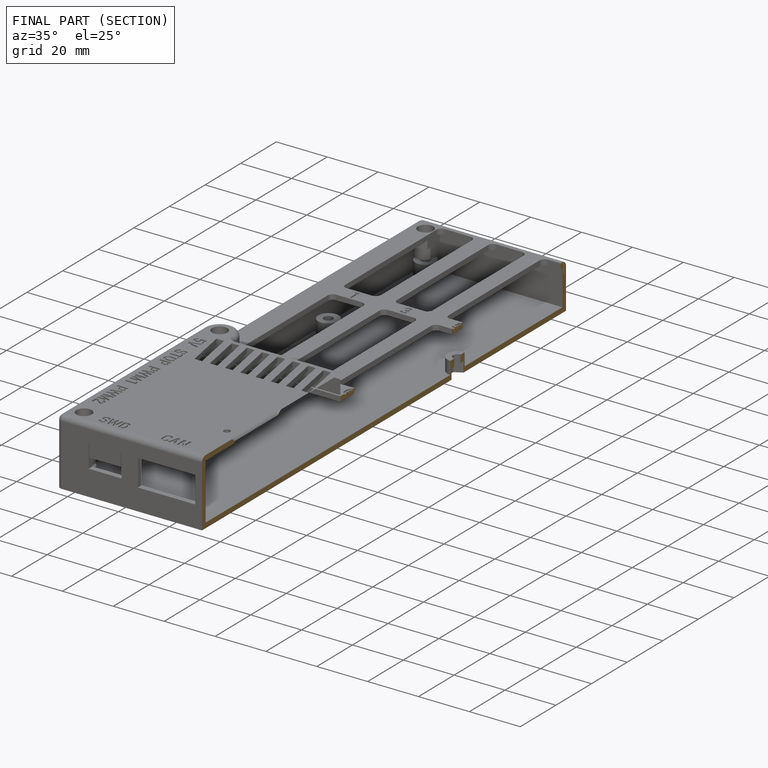
[diagram: finished part — half-section view (interior)]
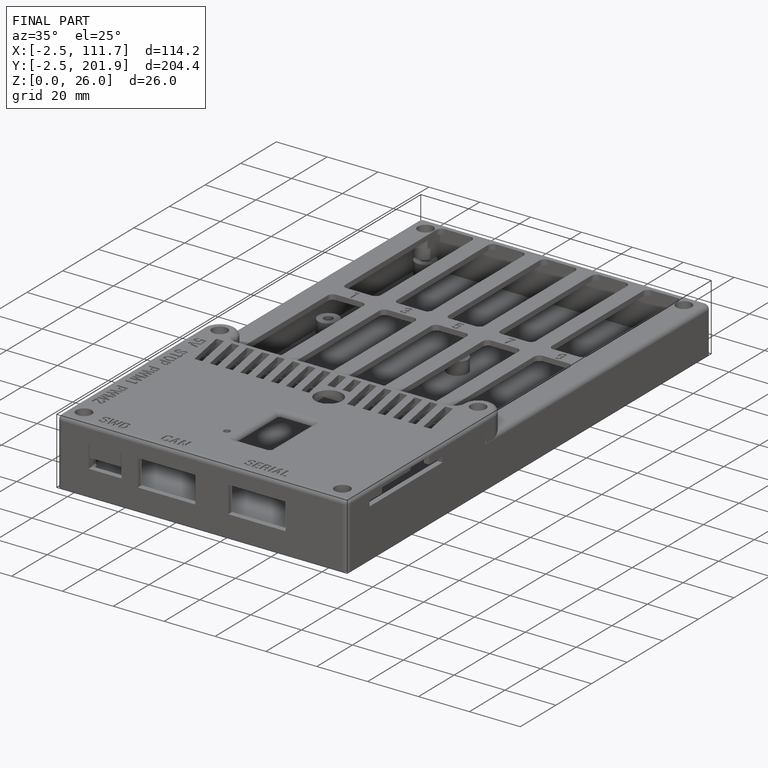
[diagram: finished part — iso view with bounding-box wireframe]
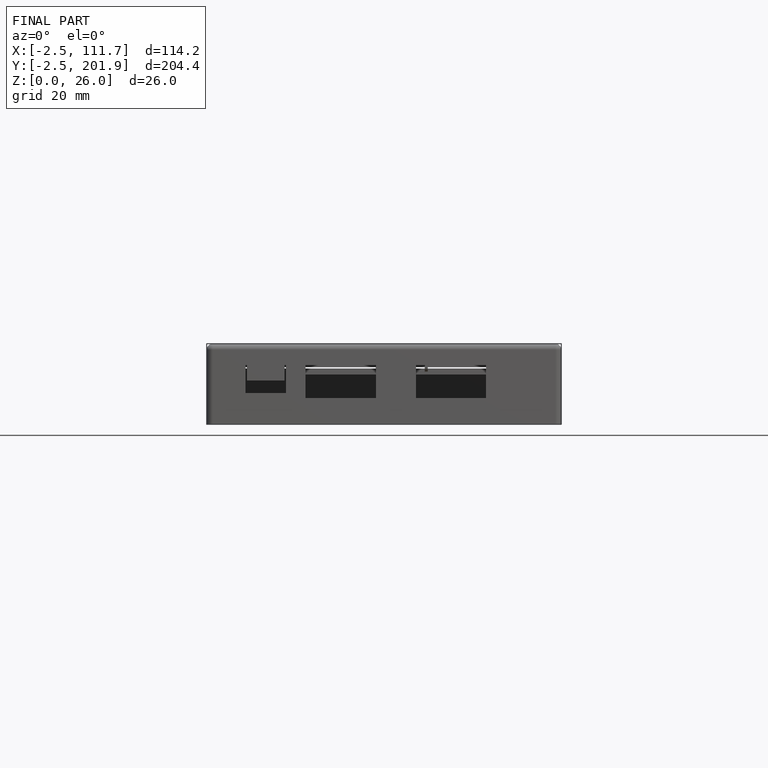
[diagram: finished part — front view with bounding-box wireframe]
